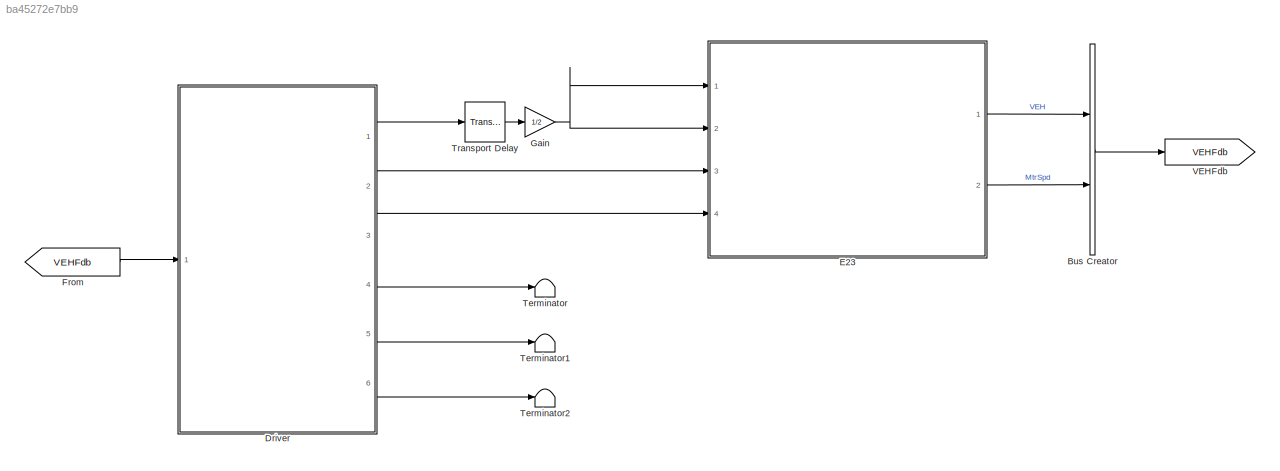
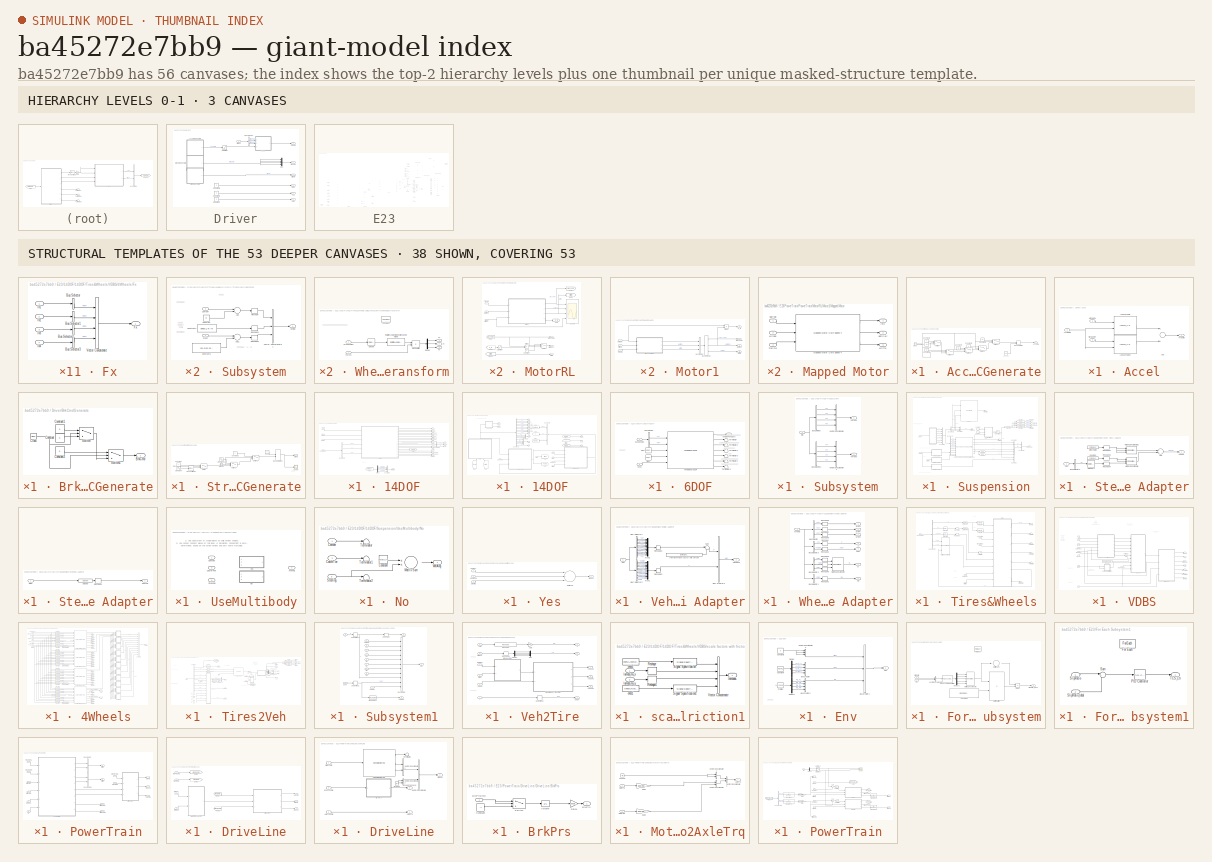
[diagram: thumbnail index - top-2 hierarchy levels (3 canvases) + 38 structural-template representatives of the remaining 53 canvases]
MODEL slx_ba45272e7bb9
KIND model
CONFIG AbsTol = auto
CONFIG EnableMultiTasking = on
CONFIG FixedStep = 0.01
CONFIG MaxStep = auto
CONFIG MinStep = auto
CONFIG PreLoadFcn = PowerTrain_14DOF_ini\n
CONFIG RelTol = 1e-3
CONFIG SampleTimeConstraint = Unconstrained
CONFIG Solver = ode113
CONFIG SolverName = ode113
CONFIG StartTime = 0.0
CONFIG StopFcn = AfterSim
CONFIG StopTime = 10
BLOCK [BusCreator] Bus Creator
  DisplayOption = bar
  InheritFromInputs = on
  Inputs = 2
  Ports = [2, 1]
BLOCK [SubSystem] Driver
  Ports = [1, 6]
  RequestExecContextInheritance = off
BLOCK [Outport] Driver/ABS
  IconDisplay = Port number
  Port = 6
BLOCK [SubSystem] Driver/AccCmdGenerate
  Ports = [0, 1]
  RequestExecContextInheritance = off
BLOCK [Outport] Driver/AccCmdGenerate/AccCmd
  IconDisplay = Port number
BLOCK [Clock] Driver/AccCmdGenerate/Clock
BLOCK [Constant] Driver/AccCmdGenerate/Constant
  Value = 0.2
BLOCK [Constant] Driver/AccCmdGenerate/Constant1
  Value = 0
BLOCK [Constant] Driver/AccCmdGenerate/Constant2
  Value = 0.1
BLOCK [Constant] Driver/AccCmdGenerate/Constant3
  Value = 0.3
BLOCK [Constant] Driver/AccCmdGenerate/Constant4
  Value = 0
BLOCK [Constant] Driver/AccCmdGenerate/Constant5
  Value = 0.1
BLOCK [ManualSwitch] Driver/AccCmdGenerate/Manual Switch
  CurrentSetting = 0
BLOCK [Switch] Driver/AccCmdGenerate/Switch
  Criteria = u2 > Threshold
  InputSameDT = off
  SaturateOnIntegerOverflow = off
  Threshold = 4
BLOCK [Switch] Driver/AccCmdGenerate/Switch1
  Criteria = u2 > Threshold
  InputSameDT = off
  SaturateOnIntegerOverflow = off
  Threshold = 13
BLOCK [Switch] Driver/AccCmdGenerate/Switch2
  Criteria = u2 > Threshold
  InputSameDT = off
  SaturateOnIntegerOverflow = off
  Threshold = 15
BLOCK [Switch] Driver/AccCmdGenerate/Switch3
  Criteria = u2 > Threshold
  InputSameDT = off
  SaturateOnIntegerOverflow = off
  Threshold = 30
BLOCK [Switch] Driver/AccCmdGenerate/Switch4
  Criteria = u2 > Threshold
  InputSameDT = off
  SaturateOnIntegerOverflow = off
  Threshold = 58
BLOCK [Constant] Driver/AccCmdGenerate/直行工况油门
  Value = 0.3
BLOCK [SubSystem] Driver/Accel
  Ports = [3, 1]
  RequestExecContextInheritance = off
BLOCK [Inport] Driver/Accel/AccelCmd
  IconDisplay = Port number
  Port = 3
BLOCK [Sum] Driver/Accel/Add
  InputSameDT = off
  OutDataTypeStr = Inherit: Inherit via internal rule
  Ports = [2, 1]
  SaturateOnIntegerOverflow = off
BLOCK [Lookup_n-D] Driver/Accel/LookupTable
  BreakpointsForDimension1 = AccelCmd2TrqCmd.Motor_n
  BreakpointsForDimension2 = fliplr(AccelCmd2TrqCmd.AccelCmd)
  InternalRulePriority = Speed
  Ports = [2, 1]
  RndMeth = Simplest
  Table = fliplr(AccelCmd2TrqCmd.TrqCmd)
BLOCK [Lookup_n-D] Driver/Accel/LookupTable1
  BreakpointsForDimension1 = AccelCmd2TrqCmd.Motor_n
  BreakpointsForDimension2 = fliplr(AccelCmd2TrqCmd.AccelCmd)
  InternalRulePriority = Speed
  Ports = [2, 1]
  RndMeth = Simplest
  Table = fliplr(AccelCmd2TrqCmd.TrqCmd)
BLOCK [Inport] Driver/Accel/MtrSpdRL
  IconDisplay = Port number
BLOCK [Inport] Driver/Accel/MtrSpdRR
  IconDisplay = Port number
  Port = 2
BLOCK [Outport] Driver/Accel/TrqCmd
  IconDisplay = Port number
BLOCK [Outport] Driver/BrkCmd
  IconDisplay = Port number
  Port = 2
BLOCK [SubSystem] Driver/BrkCmdGenerate
  Ports = [0, 1]
  RequestExecContextInheritance = off
BLOCK [Outport] Driver/BrkCmdGenerate/BrkCmd
  IconDisplay = Port number
BLOCK [Clock] Driver/BrkCmdGenerate/Clock
BLOCK [Constant] Driver/BrkCmdGenerate/Constant
  Value = 0
BLOCK [Constant] Driver/BrkCmdGenerate/Constant1
  Value = 0
BLOCK [Constant] Driver/BrkCmdGenerate/Constant2
  Value = 0
BLOCK [Switch] Driver/BrkCmdGenerate/Switch
  Criteria = u2 > Threshold
  InputSameDT = off
  SaturateOnIntegerOverflow = off
  Threshold = 5
BLOCK [Switch] Driver/BrkCmdGenerate/Switch1
  Criteria = u2 > Threshold
  InputSameDT = off
  SaturateOnIntegerOverflow = off
  Threshold = 5.5
BLOCK [BusSelector] Driver/Bus Selector
  OutputAsBus = off
  OutputSignals = MtrSpd.MtrSpdRL,MtrSpd.MtrSpdRR
  Ports = [1, 2]
BLOCK [Constant] Driver/Constant5
  Value = 0
BLOCK [Constant] Driver/Constant6
  Value = 0
BLOCK [Constant] Driver/Constant7
  Value = 0
BLOCK [Outport] Driver/EDS
  IconDisplay = Port number
  Port = 4
BLOCK [Inport] Driver/MtrSpd
  IconDisplay = Port number
BLOCK [Mux] Driver/Mux
  DisplayOption = bar
  Ports = [4, 1]
BLOCK [Saturate] Driver/Saturation
  InputPortMap = u0
  LowerLimit = 0
  Ports = [1, 1]
  UpperLimit = 1
BLOCK [Outport] Driver/StrCmd
  IconDisplay = Port number
  Port = 3
BLOCK [SubSystem] Driver/StrCmdGenerate
  Ports = [0, 1]
  RequestExecContextInheritance = off
BLOCK [Clock] Driver/StrCmdGenerate/Clock
BLOCK [Clock] Driver/StrCmdGenerate/Clock1
BLOCK [Constant] Driver/StrCmdGenerate/Constant
  Value = 0
BLOCK [Constant] Driver/StrCmdGenerate/Constant1
  Value = 0
BLOCK [ManualSwitch] Driver/StrCmdGenerate/Manual Switch1
BLOCK [Scope] Driver/StrCmdGenerate/Scope
  Floating = off
  NumInputPorts = 1
  Ports = [1]
  ScopeSpecificationString = Simulink.scopes.TimeScopeBlockCfg('CurrentConfiguration', extmgr.ConfigurationSet(extmgr.Configuration('Core','General UI',true),extmgr.Configuration('Core','Source UI',true),extmgr.Configuration('Sources','WiredSimulink',true,'DataLoggingVariableName','ScopeData1'),extmgr.Configuration('Visuals','Time Domain',true,'SerializedDisplays',{struct('MinYLimReal','-0.71014','MaxYLimReal','0.41222','YLab...<+1391ch>
BLOCK [Sin] Driver/StrCmdGenerate/Sine Wave
  Amplitude = -0.6
  Frequency = 3.1415926/6
  Ports = [0, 1]
  SampleTime = 0
BLOCK [Sin] Driver/StrCmdGenerate/Sine Wave1
  Amplitude = 0.3
  Frequency = pi/10
  Ports = [0, 1]
  SampleTime = 0
BLOCK [Outport] Driver/StrCmdGenerate/StrCmd
  IconDisplay = Port number
BLOCK [Switch] Driver/StrCmdGenerate/Switch
  Criteria = u2 > Threshold
  InputSameDT = off
  SaturateOnIntegerOverflow = off
  Threshold = 12
BLOCK [Switch] Driver/StrCmdGenerate/Switch1
  Criteria = u2 > Threshold
  InputSameDT = off
  SaturateOnIntegerOverflow = off
  Threshold = 30
BLOCK [Switch] Driver/StrCmdGenerate/Switch2
  Criteria = u2 > Threshold
  InputSameDT = off
  SaturateOnIntegerOverflow = off
  Threshold = 50
BLOCK [TransportDelay] Driver/StrCmdGenerate/Transport Delay
  DelayTime = 6
  Ports = [1, 1]
BLOCK [Constant] Driver/StrCmdGenerate/直行工况
  Value = 0
BLOCK [Outport] Driver/TCS
  IconDisplay = Port number
  Port = 5
BLOCK [Outport] Driver/TrqCmd
  IconDisplay = Port number
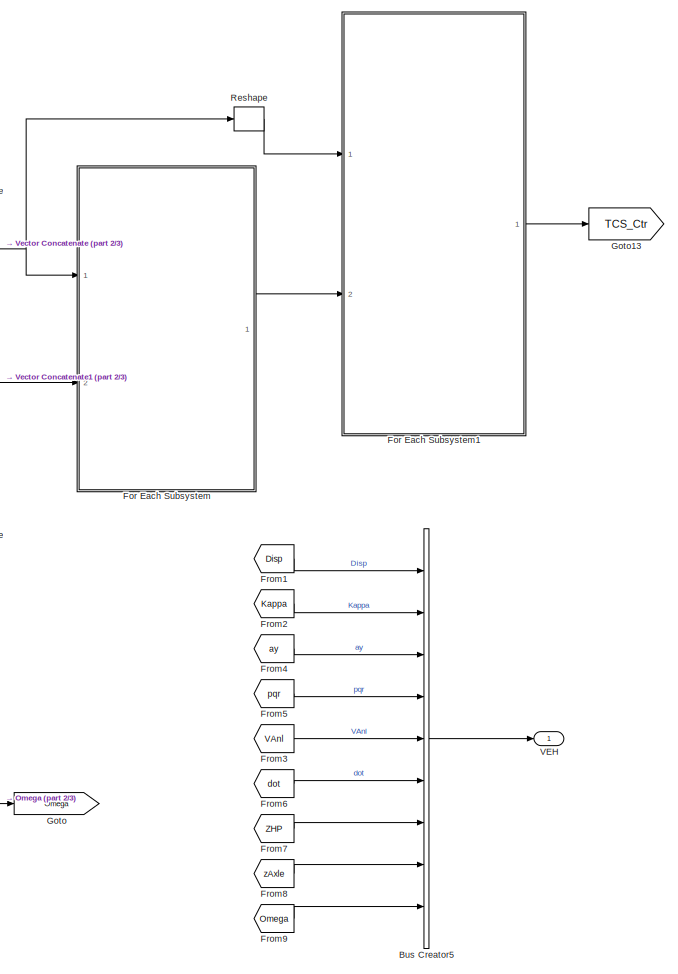
[diagram: E23 - part 1/3, right side, full height]
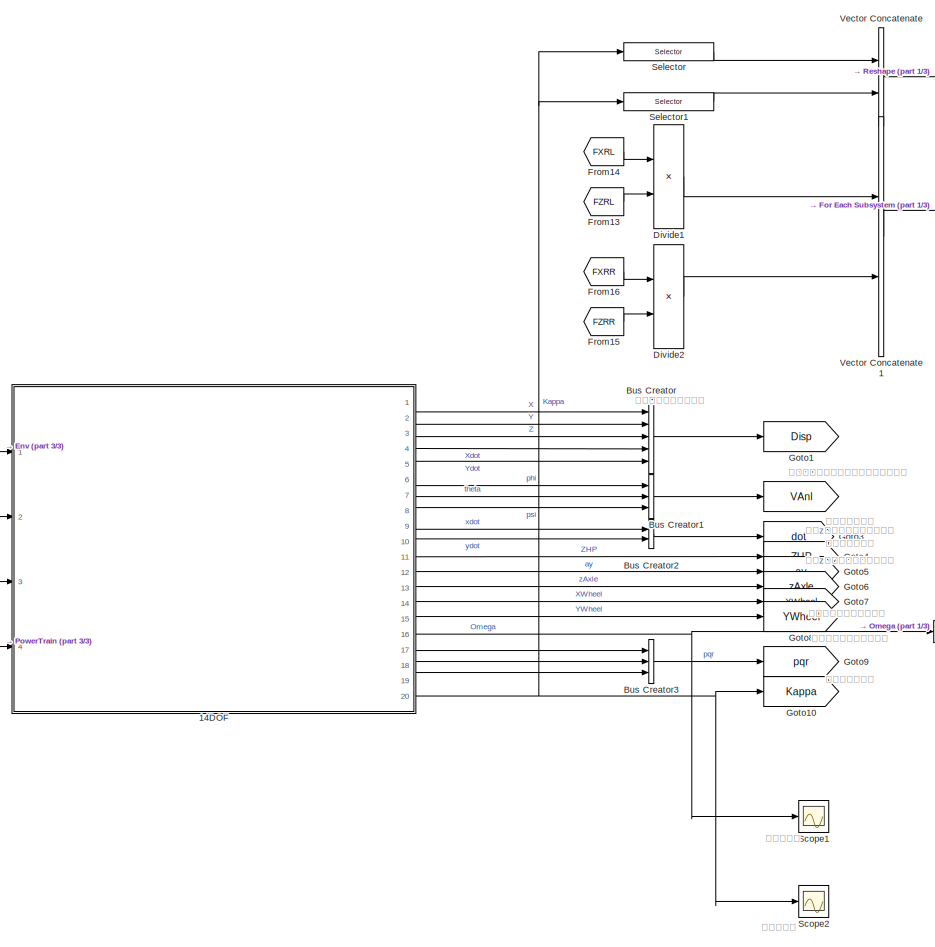
[diagram: E23 - part 2/3, center side, full height]
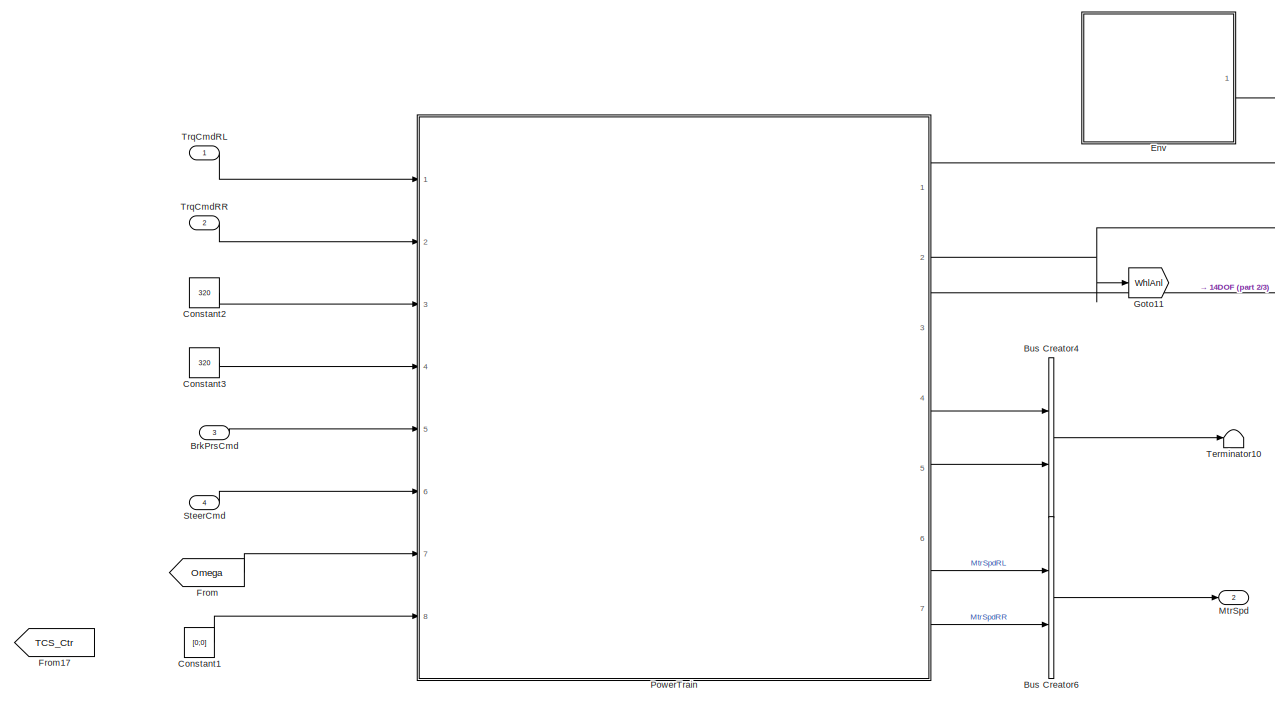
[diagram: E23 - part 3/3, bottom left region]
BLOCK [SubSystem] E23
  Ports = [4, 2]
  RequestExecContextInheritance = off
BLOCK [SubSystem] E23/14DOF
  Ports = [4, 20]
  RequestExecContextInheritance = off
BLOCK [SubSystem] E23/14DOF/14DOF
  Ports = [6, 18]
  RequestExecContextInheritance = off
BLOCK [SubSystem] E23/14DOF/14DOF/6DOF
  Ports = [2, 1]
  RequestExecContextInheritance = off
BLOCK [BusSelector] E23/14DOF/14DOF/6DOF/Bus Selector
  OutputAsBus = off
  OutputSignals = Veh.F,Veh.M
  Ports = [1, 2]
BLOCK [Constant] E23/14DOF/14DOF/6DOF/FExt
  Value = [0;0;0]
BLOCK [Constant] E23/14DOF/14DOF/6DOF/MExt
  Value = [0;0;0]
BLOCK [Inport] E23/14DOF/14DOF/6DOF/Suspension
  IconDisplay = Port number
BLOCK [Terminator] E23/14DOF/14DOF/6DOF/Terminator
BLOCK [Terminator] E23/14DOF/14DOF/6DOF/Terminator1
BLOCK [Terminator] E23/14DOF/14DOF/6DOF/Terminator2
BLOCK [Terminator] E23/14DOF/14DOF/6DOF/Terminator3
BLOCK [Terminator] E23/14DOF/14DOF/6DOF/Terminator4
BLOCK [Terminator] E23/14DOF/14DOF/6DOF/Terminator5
BLOCK [Reference] E23/14DOF/14DOF/6DOF/Vehicle Body 6DOF  REF=vehdynlibeom/Vehicle Body 6DOF
  Ports = [5, 7]
  SourceBlock = vehdynlibeom/Vehicle Body 6DOF
  SourceProductBaseCode = VE
  SourceProductName = Vehicle Dynamics Blockset
  SourceType = Vehicle Body 6DOF 2 Axle
BLOCK [Outport] E23/14DOF/14DOF/6DOF/VehicleFeedBack
  IconDisplay = Port number
BLOCK [Inport] E23/14DOF/14DOF/6DOF/Wind
  IconDisplay = Port number
  Port = 2
BLOCK [Inport] E23/14DOF/14DOF/AxleTrq
  IconDisplay = Port number
BLOCK [Inport] E23/14DOF/14DOF/BrkPrs
  IconDisplay = Port number
  Port = 2
BLOCK [BusCreator] E23/14DOF/14DOF/Bus Creator
  DisplayOption = bar
  InheritFromInputs = on
  Inputs = 4
  Ports = [4, 1]
BLOCK [BusCreator] E23/14DOF/14DOF/Bus Creator1
  DisplayOption = bar
  InheritFromInputs = on
  Inputs = 3
  Ports = [3, 1]
BLOCK [BusSelector] E23/14DOF/14DOF/Bus Selector
  OutputAsBus = off
  OutputSignals = InertFrm.Cg.Disp.X,InertFrm.Cg.Disp.Y,InertFrm.Cg.Disp.Z,InertFrm.Cg.Vel.Xdot,InertFrm.Cg.Vel.Ydot,InertFrm.Cg.Ang.phi,InertFrm.Cg.Ang.theta,InertFrm.Cg.Ang.psi,BdyFrm.Cg.Vel.xdot,BdyFrm.Cg.Vel.ydot,BdyFrm.Cg.AngVel.p,BdyFrm.Cg.AngVel.q,BdyFrm.Cg.AngVel.r,InertFrm.FrntAxl.Lft.Disp.Z,InertFrm.FrntAxl.Rght.Disp.Z,InertFrm.RearAxl.Lft.Disp.Z,InertFrm.RearAxl.Rght.Disp.Z,BdyFrm.Cg.Acc.ay
  Ports = [1, 18]
BLOCK [BusSelector] E23/14DOF/14DOF/Bus Selector1
  OutputAsBus = off
  OutputSignals = TireFrame.omega,TireFrame.z,TireFrame.Kappa
  Ports = [1, 3]
BLOCK [Inport] E23/14DOF/14DOF/Friction
  IconDisplay = Port number
  Port = 6
BLOCK [From] E23/14DOF/14DOF/From
  GotoTag = Wind
BLOCK [From] E23/14DOF/14DOF/From1
  GotoTag = omega
BLOCK [From] E23/14DOF/14DOF/From2
  GotoTag = z
BLOCK [From] E23/14DOF/14DOF/From3
  GotoTag = Kappa
BLOCK [From] E23/14DOF/14DOF/From4
  GotoTag = ToVeh
BLOCK [Goto] E23/14DOF/14DOF/Goto
  GotoTag = Wind
BLOCK [Goto] E23/14DOF/14DOF/Goto1
  GotoTag = omega
BLOCK [Goto] E23/14DOF/14DOF/Goto2
  GotoTag = z
BLOCK [Goto] E23/14DOF/14DOF/Goto3
  GotoTag = Kappa
BLOCK [Goto] E23/14DOF/14DOF/Goto4
  GotoTag = ToVeh
BLOCK [Inport] E23/14DOF/14DOF/GroundXYZ
  IconDisplay = Port number
  Port = 5
BLOCK [SubSystem] E23/14DOF/14DOF/Subsystem
  Ports = [1, 2]
  RequestExecContextInheritance = off
BLOCK [BusSelector] E23/14DOF/14DOF/Subsystem/Bus Selector
  OutputAsBus = off
  OutputSignals = InertFrm.FrntAxl.Lft.Disp.X,InertFrm.FrntAxl.Rght.Disp.X,InertFrm.RearAxl.Lft.Disp.X,InertFrm.RearAxl.Rght.Disp.X
  Ports = [1, 4]
BLOCK [BusSelector] E23/14DOF/14DOF/Subsystem/Bus Selector1
  OutputAsBus = off
  OutputSignals = InertFrm.FrntAxl.Lft.Disp.Y,InertFrm.FrntAxl.Rght.Disp.Y,InertFrm.RearAxl.Lft.Disp.Y,InertFrm.RearAxl.Rght.Disp.Y
  Ports = [1, 4]
BLOCK [Inport] E23/14DOF/14DOF/Subsystem/Info
  IconDisplay = Port number
BLOCK [Concatenate] E23/14DOF/14DOF/Subsystem/Vector Concatenate
  NumInputs = 4
  Ports = [4, 1]
BLOCK [Concatenate] E23/14DOF/14DOF/Subsystem/Vector Concatenate1
  NumInputs = 4
  Ports = [4, 1]
BLOCK [Outport] E23/14DOF/14DOF/Subsystem/XWheel
  IconDisplay = Port number
BLOCK [Outport] E23/14DOF/14DOF/Subsystem/YWheel
  IconDisplay = Port number
  Port = 2
BLOCK [SubSystem] E23/14DOF/14DOF/Suspension
  Ports = [3, 1]
  RequestExecContextInheritance = off
BLOCK [BusCreator] E23/14DOF/14DOF/Suspension/Bus Creator
  DisplayOption = bar
  InheritFromInputs = on
  Inputs = 3
  Ports = [3, 1]
BLOCK [BusCreator] E23/14DOF/14DOF/Suspension/Bus Creator1
  DisplayOption = bar
  InheritFromInputs = on
  Inputs = 5
  Ports = [5, 1]
BLOCK [BusCreator] E23/14DOF/14DOF/Suspension/Bus Creator2
  DisplayOption = bar
  InheritFromInputs = on
  Inputs = 2
  Ports = [2, 1]
BLOCK [BusCreator] E23/14DOF/14DOF/Suspension/Bus Creator3
  DisplayOption = bar
  InheritFromInputs = on
  Inputs = 2
  Ports = [2, 1]
BLOCK [BusCreator] E23/14DOF/14DOF/Suspension/Bus Creator4
  DisplayOption = bar
  InheritFromInputs = on
  Inputs = 7
  Ports = [7, 1]
BLOCK [BusSelector] E23/14DOF/14DOF/Suspension/Bus Selector
  OutputAsBus = off
  OutputSignals = z,Re,zdot,Fx,Fy,M
  Ports = [1, 6]
BLOCK [BusSelector] E23/14DOF/14DOF/Suspension/Bus Selector1
  OutputAsBus = off
  OutputSignals = P,V
  Ports = [1, 2]
BLOCK [BusSelector] E23/14DOF/14DOF/Suspension/Bus Selector2
  OutputAsBus = off
  OutputSignals = Fx,Fy,Fz
  Ports = [1, 3]
BLOCK [Constant] E23/14DOF/14DOF/Suspension/Constant
  Value = [0 0 0 0;0.0349 3.1415926+0.0349 0 0;0 0 0 0]
BLOCK [Constant] E23/14DOF/14DOF/Suspension/Constant1
  Value = [0 0 0 0;0.0349 3.1415926+0.0349 0 0;0 0 0 0]
BLOCK [Concatenate] E23/14DOF/14DOF/Suspension/Forces
  Mode = Multidimensional array
  NumInputs = 3
  Ports = [3, 1]
BLOCK [Reference] E23/14DOF/14DOF/Suspension/IndependentSuspensionDoubleWishbone  REF=vehdynlibsuspension/Independent Suspension - Double Wishbone
  Ports = [9, 6]
  SourceBlock = vehdynlibsuspension/Independent Suspension - Double Wishbone
  SourceProductBaseCode = VE
  SourceProductName = Vehicle Dynamics Blockset
  SourceType = Vehicle suspension
BLOCK [Selector] E23/14DOF/14DOF/Suspension/Selector1
  IndexOptions = Index vector (dialog),Select all
  Indices = 1,1
  NumberOfDimensions = 2
  OutputSizes = 1,1
  Ports = [1, 1]
BLOCK [Selector] E23/14DOF/14DOF/Suspension/Selector2
  IndexOptions = Index vector (dialog),Select all
  Indices = 2,1
  NumberOfDimensions = 2
  OutputSizes = 1,1
  Ports = [1, 1]
BLOCK [Selector] E23/14DOF/14DOF/Suspension/Selector47
  IndexOptions = Index vector (dialog),Select all
  Indices = 1,1
  InputPortWidth = 3
  NumberOfDimensions = 2
  OutputSizes = 1,1
  Ports = [1, 1]
BLOCK [Selector] E23/14DOF/14DOF/Suspension/Selector57
  IndexOptions = Index vector (dialog)
  Indices = 1
  InputPortWidth = 4
  OutputSizes = 1
  Ports = [1, 1]
BLOCK [Selector] E23/14DOF/14DOF/Suspension/Selector58
  IndexOptions = Index vector (dialog)
  Indices = 2
  InputPortWidth = 4
  OutputSizes = 1
  Ports = [1, 1]
BLOCK [Selector] E23/14DOF/14DOF/Suspension/Selector59
  IndexOptions = Index vector (dialog)
  Indices = 3
  InputPortWidth = 4
  OutputSizes = 1
  Ports = [1, 1]
BLOCK [Selector] E23/14DOF/14DOF/Suspension/Selector60
  IndexOptions = Index vector (dialog)
  Indices = 4
  InputPortWidth = 4
  OutputSizes = 1
  Ports = [1, 1]
BLOCK [SubSystem] E23/14DOF/14DOF/Suspension/Steer Rate Adapter
  Ports = [1, 1]
  RequestExecContextInheritance = off
BLOCK [Sum] E23/14DOF/14DOF/Suspension/Steer Rate Adapter/Add
  InputSameDT = off
  OutDataTypeStr = Inherit: Inherit via internal rule
  Ports = [2, 1]
  SaturateOnIntegerOverflow = off
BLOCK [Outport] E23/14DOF/14DOF/Suspension/Steer Rate Adapter/AngVel
  IconDisplay = Port number
BLOCK [BusSelector] E23/14DOF/14DOF/Suspension/Steer Rate Adapter/Bus Selector3
  OutputAsBus = off
  OutputSignals = BdyFrm.Cg.AngVel.r
  Ports = [1, 1]
BLOCK [Constant] E23/14DOF/14DOF/Suspension/Steer Rate Adapter/Constant
  Value = zeros(1,4)
BLOCK [Concatenate] E23/14DOF/14DOF/Suspension/Steer Rate Adapter/Matrix Concatenate
  Mode = Multidimensional array
  NumInputs = 3
  Ports = [3, 1]
BLOCK [Concatenate] E23/14DOF/14DOF/Suspension/Steer Rate Adapter/Matrix Concatenate1
  Mode = Multidimensional array
  NumInputs = 3
  Ports = [3, 1]
BLOCK [Reshape] E23/14DOF/14DOF/Suspension/Steer Rate Adapter/Reshape2
  OutputDimensionality = Row vector (2-D)
  Ports = [1, 1]
BLOCK [Reshape] E23/14DOF/14DOF/Suspension/Steer Rate Adapter/Reshape3
  OutputDimensionality = Row vector (2-D)
  Ports = [1, 1]
BLOCK [Reshape] E23/14DOF/14DOF/Suspension/Steer Rate Adapter/Reshape4
  OutputDimensionality = Row vector (2-D)
  Ports = [1, 1]
BLOCK [Selector] E23/14DOF/14DOF/Suspension/Steer Rate Adapter/Selector3
  IndexOptions = Index vector (dialog)
  Indices = [1 1 1 1]
  InputPortWidth = 1
  OutputSizes = 1
  Ports = [1, 1]
BLOCK [Constant] E23/14DOF/14DOF/Suspension/Steer Rate Adapter/SteerRates
  Value = zeros(1,4)
BLOCK [Inport] E23/14DOF/14DOF/Suspension/Steer Rate Adapter/Veh
  IconDisplay = Port number
BLOCK [Inport] E23/14DOF/14DOF/Suspension/Steering
  IconDisplay = Port number
  Port = 2
BLOCK [SubSystem] E23/14DOF/14DOF/Suspension/Steering Adapter
  Ports = [1, 1]
  RequestExecContextInheritance = off
BLOCK [Reshape] E23/14DOF/14DOF/Suspension/Steering Adapter/Reshape1
  OutputDimensionality = Row vector (2-D)
  Ports = [1, 1]
BLOCK [Selector] E23/14DOF/14DOF/Suspension/Steering Adapter/Selector
  IndexOptions = Index vector (dialog)
  Indices = [1 2]
  OutputSizes = 1
  Ports = [1, 1]
BLOCK [Inport] E23/14DOF/14DOF/Suspension/Steering Adapter/Steer
  IconDisplay = Port number
BLOCK [Outport] E23/14DOF/14DOF/Suspension/Steering Adapter/StrgAng
  IconDisplay = Port number
BLOCK [Outport] E23/14DOF/14DOF/Suspension/Suspension
  IconDisplay = Port number
BLOCK [Terminator] E23/14DOF/14DOF/Suspension/Terminator
BLOCK [Terminator] E23/14DOF/14DOF/Suspension/Terminator1
BLOCK [Terminator] E23/14DOF/14DOF/Suspension/Terminator2
BLOCK [Terminator] E23/14DOF/14DOF/Suspension/Terminator3
BLOCK [Terminator] E23/14DOF/14DOF/Suspension/Terminator4
BLOCK [Terminator] E23/14DOF/14DOF/Suspension/Terminator5
BLOCK [Terminator] E23/14DOF/14DOF/Suspension/Terminator6
BLOCK [TransportDelay] E23/14DOF/14DOF/Suspension/Transport Delay
  DelayTime = 0.1
  Ports = [1, 1]
BLOCK [SubSystem] E23/14DOF/14DOF/Suspension/UseMultibody
  LabelModeActiveChoice = Variant1
  Ports = [3, 1]
  RequestExecContextInheritance = off
  Variant = on
  VariantControlMode = Label
BLOCK [Inport] E23/14DOF/14DOF/Suspension/UseMultibody/Camber
  IconDisplay = Port number
BLOCK [Inport] E23/14DOF/14DOF/Suspension/UseMultibody/CasterToe
  IconDisplay = Port number
  Port = 2
BLOCK [SubSystem] E23/14DOF/14DOF/Suspension/UseMultibody/No
  Ports = [3, 1]
  RequestExecContextInheritance = off
  VariantControl = Variant1
BLOCK [Inport] E23/14DOF/14DOF/Suspension/UseMultibody/No/Camber
  IconDisplay = Port number
BLOCK [Inport] E23/14DOF/14DOF/Suspension/UseMultibody/No/CasterToe
  IconDisplay = Port number
  Port = 2
BLOCK [Constant] E23/14DOF/14DOF/Suspension/UseMultibody/No/Constant
  Value = zeros(3,4)
BLOCK [Sum] E23/14DOF/14DOF/Suspension/UseMultibody/No/Matrix Sum
  InputSameDT = off
  OutDataTypeStr = Inherit: Inherit via internal rule
  Ports = [2, 1]
  SaturateOnIntegerOverflow = off
BLOCK [Inport] E23/14DOF/14DOF/Suspension/UseMultibody/No/Steering
  IconDisplay = Port number
  Port = 3
BLOCK [Terminator] E23/14DOF/14DOF/Suspension/UseMultibody/No/Terminator
BLOCK [Terminator] E23/14DOF/14DOF/Suspension/UseMultibody/No/Terminator1
BLOCK [Terminator] E23/14DOF/14DOF/Suspension/UseMultibody/No/Terminator2
BLOCK [Outport] E23/14DOF/14DOF/Suspension/UseMultibody/No/WhlAng
  IconDisplay = Port number
BLOCK [Inport] E23/14DOF/14DOF/Suspension/UseMultibody/Steering
  IconDisplay = Port number
  Port = 3
BLOCK [Outport] E23/14DOF/14DOF/Suspension/UseMultibody/WhlAng
  IconDisplay = Port number
BLOCK [SubSystem] E23/14DOF/14DOF/Suspension/UseMultibody/Yes
  Ports = [3, 1]
  RequestExecContextInheritance = off
  VariantControl = Variant
BLOCK [Inport] E23/14DOF/14DOF/Suspension/UseMultibody/Yes/Camber
  IconDisplay = Port number
BLOCK [Inport] E23/14DOF/14DOF/Suspension/UseMultibody/Yes/CasterToe
  IconDisplay = Port number
  Port = 2
BLOCK [Sum] E23/14DOF/14DOF/Suspension/UseMultibody/Yes/Matrix Sum
  InputSameDT = off
  Inputs = +++
  OutDataTypeStr = Inherit: Inherit via internal rule
  Ports = [3, 1]
  SaturateOnIntegerOverflow = off
BLOCK [Inport] E23/14DOF/14DOF/Suspension/UseMultibody/Yes/Steering
  IconDisplay = Port number
  Port = 3
BLOCK [Outport] E23/14DOF/14DOF/Suspension/UseMultibody/Yes/WhlAng
  IconDisplay = Port number
BLOCK [Inport] E23/14DOF/14DOF/Suspension/Vehicle
  IconDisplay = Port number
BLOCK [SubSystem] E23/14DOF/14DOF/Suspension/Vehicle Adapter
  Ports = [1, 1]
  RequestExecContextInheritance = off
BLOCK [BusCreator] E23/14DOF/14DOF/Suspension/Vehicle Adapter/Bus Creator3
  DisplayOption = bar
  InheritFromInputs = on
  Inputs = 2
  Ports = [2, 1]
BLOCK [BusSelector] E23/14DOF/14DOF/Suspension/Vehicle Adapter/Bus Selector1
  OutputAsBus = off
  OutputSignals = InertFrm.FrntAxl.Lft.Disp.X,InertFrm.FrntAxl.Lft.Disp.Y,InertFrm.FrntAxl.Lft.Disp.Z,InertFrm.FrntAxl.Rght.Disp.X,InertFrm.FrntAxl.Rght.Disp.Y,InertFrm.FrntAxl.Rght.Disp.Z,InertFrm.RearAxl.Lft.Disp.X,InertFrm.RearAxl.Lft.Disp.Y,InertFrm.RearAxl.Lft.Disp.Z,InertFrm.RearAxl.Rght.Disp.X,InertFrm.RearAxl.Rght.Disp.Y,InertFrm.RearAxl.Rght.Disp.Z
  Ports = [1, 12]
BLOCK [BusSelector] E23/14DOF/14DOF/Suspension/Vehicle Adapter/Bus Selector2
  OutputAsBus = off
  OutputSignals = BdyFrm.FrntAxl.Lft.Vel.xdot,BdyFrm.FrntAxl.Lft.Vel.ydot,BdyFrm.FrntAxl.Lft.Vel.zdot,BdyFrm.FrntAxl.Rght.Vel.xdot,BdyFrm.FrntAxl.Rght.Vel.ydot,BdyFrm.FrntAxl.Rght.Vel.zdot,BdyFrm.RearAxl.Lft.Vel.xdot,BdyFrm.RearAxl.Lft.Vel.ydot,BdyFrm.RearAxl.Lft.Vel.zdot,BdyFrm.RearAxl.Rght.Vel.xdot,BdyFrm.RearAxl.Rght.Vel.ydot,BdyFrm.RearAxl.Rght.Vel.zdot
  Ports = [1, 12]
BLOCK [Constant] E23/14DOF/14DOF/Suspension/Vehicle Adapter/Inertial Frame CG to Axle Offset
  Value = [zeros(2,4);VEH.HeightCG*ones(1,4)]
BLOCK [Mux] E23/14DOF/14DOF/Suspension/Vehicle Adapter/Mux1
  DisplayOption = bar
  Inputs = 12
  Ports = [12, 1]
BLOCK [Mux] E23/14DOF/14DOF/Suspension/Vehicle Adapter/Mux2
  DisplayOption = bar
  Inputs = 12
  Ports = [12, 1]
BLOCK [Reshape] E23/14DOF/14DOF/Suspension/Vehicle Adapter/Reshape1
  OutputDimensionality = Customize
  OutputDimensions = [3,4]
  Ports = [1, 1]
BLOCK [Reshape] E23/14DOF/14DOF/Suspension/Vehicle Adapter/Reshape2
  OutputDimensionality = Customize
  OutputDimensions = [3,4]
  Ports = [1, 1]
BLOCK [Sum] E23/14DOF/14DOF/Suspension/Vehicle Adapter/Sum
  IconShape = round
  InputSameDT = off
  Inputs = |+-
  OutDataTypeStr = Inherit: Inherit via internal rule
  Ports = [2, 1]
  SaturateOnIntegerOverflow = off
BLOCK [Inport] E23/14DOF/14DOF/Suspension/Vehicle Adapter/Veh
  IconDisplay = Port number
BLOCK [Outport] E23/14DOF/14DOF/Suspension/Vehicle Adapter/VehSusp
  IconDisplay = Port number
BLOCK [Inport] E23/14DOF/14DOF/Suspension/Wheel
  IconDisplay = Port number
  Port = 3
BLOCK [SubSystem] E23/14DOF/14DOF/Suspension/Wheel  Adapter
  Ports = [1, 7]
  RequestExecContextInheritance = off
BLOCK [BusSelector] E23/14DOF/14DOF/Suspension/Wheel  Adapter/Bus Selector
  OutputAsBus = off
  OutputSignals = TireFrame.Fx,TireFrame.Fy,TireFrame.Fz
  Ports = [1, 3]
BLOCK [BusSelector] E23/14DOF/14DOF/Suspension/Wheel  Adapter/Bus Selector1
  OutputAsBus = off
  OutputSignals = TireFrame.Re
  Ports = [1, 1]
BLOCK [BusSelector] E23/14DOF/14DOF/Suspension/Wheel  Adapter/Bus Selector2
  OutputAsBus = off
  OutputSignals = TireFrame.Mx,TireFrame.My,TireFrame.Mz
  Ports = [1, 3]
BLOCK [BusSelector] E23/14DOF/14DOF/Suspension/Wheel  Adapter/Bus Selector3
  OutputAsBus = off
  OutputSignals = TireFrame.z,TireFrame.zdot
  Ports = [1, 2]
BLOCK [Outport] E23/14DOF/14DOF/Suspension/Wheel  Adapter/M
  IconDisplay = Port number
  Port = 5
BLOCK [Concatenate] E23/14DOF/14DOF/Suspension/Wheel  Adapter/Matrix Concatenate
  Mode = Multidimensional array
  NumInputs = 3
  Ports = [3, 1]
BLOCK [Outport] E23/14DOF/14DOF/Suspension/Wheel  Adapter/Re
  IconDisplay = Port number
  Port = 6
BLOCK [Reshape] E23/14DOF/14DOF/Suspension/Wheel  Adapter/Reshape
  OutputDimensionality = Row vector (2-D)
  Ports = [1, 1]
BLOCK [Reshape] E23/14DOF/14DOF/Suspension/Wheel  Adapter/Reshape1
  OutputDimensionality = Row vector (2-D)
  Ports = [1, 1]
BLOCK [Reshape] E23/14DOF/14DOF/Suspension/Wheel  Adapter/Reshape2
  OutputDimensionality = Row vector (2-D)
  Ports = [1, 1]
BLOCK [Reshape] E23/14DOF/14DOF/Suspension/Wheel  Adapter/Reshape3
  OutputDimensionality = Row vector (2-D)
  Ports = [1, 1]
BLOCK [Reshape] E23/14DOF/14DOF/Suspension/Wheel  Adapter/Reshape4
  OutputDimensionality = Row vector (2-D)
  Ports = [1, 1]
BLOCK [Reshape] E23/14DOF/14DOF/Suspension/Wheel  Adapter/Reshape5
  OutputDimensionality = Row vector (2-D)
  Ports = [1, 1]
BLOCK [Reshape] E23/14DOF/14DOF/Suspension/Wheel  Adapter/Reshape6
  OutputDimensionality = Row vector (2-D)
  Ports = [1, 1]
BLOCK [Reshape] E23/14DOF/14DOF/Suspension/Wheel  Adapter/Reshape7
  OutputDimensionality = Row vector (2-D)
  Ports = [1, 1]
BLOCK [Reshape] E23/14DOF/14DOF/Suspension/Wheel  Adapter/Reshape8
  OutputDimensionality = Row vector (2-D)
  Ports = [1, 1]
BLOCK [Inport] E23/14DOF/14DOF/Suspension/Wheel  Adapter/Wheels
  IconDisplay = Port number
BLOCK [Outport] E23/14DOF/14DOF/Suspension/Wheel  Adapter/WhlFx
  IconDisplay = Port number
BLOCK [Outport] E23/14DOF/14DOF/Suspension/Wheel  Adapter/WhlFy
  IconDisplay = Port number
  Port = 2
BLOCK [Outport] E23/14DOF/14DOF/Suspension/Wheel  Adapter/WhlFz
  IconDisplay = Port number
  Port = 7
BLOCK [Outport] E23/14DOF/14DOF/Suspension/Wheel  Adapter/z
  IconDisplay = Port number
  Port = 3
BLOCK [Outport] E23/14DOF/14DOF/Suspension/Wheel  Adapter/zdot
  IconDisplay = Port number
  Port = 4
BLOCK [SubSystem] E23/14DOF/14DOF/Tires&Wheels
  Ports = [5, 1]
  RequestExecContextInheritance = off
BLOCK [Inport] E23/14DOF/14DOF/Tires&Wheels/AxleTorque
  IconDisplay = Port number
  Port = 2
BLOCK [Inport] E23/14DOF/14DOF/Tires&Wheels/BrakerPress
  IconDisplay = Port number
  Port = 3
BLOCK [BusSelector] E23/14DOF/14DOF/Tires&Wheels/Bus Selector
  OutputAsBus = off
  OutputSignals = Whl.Ang,Whl.F,Whl.AngVel,Whl.xdot,Whl.ydot
  Ports = [1, 5]
BLOCK [Reference] E23/14DOF/14DOF/Tires&Wheels/Cont LPF1  REF=autolibutils/Cont LPF
  Ports = [1, 1]
  SourceBlock = autolibutils/Cont LPF
  SourceProductBaseCode = PW
  SourceProductName = Powertrain Blockset
BLOCK [Reference] E23/14DOF/14DOF/Tires&Wheels/Cont LPF2  REF=autolibutils/Cont LPF
  Ports = [1, 1]
  SourceBlock = autolibutils/Cont LPF
  SourceProductBaseCode = PW
  SourceProductName = Powertrain Blockset
BLOCK [Inport] E23/14DOF/14DOF/Tires&Wheels/Friction
  IconDisplay = Port number
  Port = 5
BLOCK [Inport] E23/14DOF/14DOF/Tires&Wheels/GndInput
  IconDisplay = Port number
  Port = 4
BLOCK [Concatenate] E23/14DOF/14DOF/Tires&Wheels/Matrix Concatenate
  Mode = Multidimensional array
  NumInputs = 3
  Ports = [3, 1]
BLOCK [Reshape] E23/14DOF/14DOF/Tires&Wheels/Reshape
  Ports = [1, 1]
BLOCK [Reshape] E23/14DOF/14DOF/Tires&Wheels/Reshape1
  Ports = [1, 1]
BLOCK [Saturate] E23/14DOF/14DOF/Tires&Wheels/Saturation
  InputPortMap = u0
  LowerLimit = -10*9.81*2000
  Ports = [1, 1]
  UpperLimit = Inf
BLOCK [Selector] E23/14DOF/14DOF/Tires&Wheels/Selector
  IndexOptions = Index vector (dialog),Select all
  Indices = 3,1
  InputPortWidth = 3
  NumberOfDimensions = 2
  OutputSizes = 1,1
  Ports = [1, 1]
BLOCK [Selector] E23/14DOF/14DOF/Tires&Wheels/Selector1
  IndexOptions = Index vector (dialog),Select all
  Indices = 1,1
  InputPortWidth = 3
  NumberOfDimensions = 2
  OutputSizes = 1,1
  Ports = [1, 1]
BLOCK [Selector] E23/14DOF/14DOF/Tires&Wheels/Selector2
  IndexOptions = Index vector (dialog),Select all
  Indices = [3],1
  InputPortWidth = 3
  NumberOfDimensions = 2
  OutputSizes = 1,1
  Ports = [1, 1]
BLOCK [Selector] E23/14DOF/14DOF/Tires&Wheels/Selector3
  IndexOptions = Index vector (dialog),Select all
  Indices = [3],1
  InputPortWidth = 3
  NumberOfDimensions = 2
  OutputSizes = 1,1
  Ports = [1, 1]
BLOCK [Inport] E23/14DOF/14DOF/Tires&Wheels/Suspension
  IconDisplay = Port number
BLOCK [Terminator] E23/14DOF/14DOF/Tires&Wheels/Terminator
BLOCK [Terminator] E23/14DOF/14DOF/Tires&Wheels/Terminator1
BLOCK [Terminator] E23/14DOF/14DOF/Tires&Wheels/Terminator2
BLOCK [Terminator] E23/14DOF/14DOF/Tires&Wheels/Terminator3
BLOCK [Terminator] E23/14DOF/14DOF/Tires&Wheels/Terminator4
BLOCK [SubSystem] E23/14DOF/14DOF/Tires&Wheels/VDBS
  Ports = [9, 7]
  RequestExecContextInheritance = off
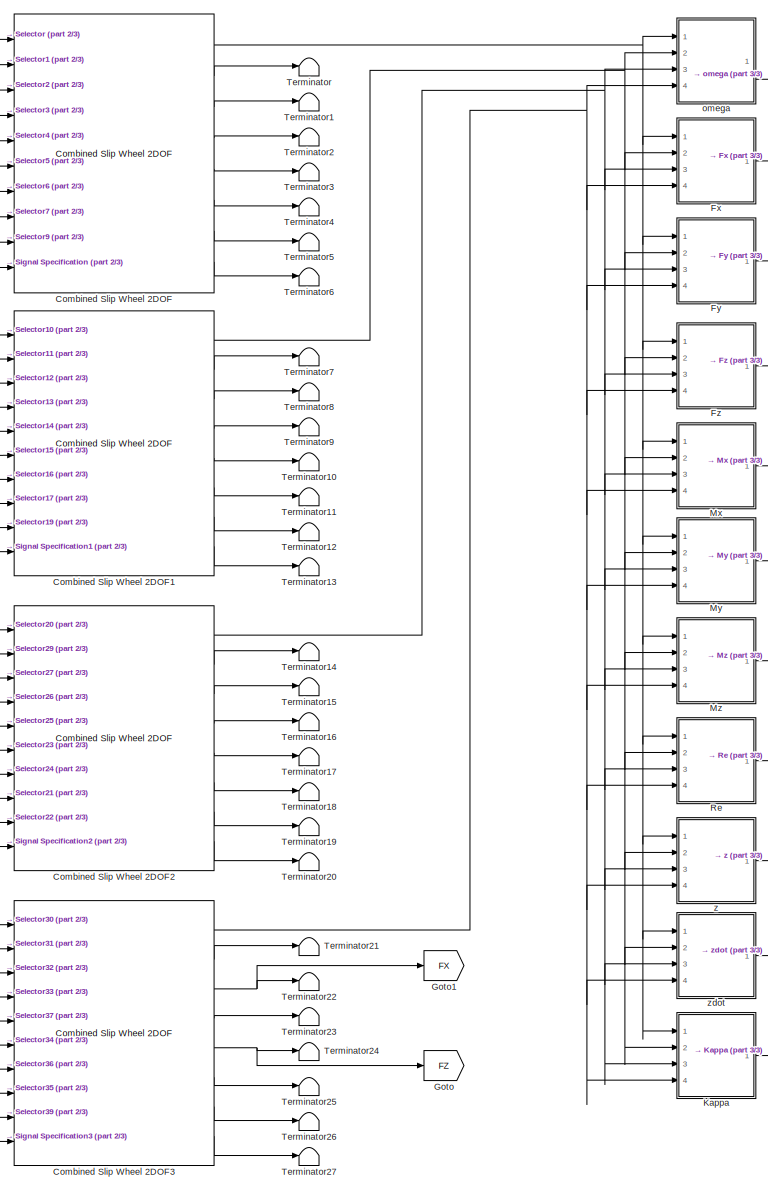
[diagram: E23/14DOF/14DOF/Tires&Wheels/VDBS/4Wheels - part 1/3, center side, full height]
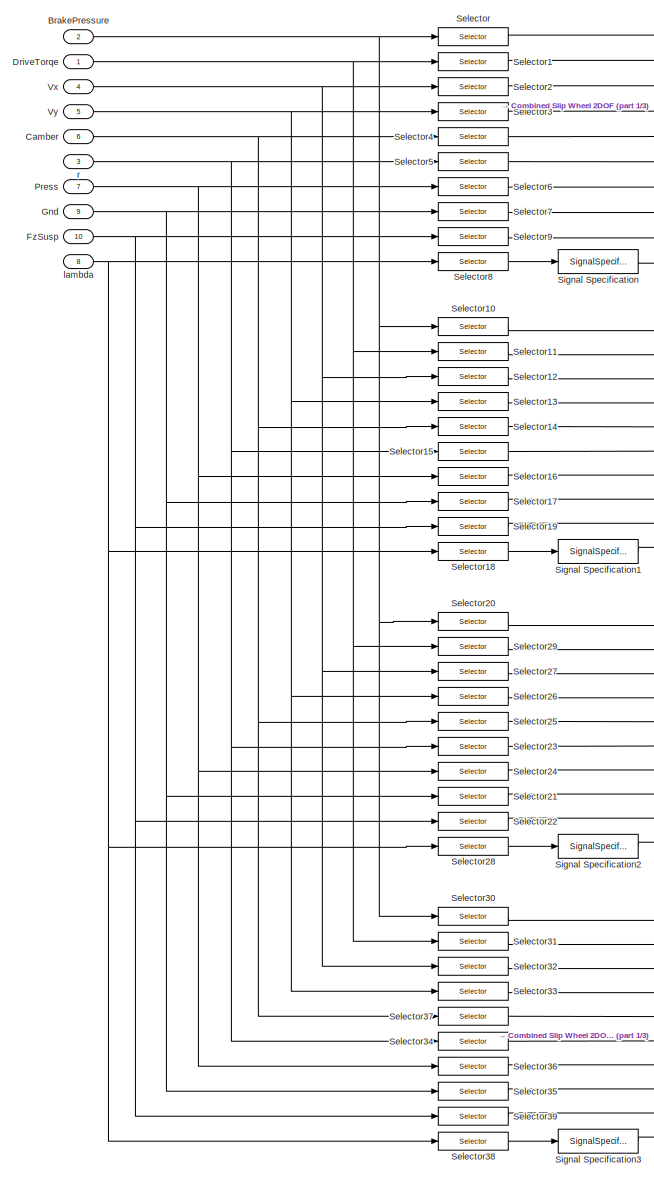
[diagram: E23/14DOF/14DOF/Tires&Wheels/VDBS/4Wheels - part 2/3, left side, full height]
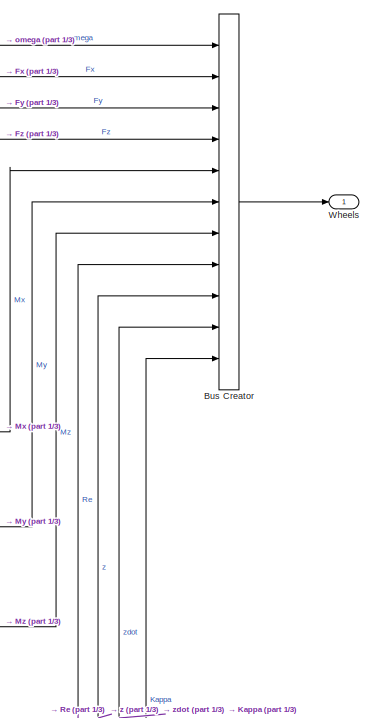
[diagram: E23/14DOF/14DOF/Tires&Wheels/VDBS/4Wheels - part 3/3, middle right region]
BLOCK [SubSystem] E23/14DOF/14DOF/Tires&Wheels/VDBS/4Wheels
  Ports = [10, 1]
  RequestExecContextInheritance = off
BLOCK [Inport] E23/14DOF/14DOF/Tires&Wheels/VDBS/4Wheels/BrakePressure
  IconDisplay = Port number
  Port = 2
BLOCK [BusCreator] E23/14DOF/14DOF/Tires&Wheels/VDBS/4Wheels/Bus Creator
  DisplayOption = bar
  InheritFromInputs = on
  Inputs = 11
  Ports = [11, 1]
BLOCK [Inport] E23/14DOF/14DOF/Tires&Wheels/VDBS/4Wheels/Camber
  IconDisplay = Port number
  Port = 6
BLOCK [Reference] E23/14DOF/14DOF/Tires&Wheels/VDBS/4Wheels/Combined Slip Wheel 2DOF  REF=vehdynlibtire/Combined Slip Wheel 2DOF
  Ports = [10, 8]
  SourceBlock = vehdynlibtire/Combined Slip Wheel 2DOF
  SourceProductBaseCode = VE
  SourceProductName = Vehicle Dynamics Blockset
  SourceType = Combined Slip Wheel 2DOF
BLOCK [Reference] E23/14DOF/14DOF/Tires&Wheels/VDBS/4Wheels/Combined Slip Wheel 2DOF1  REF=vehdynlibtire/Combined Slip Wheel 2DOF
  Ports = [10, 8]
  SourceBlock = vehdynlibtire/Combined Slip Wheel 2DOF
  SourceProductBaseCode = VE
  SourceProductName = Vehicle Dynamics Blockset
  SourceType = Combined Slip Wheel 2DOF
BLOCK [Reference] E23/14DOF/14DOF/Tires&Wheels/VDBS/4Wheels/Combined Slip Wheel 2DOF2  REF=vehdynlibtire/Combined Slip Wheel 2DOF
  Ports = [10, 8]
  SourceBlock = vehdynlibtire/Combined Slip Wheel 2DOF
  SourceProductBaseCode = VE
  SourceProductName = Vehicle Dynamics Blockset
  SourceType = Combined Slip Wheel 2DOF
BLOCK [Reference] E23/14DOF/14DOF/Tires&Wheels/VDBS/4Wheels/Combined Slip Wheel 2DOF3  REF=vehdynlibtire/Combined Slip Wheel 2DOF
  Ports = [10, 8]
  SourceBlock = vehdynlibtire/Combined Slip Wheel 2DOF
  SourceProductBaseCode = VE
  SourceProductName = Vehicle Dynamics Blockset
  SourceType = Combined Slip Wheel 2DOF
BLOCK [Inport] E23/14DOF/14DOF/Tires&Wheels/VDBS/4Wheels/DriveTorqe
  IconDisplay = Port number
BLOCK [SubSystem] E23/14DOF/14DOF/Tires&Wheels/VDBS/4Wheels/Fx
  Ports = [4, 1]
  RequestExecContextInheritance = off
BLOCK [BusSelector] E23/14DOF/14DOF/Tires&Wheels/VDBS/4Wheels/Fx/Bus Selector
  OutputAsBus = off
  OutputSignals = Fx
  Ports = [1, 1]
BLOCK [BusSelector] E23/14DOF/14DOF/Tires&Wheels/VDBS/4Wheels/Fx/Bus Selector1
  OutputAsBus = off
  OutputSignals = Fx
  Ports = [1, 1]
BLOCK [BusSelector] E23/14DOF/14DOF/Tires&Wheels/VDBS/4Wheels/Fx/Bus Selector2
  OutputAsBus = off
  OutputSignals = Fx
  Ports = [1, 1]
BLOCK [BusSelector] E23/14DOF/14DOF/Tires&Wheels/VDBS/4Wheels/Fx/Bus Selector3
  OutputAsBus = off
  OutputSignals = Fx
  Ports = [1, 1]
BLOCK [Outport] E23/14DOF/14DOF/Tires&Wheels/VDBS/4Wheels/Fx/Fx
  IconDisplay = Port number
BLOCK [Inport] E23/14DOF/14DOF/Tires&Wheels/VDBS/4Wheels/Fx/In1
  IconDisplay = Port number
BLOCK [Inport] E23/14DOF/14DOF/Tires&Wheels/VDBS/4Wheels/Fx/In2
  IconDisplay = Port number
  Port = 2
BLOCK [Inport] E23/14DOF/14DOF/Tires&Wheels/VDBS/4Wheels/Fx/In3
  IconDisplay = Port number
  Port = 3
BLOCK [Inport] E23/14DOF/14DOF/Tires&Wheels/VDBS/4Wheels/Fx/In4
  IconDisplay = Port number
  Port = 4
BLOCK [Concatenate] E23/14DOF/14DOF/Tires&Wheels/VDBS/4Wheels/Fx/Vector Concatenate
  NumInputs = 4
  Ports = [4, 1]
BLOCK [SubSystem] E23/14DOF/14DOF/Tires&Wheels/VDBS/4Wheels/Fy
  Ports = [4, 1]
  RequestExecContextInheritance = off
BLOCK [BusSelector] E23/14DOF/14DOF/Tires&Wheels/VDBS/4Wheels/Fy/Bus Selector
  OutputAsBus = off
  OutputSignals = Fy
  Ports = [1, 1]
BLOCK [BusSelector] E23/14DOF/14DOF/Tires&Wheels/VDBS/4Wheels/Fy/Bus Selector1
  OutputAsBus = off
  OutputSignals = Fy
  Ports = [1, 1]
BLOCK [BusSelector] E23/14DOF/14DOF/Tires&Wheels/VDBS/4Wheels/Fy/Bus Selector2
  OutputAsBus = off
  OutputSignals = Fy
  Ports = [1, 1]
BLOCK [BusSelector] E23/14DOF/14DOF/Tires&Wheels/VDBS/4Wheels/Fy/Bus Selector3
  OutputAsBus = off
  OutputSignals = Fy
  Ports = [1, 1]
BLOCK [Outport] E23/14DOF/14DOF/Tires&Wheels/VDBS/4Wheels/Fy/Fy
  IconDisplay = Port number
BLOCK [Inport] E23/14DOF/14DOF/Tires&Wheels/VDBS/4Wheels/Fy/In1
  IconDisplay = Port number
BLOCK [Inport] E23/14DOF/14DOF/Tires&Wheels/VDBS/4Wheels/Fy/In2
  IconDisplay = Port number
  Port = 2
BLOCK [Inport] E23/14DOF/14DOF/Tires&Wheels/VDBS/4Wheels/Fy/In3
  IconDisplay = Port number
  Port = 3
BLOCK [Inport] E23/14DOF/14DOF/Tires&Wheels/VDBS/4Wheels/Fy/In4
  IconDisplay = Port number
  Port = 4
BLOCK [Concatenate] E23/14DOF/14DOF/Tires&Wheels/VDBS/4Wheels/Fy/Vector Concatenate
  NumInputs = 4
  Ports = [4, 1]
BLOCK [SubSystem] E23/14DOF/14DOF/Tires&Wheels/VDBS/4Wheels/Fz
  Ports = [4, 1]
  RequestExecContextInheritance = off
BLOCK [BusSelector] E23/14DOF/14DOF/Tires&Wheels/VDBS/4Wheels/Fz/Bus Selector
  OutputAsBus = off
  OutputSignals = Fz
  Ports = [1, 1]
BLOCK [BusSelector] E23/14DOF/14DOF/Tires&Wheels/VDBS/4Wheels/Fz/Bus Selector1
  OutputAsBus = off
  OutputSignals = Fz
  Ports = [1, 1]
BLOCK [BusSelector] E23/14DOF/14DOF/Tires&Wheels/VDBS/4Wheels/Fz/Bus Selector2
  OutputAsBus = off
  OutputSignals = Fz
  Ports = [1, 1]
BLOCK [BusSelector] E23/14DOF/14DOF/Tires&Wheels/VDBS/4Wheels/Fz/Bus Selector3
  OutputAsBus = off
  OutputSignals = Fz
  Ports = [1, 1]
BLOCK [Outport] E23/14DOF/14DOF/Tires&Wheels/VDBS/4Wheels/Fz/Fz
  IconDisplay = Port number
BLOCK [Inport] E23/14DOF/14DOF/Tires&Wheels/VDBS/4Wheels/Fz/In1
  IconDisplay = Port number
BLOCK [Inport] E23/14DOF/14DOF/Tires&Wheels/VDBS/4Wheels/Fz/In2
  IconDisplay = Port number
  Port = 2
BLOCK [Inport] E23/14DOF/14DOF/Tires&Wheels/VDBS/4Wheels/Fz/In3
  IconDisplay = Port number
  Port = 3
BLOCK [Inport] E23/14DOF/14DOF/Tires&Wheels/VDBS/4Wheels/Fz/In4
  IconDisplay = Port number
  Port = 4
BLOCK [Concatenate] E23/14DOF/14DOF/Tires&Wheels/VDBS/4Wheels/Fz/Vector Concatenate
  NumInputs = 4
  Ports = [4, 1]
BLOCK [Inport] E23/14DOF/14DOF/Tires&Wheels/VDBS/4Wheels/FzSusp
  IconDisplay = Port number
  Port = 10
BLOCK [Inport] E23/14DOF/14DOF/Tires&Wheels/VDBS/4Wheels/Gnd
  IconDisplay = Port number
  Port = 9
BLOCK [Goto] E23/14DOF/14DOF/Tires&Wheels/VDBS/4Wheels/Goto
  GotoTag = FZ
  TagVisibility = global
BLOCK [Goto] E23/14DOF/14DOF/Tires&Wheels/VDBS/4Wheels/Goto1
  GotoTag = FX
  TagVisibility = global
BLOCK [SubSystem] E23/14DOF/14DOF/Tires&Wheels/VDBS/4Wheels/Kappa
  Ports = [4, 1]
  RequestExecContextInheritance = off
BLOCK [BusSelector] E23/14DOF/14DOF/Tires&Wheels/VDBS/4Wheels/Kappa/Bus Selector
  OutputAsBus = off
  OutputSignals = Kappa
  Ports = [1, 1]
BLOCK [BusSelector] E23/14DOF/14DOF/Tires&Wheels/VDBS/4Wheels/Kappa/Bus Selector1
  OutputAsBus = off
  OutputSignals = Kappa
  Ports = [1, 1]
BLOCK [BusSelector] E23/14DOF/14DOF/Tires&Wheels/VDBS/4Wheels/Kappa/Bus Selector2
  OutputAsBus = off
  OutputSignals = Kappa
  Ports = [1, 1]
BLOCK [BusSelector] E23/14DOF/14DOF/Tires&Wheels/VDBS/4Wheels/Kappa/Bus Selector3
  OutputAsBus = off
  OutputSignals = Kappa
  Ports = [1, 1]
BLOCK [Inport] E23/14DOF/14DOF/Tires&Wheels/VDBS/4Wheels/Kappa/In1
  IconDisplay = Port number
BLOCK [Inport] E23/14DOF/14DOF/Tires&Wheels/VDBS/4Wheels/Kappa/In2
  IconDisplay = Port number
  Port = 2
BLOCK [Inport] E23/14DOF/14DOF/Tires&Wheels/VDBS/4Wheels/Kappa/In3
  IconDisplay = Port number
  Port = 3
BLOCK [Inport] E23/14DOF/14DOF/Tires&Wheels/VDBS/4Wheels/Kappa/In4
  IconDisplay = Port number
  Port = 4
BLOCK [Outport] E23/14DOF/14DOF/Tires&Wheels/VDBS/4Wheels/Kappa/Kappa
  IconDisplay = Port number
BLOCK [Concatenate] E23/14DOF/14DOF/Tires&Wheels/VDBS/4Wheels/Kappa/Vector Concatenate
  NumInputs = 4
  Ports = [4, 1]
BLOCK [SubSystem] E23/14DOF/14DOF/Tires&Wheels/VDBS/4Wheels/Mx
  Ports = [4, 1]
  RequestExecContextInheritance = off
BLOCK [BusSelector] E23/14DOF/14DOF/Tires&Wheels/VDBS/4Wheels/Mx/Bus Selector
  OutputAsBus = off
  OutputSignals = Mx
  Ports = [1, 1]
BLOCK [BusSelector] E23/14DOF/14DOF/Tires&Wheels/VDBS/4Wheels/Mx/Bus Selector1
  OutputAsBus = off
  OutputSignals = Mx
  Ports = [1, 1]
BLOCK [BusSelector] E23/14DOF/14DOF/Tires&Wheels/VDBS/4Wheels/Mx/Bus Selector2
  OutputAsBus = off
  OutputSignals = Mx
  Ports = [1, 1]
BLOCK [BusSelector] E23/14DOF/14DOF/Tires&Wheels/VDBS/4Wheels/Mx/Bus Selector3
  OutputAsBus = off
  OutputSignals = Mx
  Ports = [1, 1]
BLOCK [Inport] E23/14DOF/14DOF/Tires&Wheels/VDBS/4Wheels/Mx/In1
  IconDisplay = Port number
BLOCK [Inport] E23/14DOF/14DOF/Tires&Wheels/VDBS/4Wheels/Mx/In2
  IconDisplay = Port number
  Port = 2
BLOCK [Inport] E23/14DOF/14DOF/Tires&Wheels/VDBS/4Wheels/Mx/In3
  IconDisplay = Port number
  Port = 3
BLOCK [Inport] E23/14DOF/14DOF/Tires&Wheels/VDBS/4Wheels/Mx/In4
  IconDisplay = Port number
  Port = 4
BLOCK [Outport] E23/14DOF/14DOF/Tires&Wheels/VDBS/4Wheels/Mx/Mx
  IconDisplay = Port number
BLOCK [Concatenate] E23/14DOF/14DOF/Tires&Wheels/VDBS/4Wheels/Mx/Vector Concatenate
  NumInputs = 4
  Ports = [4, 1]
BLOCK [SubSystem] E23/14DOF/14DOF/Tires&Wheels/VDBS/4Wheels/My
  Ports = [4, 1]
  RequestExecContextInheritance = off
BLOCK [BusSelector] E23/14DOF/14DOF/Tires&Wheels/VDBS/4Wheels/My/Bus Selector
  OutputAsBus = off
  OutputSignals = My
  Ports = [1, 1]
BLOCK [BusSelector] E23/14DOF/14DOF/Tires&Wheels/VDBS/4Wheels/My/Bus Selector1
  OutputAsBus = off
  OutputSignals = My
  Ports = [1, 1]
BLOCK [BusSelector] E23/14DOF/14DOF/Tires&Wheels/VDBS/4Wheels/My/Bus Selector2
  OutputAsBus = off
  OutputSignals = My
  Ports = [1, 1]
BLOCK [BusSelector] E23/14DOF/14DOF/Tires&Wheels/VDBS/4Wheels/My/Bus Selector3
  OutputAsBus = off
  OutputSignals = My
  Ports = [1, 1]
BLOCK [Inport] E23/14DOF/14DOF/Tires&Wheels/VDBS/4Wheels/My/In1
  IconDisplay = Port number
BLOCK [Inport] E23/14DOF/14DOF/Tires&Wheels/VDBS/4Wheels/My/In2
  IconDisplay = Port number
  Port = 2
BLOCK [Inport] E23/14DOF/14DOF/Tires&Wheels/VDBS/4Wheels/My/In3
  IconDisplay = Port number
  Port = 3
BLOCK [Inport] E23/14DOF/14DOF/Tires&Wheels/VDBS/4Wheels/My/In4
  IconDisplay = Port number
  Port = 4
BLOCK [Outport] E23/14DOF/14DOF/Tires&Wheels/VDBS/4Wheels/My/My
  IconDisplay = Port number
BLOCK [Concatenate] E23/14DOF/14DOF/Tires&Wheels/VDBS/4Wheels/My/Vector Concatenate
  NumInputs = 4
  Ports = [4, 1]
BLOCK [SubSystem] E23/14DOF/14DOF/Tires&Wheels/VDBS/4Wheels/Mz
  Ports = [4, 1]
  RequestExecContextInheritance = off
BLOCK [BusSelector] E23/14DOF/14DOF/Tires&Wheels/VDBS/4Wheels/Mz/Bus Selector
  OutputAsBus = off
  OutputSignals = Mz
  Ports = [1, 1]
BLOCK [BusSelector] E23/14DOF/14DOF/Tires&Wheels/VDBS/4Wheels/Mz/Bus Selector1
  OutputAsBus = off
  OutputSignals = Mz
  Ports = [1, 1]
BLOCK [BusSelector] E23/14DOF/14DOF/Tires&Wheels/VDBS/4Wheels/Mz/Bus Selector2
  OutputAsBus = off
  OutputSignals = Mz
  Ports = [1, 1]
BLOCK [BusSelector] E23/14DOF/14DOF/Tires&Wheels/VDBS/4Wheels/Mz/Bus Selector3
  OutputAsBus = off
  OutputSignals = Mz
  Ports = [1, 1]
BLOCK [Inport] E23/14DOF/14DOF/Tires&Wheels/VDBS/4Wheels/Mz/In1
  IconDisplay = Port number
BLOCK [Inport] E23/14DOF/14DOF/Tires&Wheels/VDBS/4Wheels/Mz/In2
  IconDisplay = Port number
  Port = 2
BLOCK [Inport] E23/14DOF/14DOF/Tires&Wheels/VDBS/4Wheels/Mz/In3
  IconDisplay = Port number
  Port = 3
BLOCK [Inport] E23/14DOF/14DOF/Tires&Wheels/VDBS/4Wheels/Mz/In4
  IconDisplay = Port number
  Port = 4
BLOCK [Outport] E23/14DOF/14DOF/Tires&Wheels/VDBS/4Wheels/Mz/Mz
  IconDisplay = Port number
BLOCK [Concatenate] E23/14DOF/14DOF/Tires&Wheels/VDBS/4Wheels/Mz/Vector Concatenate
  NumInputs = 4
  Ports = [4, 1]
BLOCK [Inport] E23/14DOF/14DOF/Tires&Wheels/VDBS/4Wheels/Press
  IconDisplay = Port number
  Port = 7
BLOCK [SubSystem] E23/14DOF/14DOF/Tires&Wheels/VDBS/4Wheels/Re
  Ports = [4, 1]
  RequestExecContextInheritance = off
BLOCK [BusSelector] E23/14DOF/14DOF/Tires&Wheels/VDBS/4Wheels/Re/Bus Selector
  OutputAsBus = off
  OutputSignals = Re
  Ports = [1, 1]
BLOCK [BusSelector] E23/14DOF/14DOF/Tires&Wheels/VDBS/4Wheels/Re/Bus Selector1
  OutputAsBus = off
  OutputSignals = Re
  Ports = [1, 1]
BLOCK [BusSelector] E23/14DOF/14DOF/Tires&Wheels/VDBS/4Wheels/Re/Bus Selector2
  OutputAsBus = off
  OutputSignals = Re
  Ports = [1, 1]
BLOCK [BusSelector] E23/14DOF/14DOF/Tires&Wheels/VDBS/4Wheels/Re/Bus Selector3
  OutputAsBus = off
  OutputSignals = Re
  Ports = [1, 1]
BLOCK [Inport] E23/14DOF/14DOF/Tires&Wheels/VDBS/4Wheels/Re/In1
  IconDisplay = Port number
BLOCK [Inport] E23/14DOF/14DOF/Tires&Wheels/VDBS/4Wheels/Re/In2
  IconDisplay = Port number
  Port = 2
BLOCK [Inport] E23/14DOF/14DOF/Tires&Wheels/VDBS/4Wheels/Re/In3
  IconDisplay = Port number
  Port = 3
BLOCK [Inport] E23/14DOF/14DOF/Tires&Wheels/VDBS/4Wheels/Re/In4
  IconDisplay = Port number
  Port = 4
BLOCK [Outport] E23/14DOF/14DOF/Tires&Wheels/VDBS/4Wheels/Re/Re
  IconDisplay = Port number
BLOCK [Concatenate] E23/14DOF/14DOF/Tires&Wheels/VDBS/4Wheels/Re/Vector Concatenate
  NumInputs = 4
  Ports = [4, 1]
BLOCK [Selector] E23/14DOF/14DOF/Tires&Wheels/VDBS/4Wheels/Selector
  IndexOptions = Index vector (dialog)
  Indices = 1
  InputPortWidth = 4
  OutputSizes = 1
  Ports = [1, 1]
BLOCK [Selector] E23/14DOF/14DOF/Tires&Wheels/VDBS/4Wheels/Selector1
  IndexOptions = Index vector (dialog)
  Indices = 1
  InputPortWidth = 4
  OutputSizes = 1
  Ports = [1, 1]
BLOCK [Selector] E23/14DOF/14DOF/Tires&Wheels/VDBS/4Wheels/Selector10
  IndexOptions = Index vector (dialog)
  Indices = 2
  InputPortWidth = 4
  OutputSizes = 1
  Ports = [1, 1]
BLOCK [Selector] E23/14DOF/14DOF/Tires&Wheels/VDBS/4Wheels/Selector11
  IndexOptions = Index vector (dialog)
  Indices = 2
  InputPortWidth = 4
  OutputSizes = 1
  Ports = [1, 1]
BLOCK [Selector] E23/14DOF/14DOF/Tires&Wheels/VDBS/4Wheels/Selector12
  IndexOptions = Index vector (dialog)
  Indices = 2
  InputPortWidth = 4
  OutputSizes = 1
  Ports = [1, 1]
BLOCK [Selector] E23/14DOF/14DOF/Tires&Wheels/VDBS/4Wheels/Selector13
  IndexOptions = Index vector (dialog)
  Indices = 2
  InputPortWidth = 4
  OutputSizes = 1
  Ports = [1, 1]
BLOCK [Selector] E23/14DOF/14DOF/Tires&Wheels/VDBS/4Wheels/Selector14
  IndexOptions = Index vector (dialog)
  Indices = 2
  InputPortWidth = 4
  OutputSizes = 1
  Ports = [1, 1]
BLOCK [Selector] E23/14DOF/14DOF/Tires&Wheels/VDBS/4Wheels/Selector15
  IndexOptions = Index vector (dialog)
  Indices = 2
  InputPortWidth = 4
  OutputSizes = 1
  Ports = [1, 1]
BLOCK [Selector] E23/14DOF/14DOF/Tires&Wheels/VDBS/4Wheels/Selector16
  IndexOptions = Index vector (dialog)
  Indices = 2
  InputPortWidth = 4
  OutputSizes = 1
  Ports = [1, 1]
BLOCK [Selector] E23/14DOF/14DOF/Tires&Wheels/VDBS/4Wheels/Selector17
  IndexOptions = Index vector (dialog)
  Indices = 2
  InputPortWidth = 4
  OutputSizes = 1
  Ports = [1, 1]
BLOCK [Selector] E23/14DOF/14DOF/Tires&Wheels/VDBS/4Wheels/Selector18
  IndexOptions = Select all,Index vector (dialog)
  Indices = 1,2
  InputPortWidth = 3
  NumberOfDimensions = 2
  OutputSizes = 1,1
  Ports = [1, 1]
BLOCK [Selector] E23/14DOF/14DOF/Tires&Wheels/VDBS/4Wheels/Selector19
  IndexOptions = Index vector (dialog)
  Indices = 2
  InputPortWidth = 4
  OutputSizes = 1
  Ports = [1, 1]
BLOCK [Selector] E23/14DOF/14DOF/Tires&Wheels/VDBS/4Wheels/Selector2
  IndexOptions = Index vector (dialog)
  Indices = 1
  InputPortWidth = 4
  OutputSizes = 1
  Ports = [1, 1]
BLOCK [Selector] E23/14DOF/14DOF/Tires&Wheels/VDBS/4Wheels/Selector20
  IndexOptions = Index vector (dialog)
  Indices = 3
  InputPortWidth = 4
  OutputSizes = 1
  Ports = [1, 1]
BLOCK [Selector] E23/14DOF/14DOF/Tires&Wheels/VDBS/4Wheels/Selector21
  IndexOptions = Index vector (dialog)
  Indices = 3
  InputPortWidth = 4
  OutputSizes = 1
  Ports = [1, 1]
BLOCK [Selector] E23/14DOF/14DOF/Tires&Wheels/VDBS/4Wheels/Selector22
  IndexOptions = Index vector (dialog)
  Indices = 3
  InputPortWidth = 4
  OutputSizes = 1
  Ports = [1, 1]
BLOCK [Selector] E23/14DOF/14DOF/Tires&Wheels/VDBS/4Wheels/Selector23
  IndexOptions = Index vector (dialog)
  Indices = 3
  InputPortWidth = 4
  OutputSizes = 1
  Ports = [1, 1]
BLOCK [Selector] E23/14DOF/14DOF/Tires&Wheels/VDBS/4Wheels/Selector24
  IndexOptions = Index vector (dialog)
  Indices = 3
  InputPortWidth = 4
  OutputSizes = 1
  Ports = [1, 1]
BLOCK [Selector] E23/14DOF/14DOF/Tires&Wheels/VDBS/4Wheels/Selector25
  IndexOptions = Index vector (dialog)
  Indices = 3
  InputPortWidth = 4
  OutputSizes = 1
  Ports = [1, 1]
BLOCK [Selector] E23/14DOF/14DOF/Tires&Wheels/VDBS/4Wheels/Selector26
  IndexOptions = Index vector (dialog)
  Indices = 3
  InputPortWidth = 4
  OutputSizes = 1
  Ports = [1, 1]
BLOCK [Selector] E23/14DOF/14DOF/Tires&Wheels/VDBS/4Wheels/Selector27
  IndexOptions = Index vector (dialog)
  Indices = 3
  InputPortWidth = 4
  OutputSizes = 1
  Ports = [1, 1]
BLOCK [Selector] E23/14DOF/14DOF/Tires&Wheels/VDBS/4Wheels/Selector28
  IndexOptions = Select all,Index vector (dialog)
  Indices = 1,3
  InputPortWidth = 3
  NumberOfDimensions = 2
  OutputSizes = 1,1
  Ports = [1, 1]
BLOCK [Selector] E23/14DOF/14DOF/Tires&Wheels/VDBS/4Wheels/Selector29
  IndexOptions = Index vector (dialog)
  Indices = 3
  InputPortWidth = 4
  OutputSizes = 1
  Ports = [1, 1]
BLOCK [Selector] E23/14DOF/14DOF/Tires&Wheels/VDBS/4Wheels/Selector3
  IndexOptions = Index vector (dialog)
  Indices = 1
  InputPortWidth = 4
  OutputSizes = 1
  Ports = [1, 1]
BLOCK [Selector] E23/14DOF/14DOF/Tires&Wheels/VDBS/4Wheels/Selector30
  IndexOptions = Index vector (dialog)
  Indices = 4
  InputPortWidth = 4
  OutputSizes = 1
  Ports = [1, 1]
BLOCK [Selector] E23/14DOF/14DOF/Tires&Wheels/VDBS/4Wheels/Selector31
  IndexOptions = Index vector (dialog)
  Indices = 4
  InputPortWidth = 4
  OutputSizes = 1
  Ports = [1, 1]
BLOCK [Selector] E23/14DOF/14DOF/Tires&Wheels/VDBS/4Wheels/Selector32
  IndexOptions = Index vector (dialog)
  Indices = 4
  InputPortWidth = 4
  OutputSizes = 1
  Ports = [1, 1]
BLOCK [Selector] E23/14DOF/14DOF/Tires&Wheels/VDBS/4Wheels/Selector33
  IndexOptions = Index vector (dialog)
  Indices = 4
  InputPortWidth = 4
  OutputSizes = 1
  Ports = [1, 1]
BLOCK [Selector] E23/14DOF/14DOF/Tires&Wheels/VDBS/4Wheels/Selector34
  IndexOptions = Index vector (dialog)
  Indices = 4
  InputPortWidth = 4
  OutputSizes = 1
  Ports = [1, 1]
BLOCK [Selector] E23/14DOF/14DOF/Tires&Wheels/VDBS/4Wheels/Selector35
  IndexOptions = Index vector (dialog)
  Indices = 4
  InputPortWidth = 4
  OutputSizes = 1
  Ports = [1, 1]
BLOCK [Selector] E23/14DOF/14DOF/Tires&Wheels/VDBS/4Wheels/Selector36
  IndexOptions = Index vector (dialog)
  Indices = 4
  InputPortWidth = 4
  OutputSizes = 1
  Ports = [1, 1]
BLOCK [Selector] E23/14DOF/14DOF/Tires&Wheels/VDBS/4Wheels/Selector37
  IndexOptions = Index vector (dialog)
  Indices = 4
  InputPortWidth = 4
  OutputSizes = 1
  Ports = [1, 1]
BLOCK [Selector] E23/14DOF/14DOF/Tires&Wheels/VDBS/4Wheels/Selector38
  IndexOptions = Select all,Index vector (dialog)
  Indices = 1,4
  InputPortWidth = 3
  NumberOfDimensions = 2
  OutputSizes = 1,1
  Ports = [1, 1]
BLOCK [Selector] E23/14DOF/14DOF/Tires&Wheels/VDBS/4Wheels/Selector39
  IndexOptions = Index vector (dialog)
  Indices = 4
  InputPortWidth = 4
  OutputSizes = 1
  Ports = [1, 1]
BLOCK [Selector] E23/14DOF/14DOF/Tires&Wheels/VDBS/4Wheels/Selector4
  IndexOptions = Index vector (dialog)
  Indices = 1
  InputPortWidth = 4
  OutputSizes = 1
  Ports = [1, 1]
BLOCK [Selector] E23/14DOF/14DOF/Tires&Wheels/VDBS/4Wheels/Selector5
  IndexOptions = Index vector (dialog)
  Indices = 1
  InputPortWidth = 4
  OutputSizes = 1
  Ports = [1, 1]
BLOCK [Selector] E23/14DOF/14DOF/Tires&Wheels/VDBS/4Wheels/Selector6
  IndexOptions = Index vector (dialog)
  Indices = 1
  InputPortWidth = 4
  OutputSizes = 1
  Ports = [1, 1]
BLOCK [Selector] E23/14DOF/14DOF/Tires&Wheels/VDBS/4Wheels/Selector7
  IndexOptions = Index vector (dialog)
  Indices = 1
  InputPortWidth = 4
  OutputSizes = 1
  Ports = [1, 1]
BLOCK [Selector] E23/14DOF/14DOF/Tires&Wheels/VDBS/4Wheels/Selector8
  IndexOptions = Select all,Index vector (dialog)
  Indices = 1,1
  InputPortWidth = 3
  NumberOfDimensions = 2
  OutputSizes = 1,1
  Ports = [1, 1]
BLOCK [Selector] E23/14DOF/14DOF/Tires&Wheels/VDBS/4Wheels/Selector9
  IndexOptions = Index vector (dialog)
  Indices = 1
  InputPortWidth = 4
  OutputSizes = 1
  Ports = [1, 1]
BLOCK [SignalSpecification] E23/14DOF/14DOF/Tires&Wheels/VDBS/4Wheels/Signal Specification
  Unit = 1
BLOCK [SignalSpecification] E23/14DOF/14DOF/Tires&Wheels/VDBS/4Wheels/Signal Specification1
  Unit = 1
BLOCK [SignalSpecification] E23/14DOF/14DOF/Tires&Wheels/VDBS/4Wheels/Signal Specification2
  Unit = 1
BLOCK [SignalSpecification] E23/14DOF/14DOF/Tires&Wheels/VDBS/4Wheels/Signal Specification3
  Unit = 1
BLOCK [Terminator] E23/14DOF/14DOF/Tires&Wheels/VDBS/4Wheels/Terminator
BLOCK [Terminator] E23/14DOF/14DOF/Tires&Wheels/VDBS/4Wheels/Terminator1
BLOCK [Terminator] E23/14DOF/14DOF/Tires&Wheels/VDBS/4Wheels/Terminator10
BLOCK [Terminator] E23/14DOF/14DOF/Tires&Wheels/VDBS/4Wheels/Terminator11
BLOCK [Terminator] E23/14DOF/14DOF/Tires&Wheels/VDBS/4Wheels/Terminator12
BLOCK [Terminator] E23/14DOF/14DOF/Tires&Wheels/VDBS/4Wheels/Terminator13
BLOCK [Terminator] E23/14DOF/14DOF/Tires&Wheels/VDBS/4Wheels/Terminator14
BLOCK [Terminator] E23/14DOF/14DOF/Tires&Wheels/VDBS/4Wheels/Terminator15
BLOCK [Terminator] E23/14DOF/14DOF/Tires&Wheels/VDBS/4Wheels/Terminator16
BLOCK [Terminator] E23/14DOF/14DOF/Tires&Wheels/VDBS/4Wheels/Terminator17
BLOCK [Terminator] E23/14DOF/14DOF/Tires&Wheels/VDBS/4Wheels/Terminator18
BLOCK [Terminator] E23/14DOF/14DOF/Tires&Wheels/VDBS/4Wheels/Terminator19
BLOCK [Terminator] E23/14DOF/14DOF/Tires&Wheels/VDBS/4Wheels/Terminator2
BLOCK [Terminator] E23/14DOF/14DOF/Tires&Wheels/VDBS/4Wheels/Terminator20
BLOCK [Terminator] E23/14DOF/14DOF/Tires&Wheels/VDBS/4Wheels/Terminator21
BLOCK [Terminator] E23/14DOF/14DOF/Tires&Wheels/VDBS/4Wheels/Terminator22
BLOCK [Terminator] E23/14DOF/14DOF/Tires&Wheels/VDBS/4Wheels/Terminator23
BLOCK [Terminator] E23/14DOF/14DOF/Tires&Wheels/VDBS/4Wheels/Terminator24
BLOCK [Terminator] E23/14DOF/14DOF/Tires&Wheels/VDBS/4Wheels/Terminator25
BLOCK [Terminator] E23/14DOF/14DOF/Tires&Wheels/VDBS/4Wheels/Terminator26
BLOCK [Terminator] E23/14DOF/14DOF/Tires&Wheels/VDBS/4Wheels/Terminator27
BLOCK [Terminator] E23/14DOF/14DOF/Tires&Wheels/VDBS/4Wheels/Terminator3
BLOCK [Terminator] E23/14DOF/14DOF/Tires&Wheels/VDBS/4Wheels/Terminator4
BLOCK [Terminator] E23/14DOF/14DOF/Tires&Wheels/VDBS/4Wheels/Terminator5
BLOCK [Terminator] E23/14DOF/14DOF/Tires&Wheels/VDBS/4Wheels/Terminator6
BLOCK [Terminator] E23/14DOF/14DOF/Tires&Wheels/VDBS/4Wheels/Terminator7
BLOCK [Terminator] E23/14DOF/14DOF/Tires&Wheels/VDBS/4Wheels/Terminator8
BLOCK [Terminator] E23/14DOF/14DOF/Tires&Wheels/VDBS/4Wheels/Terminator9
BLOCK [Inport] E23/14DOF/14DOF/Tires&Wheels/VDBS/4Wheels/Vx
  IconDisplay = Port number
  Port = 4
BLOCK [Inport] E23/14DOF/14DOF/Tires&Wheels/VDBS/4Wheels/Vy
  IconDisplay = Port number
  Port = 5
BLOCK [Outport] E23/14DOF/14DOF/Tires&Wheels/VDBS/4Wheels/Wheels
  IconDisplay = Port number
BLOCK [Inport] E23/14DOF/14DOF/Tires&Wheels/VDBS/4Wheels/lambda
  IconDisplay = Port number
  Port = 8
BLOCK [SubSystem] E23/14DOF/14DOF/Tires&Wheels/VDBS/4Wheels/omega
  Ports = [4, 1]
  RequestExecContextInheritance = off
BLOCK [BusSelector] E23/14DOF/14DOF/Tires&Wheels/VDBS/4Wheels/omega/Bus Selector
  OutputAsBus = off
  OutputSignals = Omega
  Ports = [1, 1]
BLOCK [BusSelector] E23/14DOF/14DOF/Tires&Wheels/VDBS/4Wheels/omega/Bus Selector1
  OutputAsBus = off
  OutputSignals = Omega
  Ports = [1, 1]
BLOCK [BusSelector] E23/14DOF/14DOF/Tires&Wheels/VDBS/4Wheels/omega/Bus Selector2
  OutputAsBus = off
  OutputSignals = Omega
  Ports = [1, 1]
BLOCK [BusSelector] E23/14DOF/14DOF/Tires&Wheels/VDBS/4Wheels/omega/Bus Selector3
  OutputAsBus = off
  OutputSignals = Omega
  Ports = [1, 1]
BLOCK [Inport] E23/14DOF/14DOF/Tires&Wheels/VDBS/4Wheels/omega/In1
  IconDisplay = Port number
BLOCK [Inport] E23/14DOF/14DOF/Tires&Wheels/VDBS/4Wheels/omega/In2
  IconDisplay = Port number
  Port = 2
BLOCK [Inport] E23/14DOF/14DOF/Tires&Wheels/VDBS/4Wheels/omega/In3
  IconDisplay = Port number
  Port = 3
BLOCK [Inport] E23/14DOF/14DOF/Tires&Wheels/VDBS/4Wheels/omega/In4
  IconDisplay = Port number
  Port = 4
BLOCK [Concatenate] E23/14DOF/14DOF/Tires&Wheels/VDBS/4Wheels/omega/Vector Concatenate
  NumInputs = 4
  Ports = [4, 1]
BLOCK [Outport] E23/14DOF/14DOF/Tires&Wheels/VDBS/4Wheels/omega/omege
  IconDisplay = Port number
BLOCK [Inport] E23/14DOF/14DOF/Tires&Wheels/VDBS/4Wheels/r
  IconDisplay = Port number
  Port = 3
BLOCK [SubSystem] E23/14DOF/14DOF/Tires&Wheels/VDBS/4Wheels/z
  Ports = [4, 1]
  RequestExecContextInheritance = off
BLOCK [BusSelector] E23/14DOF/14DOF/Tires&Wheels/VDBS/4Wheels/z/Bus Selector
  OutputAsBus = off
  OutputSignals = z
  Ports = [1, 1]
BLOCK [BusSelector] E23/14DOF/14DOF/Tires&Wheels/VDBS/4Wheels/z/Bus Selector1
  OutputAsBus = off
  OutputSignals = z
  Ports = [1, 1]
BLOCK [BusSelector] E23/14DOF/14DOF/Tires&Wheels/VDBS/4Wheels/z/Bus Selector2
  OutputAsBus = off
  OutputSignals = z
  Ports = [1, 1]
BLOCK [BusSelector] E23/14DOF/14DOF/Tires&Wheels/VDBS/4Wheels/z/Bus Selector3
  OutputAsBus = off
  OutputSignals = z
  Ports = [1, 1]
BLOCK [Inport] E23/14DOF/14DOF/Tires&Wheels/VDBS/4Wheels/z/In1
  IconDisplay = Port number
BLOCK [Inport] E23/14DOF/14DOF/Tires&Wheels/VDBS/4Wheels/z/In2
  IconDisplay = Port number
  Port = 2
BLOCK [Inport] E23/14DOF/14DOF/Tires&Wheels/VDBS/4Wheels/z/In3
  IconDisplay = Port number
  Port = 3
BLOCK [Inport] E23/14DOF/14DOF/Tires&Wheels/VDBS/4Wheels/z/In4
  IconDisplay = Port number
  Port = 4
BLOCK [Concatenate] E23/14DOF/14DOF/Tires&Wheels/VDBS/4Wheels/z/Vector Concatenate
  NumInputs = 4
  Ports = [4, 1]
BLOCK [Outport] E23/14DOF/14DOF/Tires&Wheels/VDBS/4Wheels/z/Z
  IconDisplay = Port number
BLOCK [SubSystem] E23/14DOF/14DOF/Tires&Wheels/VDBS/4Wheels/zdot
  Ports = [4, 1]
  RequestExecContextInheritance = off
BLOCK [BusSelector] E23/14DOF/14DOF/Tires&Wheels/VDBS/4Wheels/zdot/Bus Selector
  OutputAsBus = off
  OutputSignals = zdot
  Ports = [1, 1]
BLOCK [BusSelector] E23/14DOF/14DOF/Tires&Wheels/VDBS/4Wheels/zdot/Bus Selector1
  OutputAsBus = off
  OutputSignals = zdot
  Ports = [1, 1]
BLOCK [BusSelector] E23/14DOF/14DOF/Tires&Wheels/VDBS/4Wheels/zdot/Bus Selector2
  OutputAsBus = off
  OutputSignals = zdot
  Ports = [1, 1]
BLOCK [BusSelector] E23/14DOF/14DOF/Tires&Wheels/VDBS/4Wheels/zdot/Bus Selector3
  OutputAsBus = off
  OutputSignals = zdot
  Ports = [1, 1]
BLOCK [Inport] E23/14DOF/14DOF/Tires&Wheels/VDBS/4Wheels/zdot/In1
  IconDisplay = Port number
BLOCK [Inport] E23/14DOF/14DOF/Tires&Wheels/VDBS/4Wheels/zdot/In2
  IconDisplay = Port number
  Port = 2
BLOCK [Inport] E23/14DOF/14DOF/Tires&Wheels/VDBS/4Wheels/zdot/In3
  IconDisplay = Port number
  Port = 3
BLOCK [Inport] E23/14DOF/14DOF/Tires&Wheels/VDBS/4Wheels/zdot/In4
  IconDisplay = Port number
  Port = 4
BLOCK [Concatenate] E23/14DOF/14DOF/Tires&Wheels/VDBS/4Wheels/zdot/Vector Concatenate
  NumInputs = 4
  Ports = [4, 1]
BLOCK [Outport] E23/14DOF/14DOF/Tires&Wheels/VDBS/4Wheels/zdot/zdot
  IconDisplay = Port number
BLOCK [Inport] E23/14DOF/14DOF/Tires&Wheels/VDBS/AxleTrq
  IconDisplay = Port number
  Port = 3
BLOCK [Inport] E23/14DOF/14DOF/Tires&Wheels/VDBS/BrkPrs
  IconDisplay = Port number
  Port = 4
BLOCK [Inport] E23/14DOF/14DOF/Tires&Wheels/VDBS/CamberAng
  IconDisplay = Port number
  Port = 2
BLOCK [Outport] E23/14DOF/14DOF/Tires&Wheels/VDBS/FL
  IconDisplay = Port number
  Port = 2
BLOCK [Outport] E23/14DOF/14DOF/Tires&Wheels/VDBS/FR
  IconDisplay = Port number
  Port = 4
BLOCK [Inport] E23/14DOF/14DOF/Tires&Wheels/VDBS/Friction
  IconDisplay = Port number
  Port = 9
BLOCK [Inport] E23/14DOF/14DOF/Tires&Wheels/VDBS/Fz
  IconDisplay = Port number
  Port = 5
BLOCK [Inport] E23/14DOF/14DOF/Tires&Wheels/VDBS/GroundLevel
  IconDisplay = Port number
  Port = 8
BLOCK [Constant] E23/14DOF/14DOF/Tires&Wheels/VDBS/Pressure
  Value = 224006.174898101*ones(4,1)
BLOCK [Outport] E23/14DOF/14DOF/Tires&Wheels/VDBS/SteerTrq
  IconDisplay = Port number
  Port = 7
BLOCK [Outport] E23/14DOF/14DOF/Tires&Wheels/VDBS/SuspWhlPz
  IconDisplay = Port number
  Port = 5
BLOCK [Outport] E23/14DOF/14DOF/Tires&Wheels/VDBS/SuspWhlVz
  IconDisplay = Port number
  Port = 6
BLOCK [Terminator] E23/14DOF/14DOF/Tires&Wheels/VDBS/Terminator
BLOCK [SubSystem] E23/14DOF/14DOF/Tires&Wheels/VDBS/Tires2Veh
  Ports = [4, 7]
  RequestExecContextInheritance = off
BLOCK [BusCreator] E23/14DOF/14DOF/Tires&Wheels/VDBS/Tires2Veh/Bus Creator
  DisplayOption = bar
  InheritFromInputs = on
  Inputs = 2
  Ports = [2, 1]
BLOCK [BusCreator] E23/14DOF/14DOF/Tires&Wheels/VDBS/Tires2Veh/Bus Creator1
  DisplayOption = bar
  InheritFromInputs = on
  Inputs = 2
  Ports = [2, 1]
BLOCK [BusSelector] E23/14DOF/14DOF/Tires&Wheels/VDBS/Tires2Veh/Bus Selector
  OutputAsBus = off
  OutputSignals = omega,Fx,Fy,Mx,My,Mz,Re,z,zdot,Kappa
  Ports = [1, 10]
BLOCK [DeadZone] E23/14DOF/14DOF/Tires&Wheels/VDBS/Tires2Veh/Dead Zone
  LowerValue = -10
  UpperValue = 10
BLOCK [DeadZone] E23/14DOF/14DOF/Tires&Wheels/VDBS/Tires2Veh/Dead Zone1
  LowerValue = -5
  UpperValue = 5
BLOCK [Demux] E23/14DOF/14DOF/Tires&Wheels/VDBS/Tires2Veh/Demux
  DisplayOption = bar
  Outputs = 2
  Ports = [1, 2]
BLOCK [Demux] E23/14DOF/14DOF/Tires&Wheels/VDBS/Tires2Veh/Demux1
  DisplayOption = bar
  Outputs = 2
  Ports = [1, 2]
BLOCK [Outport] E23/14DOF/14DOF/Tires&Wheels/VDBS/Tires2Veh/FL
  IconDisplay = Port number
  Port = 2
BLOCK [Outport] E23/14DOF/14DOF/Tires&Wheels/VDBS/Tires2Veh/FR
  IconDisplay = Port number
  Port = 4
BLOCK [From] E23/14DOF/14DOF/Tires&Wheels/VDBS/Tires2Veh/From
  GotoTag = Fx
BLOCK [From] E23/14DOF/14DOF/Tires&Wheels/VDBS/Tires2Veh/From1
  GotoTag = omega
BLOCK [From] E23/14DOF/14DOF/Tires&Wheels/VDBS/Tires2Veh/From2
  GotoTag = Fy
BLOCK [From] E23/14DOF/14DOF/Tires&Wheels/VDBS/Tires2Veh/From3
  GotoTag = Fz
BLOCK [From] E23/14DOF/14DOF/Tires&Wheels/VDBS/Tires2Veh/From4
  GotoTag = CamberAngles
BLOCK [From] E23/14DOF/14DOF/Tires&Wheels/VDBS/Tires2Veh/From5
  GotoTag = WheelAngles
BLOCK [Inport] E23/14DOF/14DOF/Tires&Wheels/VDBS/Tires2Veh/Fz
  IconDisplay = Port number
  Port = 4
BLOCK [Goto] E23/14DOF/14DOF/Tires&Wheels/VDBS/Tires2Veh/Goto
  GotoTag = omega
BLOCK [Goto] E23/14DOF/14DOF/Tires&Wheels/VDBS/Tires2Veh/Goto1
  GotoTag = WheelAngles
BLOCK [Goto] E23/14DOF/14DOF/Tires&Wheels/VDBS/Tires2Veh/Goto2
  GotoTag = Fz
BLOCK [Goto] E23/14DOF/14DOF/Tires&Wheels/VDBS/Tires2Veh/Goto3
  GotoTag = Fy
BLOCK [Goto] E23/14DOF/14DOF/Tires&Wheels/VDBS/Tires2Veh/Goto4
  GotoTag = Fx
BLOCK [Goto] E23/14DOF/14DOF/Tires&Wheels/VDBS/Tires2Veh/Goto5
  GotoTag = CamberAngles
BLOCK [Math] E23/14DOF/14DOF/Tires&Wheels/VDBS/Tires2Veh/Math Function
  Operator = transpose
  Ports = [1, 1]
BLOCK [Outport] E23/14DOF/14DOF/Tires&Wheels/VDBS/Tires2Veh/Mz
  IconDisplay = Port number
  Port = 7
BLOCK [Reshape] E23/14DOF/14DOF/Tires&Wheels/VDBS/Tires2Veh/Reshape
  OutputDimensionality = Customize
  OutputDimensions = [2,2]
  Ports = [1, 1]
BLOCK [Selector] E23/14DOF/14DOF/Tires&Wheels/VDBS/Tires2Veh/Selector57
  IndexOptions = Index vector (dialog)
  Indices = 1
  InputPortWidth = 4
  OutputSizes = 1
  Ports = [1, 1]
BLOCK [Selector] E23/14DOF/14DOF/Tires&Wheels/VDBS/Tires2Veh/Selector58
  IndexOptions = Index vector (dialog)
  Indices = 2
  InputPortWidth = 4
  OutputSizes = 1
  Ports = [1, 1]
BLOCK [Selector] E23/14DOF/14DOF/Tires&Wheels/VDBS/Tires2Veh/Selector59
  IndexOptions = Index vector (dialog)
  Indices = 3
  InputPortWidth = 4
  OutputSizes = 1
  Ports = [1, 1]
BLOCK [Selector] E23/14DOF/14DOF/Tires&Wheels/VDBS/Tires2Veh/Selector60
  IndexOptions = Index vector (dialog)
  Indices = 4
  InputPortWidth = 4
  OutputSizes = 1
  Ports = [1, 1]
BLOCK [SubSystem] E23/14DOF/14DOF/Tires&Wheels/VDBS/Tires2Veh/Subsystem
  Ports = [2, 1]
  RequestExecContextInheritance = off
BLOCK [Sum] E23/14DOF/14DOF/Tires&Wheels/VDBS/Tires2Veh/Subsystem/Add
  InputSameDT = off
  OutDataTypeStr = Inherit: Inherit via internal rule
  Ports = [2, 1]
  SaturateOnIntegerOverflow = off
BLOCK [Sum] E23/14DOF/14DOF/Tires&Wheels/VDBS/Tires2Veh/Subsystem/Add1
  InputSameDT = off
  OutDataTypeStr = Inherit: Inherit via internal rule
  Ports = [2, 1]
  SaturateOnIntegerOverflow = off
BLOCK [Inport] E23/14DOF/14DOF/Tires&Wheels/VDBS/Tires2Veh/Subsystem/Camber
  IconDisplay = Port number
  Port = 2
BLOCK [Constant] E23/14DOF/14DOF/Tires&Wheels/VDBS/Tires2Veh/Subsystem/Constant
  Value = pi
BLOCK [Constant] E23/14DOF/14DOF/Tires&Wheels/VDBS/Tires2Veh/Subsystem/Constant1
  Value = [pi;0;pi;0].*0+[0;pi;0;pi].*.0
BLOCK [Constant] E23/14DOF/14DOF/Tires&Wheels/VDBS/Tires2Veh/Subsystem/Constant2
  Value = ones(1,4).*0
BLOCK [Inport] E23/14DOF/14DOF/Tires&Wheels/VDBS/Tires2Veh/Subsystem/Front
  IconDisplay = Port number
BLOCK [Reshape] E23/14DOF/14DOF/Tires&Wheels/VDBS/Tires2Veh/Subsystem/Reshape
  OutputDimensionality = Row vector (2-D)
  Ports = [1, 1]
BLOCK [Reshape] E23/14DOF/14DOF/Tires&Wheels/VDBS/Tires2Veh/Subsystem/Reshape1
  OutputDimensionality = Row vector (2-D)
  Ports = [1, 1]
BLOCK [Reshape] E23/14DOF/14DOF/Tires&Wheels/VDBS/Tires2Veh/Subsystem/Reshape2
  OutputDimensionality = Row vector (2-D)
  Ports = [1, 1]
BLOCK [Concatenate] E23/14DOF/14DOF/Tires&Wheels/VDBS/Tires2Veh/Subsystem/Vector Concatenate1
  Mode = Multidimensional array
  NumInputs = 3
  Ports = [3, 1]
BLOCK [Outport] E23/14DOF/14DOF/Tires&Wheels/VDBS/Tires2Veh/Subsystem/Vehicle
  IconDisplay = Port number
BLOCK [SubSystem] E23/14DOF/14DOF/Tires&Wheels/VDBS/Tires2Veh/Subsystem1
  Ports = [11, 3]
  RequestExecContextInheritance = off
BLOCK [BusCreator] E23/14DOF/14DOF/Tires&Wheels/VDBS/Tires2Veh/Subsystem1/Bus Creator
  DisplayOption = bar
  InheritFromInputs = on
  Inputs = 11
  Ports = [11, 1]
BLOCK [Inport] E23/14DOF/14DOF/Tires&Wheels/VDBS/Tires2Veh/Subsystem1/Fx
  IconDisplay = Port number
  Port = 8
BLOCK [Inport] E23/14DOF/14DOF/Tires&Wheels/VDBS/Tires2Veh/Subsystem1/Fy
  IconDisplay = Port number
  Port = 10
BLOCK [Inport] E23/14DOF/14DOF/Tires&Wheels/VDBS/Tires2Veh/Subsystem1/Fz
  IconDisplay = Port number
  Port = 11
BLOCK [Inport] E23/14DOF/14DOF/Tires&Wheels/VDBS/Tires2Veh/Subsystem1/Kappa
  IconDisplay = Port number
  Port = 7
BLOCK [Inport] E23/14DOF/14DOF/Tires&Wheels/VDBS/Tires2Veh/Subsystem1/Mx
  IconDisplay = Port number
BLOCK [Inport] E23/14DOF/14DOF/Tires&Wheels/VDBS/Tires2Veh/Subsystem1/My
  IconDisplay = Port number
  Port = 2
BLOCK [Inport] E23/14DOF/14DOF/Tires&Wheels/VDBS/Tires2Veh/Subsystem1/Mz
  IconDisplay = Port number
  Port = 3
BLOCK [Inport] E23/14DOF/14DOF/Tires&Wheels/VDBS/Tires2Veh/Subsystem1/Re
  IconDisplay = Port number
  Port = 4
BLOCK [Reshape] E23/14DOF/14DOF/Tires&Wheels/VDBS/Tires2Veh/Subsystem1/Reshape
  OutputDimensionality = Row vector (2-D)
  Ports = [1, 1]
BLOCK [Reshape] E23/14DOF/14DOF/Tires&Wheels/VDBS/Tires2Veh/Subsystem1/Reshape1
  OutputDimensionality = Row vector (2-D)
  Ports = [1, 1]
BLOCK [UnaryMinus] E23/14DOF/14DOF/Tires&Wheels/VDBS/Tires2Veh/Subsystem1/Unary Minus
BLOCK [UnaryMinus] E23/14DOF/14DOF/Tires&Wheels/VDBS/Tires2Veh/Subsystem1/Unary Minus2
BLOCK [Outport] E23/14DOF/14DOF/Tires&Wheels/VDBS/Tires2Veh/Subsystem1/Whl
  IconDisplay = Port number
BLOCK [Inport] E23/14DOF/14DOF/Tires&Wheels/VDBS/Tires2Veh/Subsystem1/omega
  IconDisplay = Port number
  Port = 9
BLOCK [Inport] E23/14DOF/14DOF/Tires&Wheels/VDBS/Tires2Veh/Subsystem1/z
  IconDisplay = Port number
  Port = 5
BLOCK [Inport] E23/14DOF/14DOF/Tires&Wheels/VDBS/Tires2Veh/Subsystem1/zdot
  IconDisplay = Port number
  Port = 6
BLOCK [Outport] E23/14DOF/14DOF/Tires&Wheels/VDBS/Tires2Veh/Subsystem1/zdotout
  IconDisplay = Port number
  Port = 3
BLOCK [Outport] E23/14DOF/14DOF/Tires&Wheels/VDBS/Tires2Veh/Subsystem1/zout
  IconDisplay = Port number
  Port = 2
BLOCK [Outport] E23/14DOF/14DOF/Tires&Wheels/VDBS/Tires2Veh/SuspWhlPz
  IconDisplay = Port number
  Port = 5
BLOCK [Outport] E23/14DOF/14DOF/Tires&Wheels/VDBS/Tires2Veh/SuspWhlVz
  IconDisplay = Port number
  Port = 6
BLOCK [Terminator] E23/14DOF/14DOF/Tires&Wheels/VDBS/Tires2Veh/Terminator
BLOCK [Terminator] E23/14DOF/14DOF/Tires&Wheels/VDBS/Tires2Veh/Terminator1
BLOCK [Terminator] E23/14DOF/14DOF/Tires&Wheels/VDBS/Tires2Veh/Terminator2
BLOCK [Terminator] E23/14DOF/14DOF/Tires&Wheels/VDBS/Tires2Veh/Terminator3
BLOCK [Terminator] E23/14DOF/14DOF/Tires&Wheels/VDBS/Tires2Veh/Terminator4
BLOCK [Concatenate] E23/14DOF/14DOF/Tires&Wheels/VDBS/Tires2Veh/Vector Concatenate
  ConcatenateDimension = 2
  Mode = Multidimensional array
  NumInputs = 3
  Ports = [3, 1]
BLOCK [Concatenate] E23/14DOF/14DOF/Tires&Wheels/VDBS/Tires2Veh/Vector Concatenate1
  Mode = Multidimensional array
  Ports = [2, 1]
BLOCK [Concatenate] E23/14DOF/14DOF/Tires&Wheels/VDBS/Tires2Veh/Vector Concatenate2
  Mode = Multidimensional array
  Ports = [2, 1]
BLOCK [Inport] E23/14DOF/14DOF/Tires&Wheels/VDBS/Tires2Veh/Wheel
  IconDisplay = Port number
BLOCK [Inport] E23/14DOF/14DOF/Tires&Wheels/VDBS/Tires2Veh/WheelCamber
  IconDisplay = Port number
  Port = 3
BLOCK [Inport] E23/14DOF/14DOF/Tires&Wheels/VDBS/Tires2Veh/WheelSteer
  IconDisplay = Port number
  Port = 2
BLOCK [Outport] E23/14DOF/14DOF/Tires&Wheels/VDBS/Tires2Veh/Wheels
  IconDisplay = Port number
BLOCK [SubSystem] E23/14DOF/14DOF/Tires&Wheels/VDBS/Tires2Veh/WheeltoBodyTransform
  Ports = [2, 3]
  RequestExecContextInheritance = off
  TreatAsAtomicUnit = on
BLOCK [Demux] E23/14DOF/14DOF/Tires&Wheels/VDBS/Tires2Veh/WheeltoBodyTransform/Demux
  DisplayOption = bar
  Outputs = 3
  Ports = [1, 3]
BLOCK [ForEach] E23/14DOF/14DOF/Tires&Wheels/VDBS/Tires2Veh/WheeltoBodyTransform/For Each
  DisableCoverage = on
  IndexMode = One-based
  Ports = []
BLOCK [Inport] E23/14DOF/14DOF/Tires&Wheels/VDBS/Tires2Veh/WheeltoBodyTransform/Forces
  IconDisplay = Port number
  Partition = on
  PartitionDimension = 2
  PartitionOffset = 0
  PartitionWidth = 1
BLOCK [Outport] E23/14DOF/14DOF/Tires&Wheels/VDBS/Tires2Veh/WheeltoBodyTransform/Fx
  ConcatenationDimension = 1
  IconDisplay = Port number
BLOCK [Outport] E23/14DOF/14DOF/Tires&Wheels/VDBS/Tires2Veh/WheeltoBodyTransform/Fy
  ConcatenationDimension = 1
  IconDisplay = Port number
  Port = 2
BLOCK [Outport] E23/14DOF/14DOF/Tires&Wheels/VDBS/Tires2Veh/WheeltoBodyTransform/Fz
  ConcatenationDimension = 1
  IconDisplay = Port number
  Port = 3
BLOCK [Product] E23/14DOF/14DOF/Tires&Wheels/VDBS/Tires2Veh/WheeltoBodyTransform/Matrix Multiply
  InputSameDT = off
  Multiplication = Matrix(*)
  OutDataTypeStr = Inherit: Inherit via internal rule
  Ports = [2, 1]
  RndMeth = Floor
  SaturateOnIntegerOverflow = off
BLOCK [Reference] E23/14DOF/14DOF/Tires&Wheels/VDBS/Tires2Veh/WheeltoBodyTransform/Rotation Angles to Direction Cosine Matrix  REF=sharedtransform/Rotation Angles to
Direction Cosine Matrix
  AttributesFormatString = Rotation Order: %<rotationOrder>
  Ports = [1, 1]
  SourceBlock = sharedtransform/Rotation Angles to\nDirection Cosine Matrix
  SourceProductBaseCode = AE
  SourceProductName = Aerospace Blockset
  SourceType = Ang2DCM
BLOCK [Selector] E23/14DOF/14DOF/Tires&Wheels/VDBS/Tires2Veh/WheeltoBodyTransform/Selector
  IndexOptions = Index vector (dialog)
  Indices = [3 2 1]
  InputPortWidth = 3
  OutputSizes = 1
  Ports = [1, 1]
BLOCK [Inport] E23/14DOF/14DOF/Tires&Wheels/VDBS/Tires2Veh/WheeltoBodyTransform/WheelAngles
  IconDisplay = Port number
  Partition = on
  PartitionDimension = 2
  PartitionOffset = 0
  PartitionWidth = 1
  Port = 2
BLOCK [Outport] E23/14DOF/14DOF/Tires&Wheels/VDBS/Tires2Veh/WhlOmega 
  IconDisplay = Port number
  Port = 3
BLOCK [SubSystem] E23/14DOF/14DOF/Tires&Wheels/VDBS/Veh2Tire
  Ports = [6, 6]
  RequestExecContextInheritance = off
BLOCK [Inport] E23/14DOF/14DOF/Tires&Wheels/VDBS/Veh2Tire/Axle
  IconDisplay = Port number
  Port = 2
BLOCK [Inport] E23/14DOF/14DOF/Tires&Wheels/VDBS/Veh2Tire/Braker
  IconDisplay = Port number
  Port = 3
BLOCK [Inport] E23/14DOF/14DOF/Tires&Wheels/VDBS/Veh2Tire/Camber
  IconDisplay = Port number
  Port = 4
BLOCK [Demux] E23/14DOF/14DOF/Tires&Wheels/VDBS/Veh2Tire/Demux
  DisplayOption = bar
  Ports = [1, 4]
BLOCK [Gain] E23/14DOF/14DOF/Tires&Wheels/VDBS/Veh2Tire/Gain
  Gain = [1;-1;1;-1]*0+1
  OutDataTypeStr = Inherit: Inherit via internal rule
  ParamDataTypeStr = Inherit: Inherit via internal rule
  SaturateOnIntegerOverflow = off
BLOCK [Mux] E23/14DOF/14DOF/Tires&Wheels/VDBS/Veh2Tire/Mux
  DisplayOption = bar
  Ports = [4, 1]
BLOCK [Outport] E23/14DOF/14DOF/Tires&Wheels/VDBS/Veh2Tire/P
  IconDisplay = Port number
  Port = 2
BLOCK [Reshape] E23/14DOF/14DOF/Tires&Wheels/VDBS/Veh2Tire/Reshape
  Ports = [1, 1]
BLOCK [Reshape] E23/14DOF/14DOF/Tires&Wheels/VDBS/Veh2Tire/Reshape1
  Ports = [1, 1]
BLOCK [Inport] E23/14DOF/14DOF/Tires&Wheels/VDBS/Veh2Tire/Steer
  IconDisplay = Port number
  Port = 5
BLOCK [Outport] E23/14DOF/14DOF/Tires&Wheels/VDBS/Veh2Tire/T
  IconDisplay = Port number
BLOCK [UnaryMinus] E23/14DOF/14DOF/Tires&Wheels/VDBS/Veh2Tire/Unary Minus
BLOCK [Inport] E23/14DOF/14DOF/Tires&Wheels/VDBS/Veh2Tire/VelVeh
  IconDisplay = Port number
  Port = 6
BLOCK [SubSystem] E23/14DOF/14DOF/Tires&Wheels/VDBS/Veh2Tire/WheelAngles
  Ports = [2, 1]
  RequestExecContextInheritance = off
BLOCK [Inport] E23/14DOF/14DOF/Tires&Wheels/VDBS/Veh2Tire/WheelAngles/Camber
  IconDisplay = Port number
BLOCK [Constant] E23/14DOF/14DOF/Tires&Wheels/VDBS/Veh2Tire/WheelAngles/Constant
  Value = pi
BLOCK [Constant] E23/14DOF/14DOF/Tires&Wheels/VDBS/Veh2Tire/WheelAngles/Constant2
  Value = [pi;0;pi;0].*0+[0;pi;0;pi].*0
BLOCK [Reshape] E23/14DOF/14DOF/Tires&Wheels/VDBS/Veh2Tire/WheelAngles/Reshape
  OutputDimensionality = Row vector (2-D)
  Ports = [1, 1]
BLOCK [Reshape] E23/14DOF/14DOF/Tires&Wheels/VDBS/Veh2Tire/WheelAngles/Reshape1
  OutputDimensionality = Row vector (2-D)
  Ports = [1, 1]
BLOCK [Reshape] E23/14DOF/14DOF/Tires&Wheels/VDBS/Veh2Tire/WheelAngles/Reshape2
  OutputDimensionality = Row vector (2-D)
  Ports = [1, 1]
BLOCK [Inport] E23/14DOF/14DOF/Tires&Wheels/VDBS/Veh2Tire/WheelAngles/Steer
  IconDisplay = Port number
  Port = 2
BLOCK [Concatenate] E23/14DOF/14DOF/Tires&Wheels/VDBS/Veh2Tire/WheelAngles/Vector Concatenate
  Mode = Multidimensional array
  NumInputs = 3
  Ports = [3, 1]
BLOCK [Outport] E23/14DOF/14DOF/Tires&Wheels/VDBS/Veh2Tire/WheelAngles/Vehicle
  IconDisplay = Port number
BLOCK [Sum] E23/14DOF/14DOF/Tires&Wheels/VDBS/Veh2Tire/WheelAngles/X
  InputSameDT = off
  OutDataTypeStr = Inherit: Inherit via internal rule
  Ports = [2, 1]
  SaturateOnIntegerOverflow = off
BLOCK [Constant] E23/14DOF/14DOF/Tires&Wheels/VDBS/Veh2Tire/WheelAngles/Y
  Value = ones(1,4).*0
BLOCK [Sum] E23/14DOF/14DOF/Tires&Wheels/VDBS/Veh2Tire/WheelAngles/Z
  InputSameDT = off
  OutDataTypeStr = Inherit: Inherit via internal rule
  Ports = [2, 1]
  SaturateOnIntegerOverflow = off
BLOCK [SubSystem] E23/14DOF/14DOF/Tires&Wheels/VDBS/Veh2Tire/WheeltoBodyTransform
  Ports = [2, 3]
  RequestExecContextInheritance = off
  TreatAsAtomicUnit = on
BLOCK [Demux] E23/14DOF/14DOF/Tires&Wheels/VDBS/Veh2Tire/WheeltoBodyTransform/Demux
  DisplayOption = bar
  Outputs = 3
  Ports = [1, 3]
BLOCK [ForEach] E23/14DOF/14DOF/Tires&Wheels/VDBS/Veh2Tire/WheeltoBodyTransform/For Each
  DisableCoverage = on
  IndexMode = One-based
  Ports = []
BLOCK [Product] E23/14DOF/14DOF/Tires&Wheels/VDBS/Veh2Tire/WheeltoBodyTransform/Matrix Multiply
  InputSameDT = off
  Multiplication = Matrix(*)
  OutDataTypeStr = Inherit: Inherit via internal rule
  Ports = [2, 1]
  RndMeth = Floor
  SaturateOnIntegerOverflow = off
BLOCK [Reference] E23/14DOF/14DOF/Tires&Wheels/VDBS/Veh2Tire/WheeltoBodyTransform/Rotation Angles to Direction Cosine Matrix  REF=sharedtransform/Rotation Angles to
Direction Cosine Matrix
  AttributesFormatString = Rotation Order: %<rotationOrder>
  Ports = [1, 1]
  SourceBlock = sharedtransform/Rotation Angles to\nDirection Cosine Matrix
  SourceProductBaseCode = AE
  SourceProductName = Aerospace Blockset
  SourceType = Ang2DCM
BLOCK [Selector] E23/14DOF/14DOF/Tires&Wheels/VDBS/Veh2Tire/WheeltoBodyTransform/Selector
  IndexOptions = Index vector (dialog)
  Indices = [3 2 1]
  InputPortWidth = 3
  OutputSizes = 1
  Ports = [1, 1]
BLOCK [Inport] E23/14DOF/14DOF/Tires&Wheels/VDBS/Veh2Tire/WheeltoBodyTransform/VelVeh
  IconDisplay = Port number
  Partition = on
  PartitionDimension = 2
  PartitionOffset = 0
  PartitionWidth = 1
  Port = 2
BLOCK [Inport] E23/14DOF/14DOF/Tires&Wheels/VDBS/Veh2Tire/WheeltoBodyTransform/WheelAngles
  IconDisplay = Port number
  Partition = on
  PartitionDimension = 2
  PartitionOffset = 0
  PartitionWidth = 1
BLOCK [Outport] E23/14DOF/14DOF/Tires&Wheels/VDBS/Veh2Tire/WheeltoBodyTransform/xdotWheel
  ConcatenationDimension = 1
  IconDisplay = Port number
BLOCK [Outport] E23/14DOF/14DOF/Tires&Wheels/VDBS/Veh2Tire/WheeltoBodyTransform/ydotWheel
  ConcatenationDimension = 1
  IconDisplay = Port number
  Port = 2
BLOCK [Outport] E23/14DOF/14DOF/Tires&Wheels/VDBS/Veh2Tire/WheeltoBodyTransform/zdotWheel
  ConcatenationDimension = 1
  IconDisplay = Port number
  Port = 3
BLOCK [Outport] E23/14DOF/14DOF/Tires&Wheels/VDBS/Veh2Tire/psidot
  IconDisplay = Port number
  Port = 3
BLOCK [Inport] E23/14DOF/14DOF/Tires&Wheels/VDBS/Veh2Tire/r
  IconDisplay = Port number
BLOCK [Outport] E23/14DOF/14DOF/Tires&Wheels/VDBS/Veh2Tire/xdotAxle
  IconDisplay = Port number
  Port = 4
BLOCK [Outport] E23/14DOF/14DOF/Tires&Wheels/VDBS/Veh2Tire/ydotAxle
  IconDisplay = Port number
  Port = 5
BLOCK [Outport] E23/14DOF/14DOF/Tires&Wheels/VDBS/Veh2Tire/zdotAxle
  IconDisplay = Port number
  Port = 6
BLOCK [Inport] E23/14DOF/14DOF/Tires&Wheels/VDBS/VehVel
  IconDisplay = Port number
  Port = 7
BLOCK [Inport] E23/14DOF/14DOF/Tires&Wheels/VDBS/WheelAng
  IconDisplay = Port number
BLOCK [Outport] E23/14DOF/14DOF/Tires&Wheels/VDBS/Wheels
  IconDisplay = Port number
BLOCK [Outport] E23/14DOF/14DOF/Tires&Wheels/VDBS/WhlOmega
  IconDisplay = Port number
  Port = 3
BLOCK [Inport] E23/14DOF/14DOF/Tires&Wheels/VDBS/r
  IconDisplay = Port number
  Port = 6
BLOCK [SubSystem] E23/14DOF/14DOF/Tires&Wheels/VDBS/scale factors with friction1
  Ports = [2, 1]
  RequestExecContextInheritance = off
BLOCK [Reshape] E23/14DOF/14DOF/Tires&Wheels/VDBS/scale factors with friction1/Reshape
  OutputDimensionality = Row vector (2-D)
  OutputDimensions = [1,numWheels]
  Ports = [1, 1]
BLOCK [Reshape] E23/14DOF/14DOF/Tires&Wheels/VDBS/scale factors with friction1/Reshape1
  OutputDimensionality = Row vector (2-D)
  OutputDimensions = [1,numWheels]
  Ports = [1, 1]
BLOCK [SignalSpecification] E23/14DOF/14DOF/Tires&Wheels/VDBS/scale factors with friction1/Signal Specification
  Unit = 1
BLOCK [SignalSpecification] E23/14DOF/14DOF/Tires&Wheels/VDBS/scale factors with friction1/Signal Specification1
  Unit = 1
BLOCK [Concatenate] E23/14DOF/14DOF/Tires&Wheels/VDBS/scale factors with friction1/Vector Concatenate
  Mode = Multidimensional array
  NumInputs = 4
  Ports = [4, 1]
BLOCK [Outport] E23/14DOF/14DOF/Tires&Wheels/VDBS/scale factors with friction1/lambdas
  IconDisplay = Port number
  Unit = 1
BLOCK [Inport] E23/14DOF/14DOF/Tires&Wheels/VDBS/scale factors with friction1/lamda_mu_x
  IconDisplay = Port number
BLOCK [Inport] E23/14DOF/14DOF/Tires&Wheels/VDBS/scale factors with friction1/lamda_mu_y
  IconDisplay = Port number
  Port = 2
BLOCK [Constant] E23/14DOF/14DOF/Tires&Wheels/VDBS/scale factors with friction1/ones1
  Value = [ones(24,numWheels)]
  VectorParams1D = off
BLOCK [Constant] E23/14DOF/14DOF/Tires&Wheels/VDBS/scale factors with friction1/ones2
  Value = ones(1,numWheels)
  VectorParams1D = off
BLOCK [Outport] E23/14DOF/14DOF/Tires&Wheels/Wheels
  IconDisplay = Port number
BLOCK [Inport] E23/14DOF/14DOF/WheelAngle
  IconDisplay = Port number
  Port = 3
BLOCK [Inport] E23/14DOF/14DOF/Wind
  IconDisplay = Port number
  Port = 4
BLOCK [Outport] E23/14DOF/14DOF/X
  IconDisplay = Port number
BLOCK [Outport] E23/14DOF/14DOF/XWheel
  IconDisplay = Port number
  Port = 17
BLOCK [Outport] E23/14DOF/14DOF/Xdot
  IconDisplay = Port number
  Port = 4
BLOCK [Outport] E23/14DOF/14DOF/Y
  IconDisplay = Port number
  Port = 2
BLOCK [Outport] E23/14DOF/14DOF/YWheel
  IconDisplay = Port number
  Port = 18
BLOCK [Outport] E23/14DOF/14DOF/Ydot
  IconDisplay = Port number
  Port = 5
BLOCK [Outport] E23/14DOF/14DOF/Z
  IconDisplay = Port number
  Port = 3
BLOCK [Outport] E23/14DOF/14DOF/ZHP
  IconDisplay = Port number
  Port = 12
BLOCK [Outport] E23/14DOF/14DOF/ay
  IconDisplay = Port number
  Port = 13
BLOCK [Outport] E23/14DOF/14DOF/kappa
  IconDisplay = Port number
  Port = 16
BLOCK [Outport] E23/14DOF/14DOF/omega
  IconDisplay = Port number
  Port = 14
BLOCK [Outport] E23/14DOF/14DOF/phi
  IconDisplay = Port number
  Port = 6
BLOCK [Outport] E23/14DOF/14DOF/pqr
  IconDisplay = Port number
  Port = 11
BLOCK [Outport] E23/14DOF/14DOF/psi
  IconDisplay = Port number
  Port = 8
BLOCK [Outport] E23/14DOF/14DOF/theta
  IconDisplay = Port number
  Port = 7
BLOCK [Outport] E23/14DOF/14DOF/xdot
  IconDisplay = Port number
  Port = 9
BLOCK [Outport] E23/14DOF/14DOF/ydot
  IconDisplay = Port number
  Port = 10
BLOCK [Outport] E23/14DOF/14DOF/zAxle
  IconDisplay = Port number
  Port = 15
BLOCK [Inport] E23/14DOF/AxleTrq
  IconDisplay = Port number
  Port = 4
BLOCK [Inport] E23/14DOF/BrkPrs
  IconDisplay = Port number
  Port = 2
BLOCK [BusCreator] E23/14DOF/Bus Creator
  DisplayOption = bar
  InheritFromInputs = on
  Inputs = 4
  Ports = [4, 1]
BLOCK [BusSelector] E23/14DOF/Bus Selector
  OutputAsBus = off
  OutputSignals = Wind,Gnd,mu
  Ports = [1, 3]
BLOCK [BusSelector] E23/14DOF/Bus Selector2
  OutputAsBus = off
  OutputSignals = p,q,r
  Ports = [1, 3]
BLOCK [Demux] E23/14DOF/Demux
  DisplayOption = bar
  Ports = [1, 4]
BLOCK [Inport] E23/14DOF/Environment
  IconDisplay = Port number
BLOCK [From] E23/14DOF/From
  GotoTag = Omega
BLOCK [Goto] E23/14DOF/Goto
  GotoTag = Omega
BLOCK [Outport] E23/14DOF/Kappa
  IconDisplay = Port number
  Port = 20
BLOCK [Outport] E23/14DOF/Omega
  IconDisplay = Port number
  Port = 16
BLOCK [Inport] E23/14DOF/WhlAng
  IconDisplay = Port number
  Port = 3
BLOCK [Outport] E23/14DOF/X
  IconDisplay = Port number
BLOCK [Outport] E23/14DOF/XWheel
  IconDisplay = Port number
  Port = 14
BLOCK [Outport] E23/14DOF/Xdot
  IconDisplay = Port number
  Port = 4
BLOCK [Outport] E23/14DOF/Y
  IconDisplay = Port number
  Port = 2
BLOCK [Outport] E23/14DOF/YWheel
  IconDisplay = Port number
  Port = 15
BLOCK [Outport] E23/14DOF/Ydot
  IconDisplay = Port number
  Port = 5
BLOCK [Outport] E23/14DOF/Z
  IconDisplay = Port number
  Port = 3
BLOCK [Outport] E23/14DOF/ZHP
  IconDisplay = Port number
  Port = 11
BLOCK [Outport] E23/14DOF/ay
  IconDisplay = Port number
  Port = 12
BLOCK [Outport] E23/14DOF/p
  IconDisplay = Port number
  Port = 17
BLOCK [Outport] E23/14DOF/phi
  IconDisplay = Port number
  Port = 6
BLOCK [Outport] E23/14DOF/psi
  IconDisplay = Port number
  Port = 8
BLOCK [Outport] E23/14DOF/q
  IconDisplay = Port number
  Port = 18
BLOCK [Outport] E23/14DOF/r
  IconDisplay = Port number
  Port = 19
BLOCK [Outport] E23/14DOF/theta
  IconDisplay = Port number
  Port = 7
BLOCK [Outport] E23/14DOF/xdot
  IconDisplay = Port number
  Port = 9
BLOCK [Outport] E23/14DOF/ydot
  IconDisplay = Port number
  Port = 10
BLOCK [Outport] E23/14DOF/zAxle
  IconDisplay = Port number
  Port = 13
BLOCK [Inport] E23/BrkPrsCmd
  IconDisplay = Port number
  Port = 3
BLOCK [BusCreator] E23/Bus Creator
  DisplayOption = bar
  InheritFromInputs = on
  Inputs = 5
  Ports = [5, 1]
BLOCK [BusCreator] E23/Bus Creator1
  DisplayOption = bar
  InheritFromInputs = on
  Inputs = 3
  Ports = [3, 1]
BLOCK [BusCreator] E23/Bus Creator2
  DisplayOption = bar
  InheritFromInputs = on
  Inputs = 2
  Ports = [2, 1]
BLOCK [BusCreator] E23/Bus Creator3
  DisplayOption = bar
  InheritFromInputs = on
  Inputs = 3
  Ports = [3, 1]
BLOCK [BusCreator] E23/Bus Creator4
  DisplayOption = bar
  InheritFromInputs = on
  Inputs = 2
  Ports = [2, 1]
BLOCK [BusCreator] E23/Bus Creator5
  DisplayOption = bar
  InheritFromInputs = on
  Inputs = 9
  Ports = [9, 1]
BLOCK [BusCreator] E23/Bus Creator6
  DisplayOption = bar
  InheritFromInputs = on
  Inputs = 2
  Ports = [2, 1]
BLOCK [Constant] E23/Constant1
  Value = [0;0]
BLOCK [Constant] E23/Constant2
  Value = 320
BLOCK [Constant] E23/Constant3
  Value = 320
BLOCK [Product] E23/Divide1
  Commented = on
  InputSameDT = off
  Inputs = */
  OutDataTypeStr = Inherit: Inherit via internal rule
  Ports = [2, 1]
  RndMeth = Floor
  SaturateOnIntegerOverflow = off
BLOCK [Product] E23/Divide2
  Commented = on
  InputSameDT = off
  Inputs = */
  OutDataTypeStr = Inherit: Inherit via internal rule
  Ports = [2, 1]
  RndMeth = Floor
  SaturateOnIntegerOverflow = off
BLOCK [SubSystem] E23/Env
  Ports = [0, 1]
  RequestExecContextInheritance = off
BLOCK [BusCreator] E23/Env/Bus Creator
  DisplayOption = bar
  InheritFromInputs = on
  Inputs = 4
  Ports = [4, 1]
BLOCK [BusCreator] E23/Env/Bus Creator1
  DisplayOption = bar
  InheritFromInputs = on
  Inputs = 3
  Ports = [3, 1]
BLOCK [BusCreator] E23/Env/Bus Creator2
  DisplayOption = bar
  InheritFromInputs = on
  Inputs = 4
  Ports = [4, 1]
BLOCK [Constant] E23/Env/Constant3
  Value = 0
BLOCK [Constant] E23/Env/Constant7
  Value = zeros(4,1)
BLOCK [Demux] E23/Env/Demux
  DisplayOption = bar
  Ports = [1, 4]
BLOCK [Demux] E23/Env/Demux1
  DisplayOption = bar
  Ports = [1, 4]
BLOCK [Outport] E23/Env/Env
  IconDisplay = Port number
BLOCK [Constant] E23/Env/Friction
  Value = 1.4*ones(4,1)
BLOCK [Concatenate] E23/Env/Vector Concatenate3
  NumInputs = 3
  Ports = [3, 1]
BLOCK [SubSystem] E23/For Each Subsystem
  Commented = on
  Ports = [2, 1]
  RequestExecContextInheritance = off
  TreatAsAtomicUnit = on
BLOCK [Constant] E23/For Each Subsystem/Constant1
  Value = [0.025;0.053;0.071;0.093;0.121]
BLOCK [Demux] E23/For Each Subsystem/Demux1
  DisplayOption = bar
  Outputs = 5
  Ports = [1, 5]
BLOCK [Product] E23/For Each Subsystem/Divide
  InputSameDT = off
  Inputs = /*
  OutDataTypeStr = Inherit: Inherit via internal rule
  Ports = [2, 1]
  RndMeth = Floor
  SaturateOnIntegerOverflow = off
BLOCK [ForEach] E23/For Each Subsystem/For Each
  DisableCoverage = on
  IndexMode = One-based
  Ports = []
BLOCK [Reference] E23/For Each Subsystem/Fuzzy Logic Controller  REF=fuzblock/Fuzzy Logic   (lib defined in mdl_858b3b3e7478)
Controller
  Ports = [1, 1]
  SourceBlock = fuzblock/Fuzzy Logic \nController
  SourceProductBaseCode = FL
  SourceProductName = Fuzzy Logic Toolbox
  SourceType = Fuzzy Inference System
BLOCK [Concatenate] E23/For Each Subsystem/Matrix Concatenate
  ConcatenateDimension = 2
  Mode = Multidimensional array
  NumInputs = 5
  Ports = [5, 1]
BLOCK [Product] E23/For Each Subsystem/Matrix Multiply
  InputSameDT = off
  Multiplication = Matrix(*)
  OutDataTypeStr = Inherit: Inherit via internal rule
  Ports = [2, 1]
  RndMeth = Floor
  SaturateOnIntegerOverflow = off
BLOCK [Sum] E23/For Each Subsystem/Matrix Sum
  InputSameDT = off
  Inputs = +
  OutDataTypeStr = Inherit: Inherit via internal rule
  Ports = [1, 1]
  SaturateOnIntegerOverflow = off
BLOCK [Inport] E23/For Each Subsystem/SlipRatio
  IconDisplay = Port number
  Partition = on
  PartitionDimension = 2
  PartitionOffset = 0
  PartitionWidth = 1
BLOCK [Outport] E23/For Each Subsystem/SlipRatio_Ideal
  ConcatenationDimension = 1
  IconDisplay = Port number
BLOCK [Concatenate] E23/For Each Subsystem/Vector Concatenate
  Ports = [2, 1]
BLOCK [Inport] E23/For Each Subsystem/mu
  IconDisplay = Port number
  Partition = on
  PartitionDimension = 2
  PartitionOffset = 0
  PartitionWidth = 1
  Port = 2
BLOCK [SubSystem] E23/For Each Subsystem1
  Commented = on
  Ports = [2, 1]
  RequestExecContextInheritance = off
  TreatAsAtomicUnit = on
BLOCK [ForEach] E23/For Each Subsystem1/For Each
  DisableCoverage = on
  IndexMode = One-based
  Ports = []
BLOCK [Reference] E23/For Each Subsystem1/PID Controller  REF=simulink/Continuous/PID Controller
  Ports = [1, 1]
  SourceBlock = simulink/Continuous/PID Controller
  SourceProductBaseCode = SL
  SourceProductName = Simulink
  SourceType = PID 1dof
BLOCK [Inport] E23/For Each Subsystem1/SlipRatio
  IconDisplay = Port number
  Partition = on
  PartitionDimension = 2
  PartitionOffset = 0
  PartitionWidth = 1
BLOCK [Inport] E23/For Each Subsystem1/SlipRatio_Ideal
  IconDisplay = Port number
  Partition = on
  PartitionDimension = 2
  PartitionOffset = 0
  PartitionWidth = 1
  Port = 2
BLOCK [Sum] E23/For Each Subsystem1/Sum
  IconShape = round
  InputSameDT = off
  Inputs = |+-
  OutDataTypeStr = Inherit: Inherit via internal rule
  Ports = [2, 1]
  SaturateOnIntegerOverflow = off
BLOCK [Outport] E23/For Each Subsystem1/TCS_Ctr
  ConcatenationDimension = 1
  IconDisplay = Port number
BLOCK [From] E23/From
  GotoTag = Omega
BLOCK [From] E23/From1
  GotoTag = Disp
BLOCK [From] E23/From13
  Commented = on
  GotoTag = FZRL
BLOCK [From] E23/From14
  Commented = on
  GotoTag = FXRL
BLOCK [From] E23/From15
  Commented = on
  GotoTag = FZRR
BLOCK [From] E23/From16
  Commented = on
  GotoTag = FXRR
BLOCK [From] E23/From17
  Commented = on
  GotoTag = TCS_Ctr
BLOCK [From] E23/From2
  GotoTag = Kappa
BLOCK [From] E23/From3
  GotoTag = VAnl
BLOCK [From] E23/From4
  GotoTag = ay
BLOCK [From] E23/From5
  GotoTag = pqr
BLOCK [From] E23/From6
  GotoTag = dot
BLOCK [From] E23/From7
  GotoTag = ZHP
BLOCK [From] E23/From8
  GotoTag = zAxle
BLOCK [From] E23/From9
  GotoTag = Omega
BLOCK [Goto] E23/Goto
  GotoTag = Omega
BLOCK [Goto] E23/Goto1
  GotoTag = Disp
BLOCK [Goto] E23/Goto10
  GotoTag = Kappa
BLOCK [Goto] E23/Goto11
  GotoTag = WhlAnl
BLOCK [Goto] E23/Goto13
  Commented = on
  GotoTag = TCS_Ctr
BLOCK [Goto] E23/Goto2
  GotoTag = VAnl
BLOCK [Goto] E23/Goto3
  GotoTag = dot
BLOCK [Goto] E23/Goto4
  GotoTag = ZHP
BLOCK [Goto] E23/Goto5
  GotoTag = ay
BLOCK [Goto] E23/Goto6
  GotoTag = zAxle
BLOCK [Goto] E23/Goto7
  GotoTag = XWheel
BLOCK [Goto] E23/Goto8
  GotoTag = YWheel
BLOCK [Goto] E23/Goto9
  GotoTag = pqr
BLOCK [Outport] E23/MtrSpd
  IconDisplay = Port number
  Port = 2
BLOCK [SubSystem] E23/PowerTrain
  Ports = [8, 7]
  RequestExecContextInheritance = off
BLOCK [Outport] E23/PowerTrain/AxleTrq
  IconDisplay = Port number
  Port = 3
BLOCK [Outport] E23/PowerTrain/BrkPrs
  IconDisplay = Port number
BLOCK [Inport] E23/PowerTrain/BrkPrsCmd
  IconDisplay = Port number
  Port = 5
BLOCK [BusCreator] E23/PowerTrain/Bus Creator
  DisplayOption = bar
  InheritFromInputs = on
  Inputs = 2
  Ports = [2, 1]
BLOCK [BusCreator] E23/PowerTrain/Bus Creator1
  DisplayOption = bar
  InheritFromInputs = on
  Inputs = 2
  Ports = [2, 1]
BLOCK [Inport] E23/PowerTrain/Ctr
  IconDisplay = Port number
  Port = 8
BLOCK [SubSystem] E23/PowerTrain/DriveLine
  Ports = [4, 3]
  RequestExecContextInheritance = off
BLOCK [Outport] E23/PowerTrain/DriveLine/AxleTrq
  IconDisplay = Port number
  Port = 3
BLOCK [Outport] E23/PowerTrain/DriveLine/BrkPrs
  IconDisplay = Port number
BLOCK [Inport] E23/PowerTrain/DriveLine/BrkPrsCmd
  IconDisplay = Port number
BLOCK [SubSystem] E23/PowerTrain/DriveLine/DriveLine
  Ports = [3, 3]
  RequestExecContextInheritance = off
BLOCK [Outport] E23/PowerTrain/DriveLine/DriveLine/AxleTrq
  IconDisplay = Port number
BLOCK [Inport] E23/PowerTrain/DriveLine/DriveLine/AxleTrqCmd
  IconDisplay = Port number
  Port = 2
BLOCK [Outport] E23/PowerTrain/DriveLine/DriveLine/BrakePressure
  IconDisplay = Port number
  Port = 2
BLOCK [SubSystem] E23/PowerTrain/DriveLine/DriveLine/BrkPrs
  Ports = [1, 1]
  RequestExecContextInheritance = off
BLOCK [Outport] E23/PowerTrain/DriveLine/DriveLine/BrkPrs/BrkPrs
  IconDisplay = Port number
BLOCK [Inport] E23/PowerTrain/DriveLine/DriveLine/BrkPrs/BrkPrsCmd
  IconDisplay = Port number
BLOCK [Constant] E23/PowerTrain/DriveLine/DriveLine/BrkPrs/Constant
  Value = -1
BLOCK [Gain] E23/PowerTrain/DriveLine/DriveLine/BrkPrs/Gain1
  Gain = Chasis.MaxBrkPrs
  OutDataTypeStr = Inherit: Inherit via internal rule
  ParamDataTypeStr = Inherit: Inherit via internal rule
  SaturateOnIntegerOverflow = off
BLOCK [Switch] E23/PowerTrain/DriveLine/DriveLine/BrkPrs/Switch
  Criteria = u2 ~= 0
  InputSameDT = off
  SaturateOnIntegerOverflow = off
BLOCK [Integrator] E23/PowerTrain/DriveLine/DriveLine/BrkPrs/Volume
  LimitOutput = on
  LowerSaturationLimit = 0
  Ports = [1, 1]
  UpperSaturationLimit = 1
BLOCK [Inport] E23/PowerTrain/DriveLine/DriveLine/BrkPrsCmd
  IconDisplay = Port number
  Port = 3
BLOCK [Ground] E23/PowerTrain/DriveLine/DriveLine/Ground
BLOCK [Reference] E23/PowerTrain/DriveLine/DriveLine/Kinematic Steering  REF=vehdynlibsteering/Kinematic Steering
  Ports = [1, 3]
  SourceBlock = vehdynlibsteering/Kinematic Steering
  SourceProductBaseCode = VE
  SourceProductName = Vehicle Dynamics Blockset
  SourceType = Kinematic Steering
BLOCK [Inport] E23/PowerTrain/DriveLine/DriveLine/SteerCmd
  IconDisplay = Port number
BLOCK [Terminator] E23/PowerTrain/DriveLine/DriveLine/Terminator
BLOCK [Concatenate] E23/PowerTrain/DriveLine/DriveLine/Vector Concatenate
  Ports = [2, 1]
BLOCK [Concatenate] E23/PowerTrain/DriveLine/DriveLine/Vector Concatenate1
  Ports = [2, 1]
BLOCK [Concatenate] E23/PowerTrain/DriveLine/DriveLine/Vector Concatenate2
  Ports = [2, 1]
BLOCK [Outport] E23/PowerTrain/DriveLine/DriveLine/WhlAng
  IconDisplay = Port number
  Port = 3
BLOCK [From] E23/PowerTrain/DriveLine/From2
  GotoTag = BrkPrsCmd
BLOCK [From] E23/PowerTrain/DriveLine/From3
  GotoTag = SteerCmd
BLOCK [Goto] E23/PowerTrain/DriveLine/Goto2
  GotoTag = BrkPrsCmd
BLOCK [Goto] E23/PowerTrain/DriveLine/Goto3
  GotoTag = SteerCmd
BLOCK [SubSystem] E23/PowerTrain/DriveLine/MotorTrq2AxleTrq
  Ports = [2, 1]
  RequestExecContextInheritance = off
BLOCK [Outport] E23/PowerTrain/DriveLine/MotorTrq2AxleTrq/AxleTrq
  IconDisplay = Port number
BLOCK [Gain] E23/PowerTrain/DriveLine/MotorTrq2AxleTrq/Gain3
  Gain = GearRatio
  OutDataTypeStr = Inherit: Inherit via internal rule
  ParamDataTypeStr = Inherit: Inherit via internal rule
  SaturateOnIntegerOverflow = off
BLOCK [Gain] E23/PowerTrain/DriveLine/MotorTrq2AxleTrq/Gain4
  Gain = GearRatio
  OutDataTypeStr = Inherit: Inherit via internal rule
  ParamDataTypeStr = Inherit: Inherit via internal rule
  SaturateOnIntegerOverflow = off
BLOCK [Ground] E23/PowerTrain/DriveLine/MotorTrq2AxleTrq/Ground
BLOCK [Inport] E23/PowerTrain/DriveLine/MotorTrq2AxleTrq/MotorRL
  IconDisplay = Port number
BLOCK [Inport] E23/PowerTrain/DriveLine/MotorTrq2AxleTrq/MotorRR
  IconDisplay = Port number
  Port = 2
BLOCK [Concatenate] E23/PowerTrain/DriveLine/MotorTrq2AxleTrq/Vector Concatenate
  Ports = [2, 1]
BLOCK [Concatenate] E23/PowerTrain/DriveLine/MotorTrq2AxleTrq/Vector Concatenate1
  Ports = [2, 1]
BLOCK [Concatenate] E23/PowerTrain/DriveLine/MotorTrq2AxleTrq/Vector Concatenate2
  Ports = [2, 1]
BLOCK [Inport] E23/PowerTrain/DriveLine/MtrTrqRL
  IconDisplay = Port number
  Port = 3
BLOCK [Inport] E23/PowerTrain/DriveLine/MtrTrqRR
  IconDisplay = Port number
  Port = 4
BLOCK [Inport] E23/PowerTrain/DriveLine/SteerCmd
  IconDisplay = Port number
  Port = 2
BLOCK [Outport] E23/PowerTrain/DriveLine/WhlAng
  IconDisplay = Port number
  Port = 2
BLOCK [Outport] E23/PowerTrain/MtrRL
  IconDisplay = Port number
  Port = 4
BLOCK [Outport] E23/PowerTrain/MtrRR
  IconDisplay = Port number
  Port = 5
BLOCK [Outport] E23/PowerTrain/MtrSpdRL
  IconDisplay = Port number
  Port = 6
BLOCK [Outport] E23/PowerTrain/MtrSpdRR
  IconDisplay = Port number
  Port = 7
BLOCK [Inport] E23/PowerTrain/MtrVolRL
  IconDisplay = Port number
  Port = 3
BLOCK [Inport] E23/PowerTrain/MtrVolRR
  IconDisplay = Port number
  Port = 4
BLOCK [Inport] E23/PowerTrain/Omega
  IconDisplay = Port number
  Port = 7
BLOCK [SubSystem] E23/PowerTrain/PowerTrain
  Ports = [6, 8]
  RequestExecContextInheritance = off
BLOCK [BusSelector] E23/PowerTrain/PowerTrain/Bus Selector1
  OutputAsBus = off
  OutputSignals = OmegaRL,OmegaRR
  Ports = [1, 2]
BLOCK [Inport] E23/PowerTrain/PowerTrain/Ctr1
  IconDisplay = Port number
  Port = 6
BLOCK [Demux] E23/PowerTrain/PowerTrain/Demux
  DisplayOption = bar
  Outputs = 2
  Ports = [1, 2]
BLOCK [Outport] E23/PowerTrain/PowerTrain/EfficiencyRL
  IconDisplay = Port number
  Port = 2
BLOCK [Outport] E23/PowerTrain/PowerTrain/EfficiencyRR
  IconDisplay = Port number
  Port = 4
BLOCK [From] E23/PowerTrain/PowerTrain/From1
  GotoTag = OmegaRAxle
BLOCK [Gain] E23/PowerTrain/PowerTrain/Gain1
  Gain = GearRatio
  OutDataTypeStr = Inherit: Inherit via internal rule
  ParamDataTypeStr = Inherit: Inherit via internal rule
  SaturateOnIntegerOverflow = off
BLOCK [Gain] E23/PowerTrain/PowerTrain/Gain2
  Gain = GearRatio
  OutDataTypeStr = Inherit: Inherit via internal rule
  ParamDataTypeStr = Inherit: Inherit via internal rule
  SaturateOnIntegerOverflow = off
BLOCK [Goto] E23/PowerTrain/PowerTrain/Goto
  GotoTag = OmegaRAxle
BLOCK [Outport] E23/PowerTrain/PowerTrain/MechPwrRL
  IconDisplay = Port number
BLOCK [Outport] E23/PowerTrain/PowerTrain/MechPwrRR
  IconDisplay = Port number
  Port = 3
BLOCK [SubSystem] E23/PowerTrain/PowerTrain/MotorRL
  Ports = [3, 3]
  RequestExecContextInheritance = off
BLOCK [Inport] E23/PowerTrain/PowerTrain/MotorRL/BattVolt
  IconDisplay = Port number
  Port = 3
BLOCK [Constant] E23/PowerTrain/PowerTrain/MotorRL/Constant
  Value = 0
BLOCK [Product] E23/PowerTrain/PowerTrain/MotorRL/Divide
  InputSameDT = off
  Inputs = */
  OutDataTypeStr = Inherit: Inherit via internal rule
  Ports = [2, 1]
  RndMeth = Floor
  SaturateOnIntegerOverflow = off
BLOCK [Outport] E23/PowerTrain/PowerTrain/MotorRL/Efficiency
  IconDisplay = Port number
  Port = 2
BLOCK [From] E23/PowerTrain/PowerTrain/MotorRL/From10
  GotoTag = MtrTrq
BLOCK [From] E23/PowerTrain/PowerTrain/MotorRL/From7
  GotoTag = MechPwr
BLOCK [From] E23/PowerTrain/PowerTrain/MotorRL/From8
  GotoTag = P_in
BLOCK [Goto] E23/PowerTrain/PowerTrain/MotorRL/Goto
  GotoTag = P_in
BLOCK [Goto] E23/PowerTrain/PowerTrain/MotorRL/Goto1
  GotoTag = MechPwr
BLOCK [Goto] E23/PowerTrain/PowerTrain/MotorRL/Goto2
  GotoTag = MtrTrq
BLOCK [Outport] E23/PowerTrain/PowerTrain/MotorRL/MechPwr
  IconDisplay = Port number
BLOCK [SubSystem] E23/PowerTrain/PowerTrain/MotorRL/Motor1
  Ports = [3, 4]
  RequestExecContextInheritance = off
BLOCK [Outport] E23/PowerTrain/PowerTrain/MotorRL/Motor1/BattCurr
  IconDisplay = Port number
  Port = 2
BLOCK [Inport] E23/PowerTrain/PowerTrain/MotorRL/Motor1/BattVolt
  IconDisplay = Port number
  Port = 2
BLOCK [BusCreator] E23/PowerTrain/PowerTrain/MotorRL/Motor1/Bus Creator
  DisplayOption = bar
  InheritFromInputs = on
  Inputs = 3
  Ports = [3, 1]
BLOCK [BusSelector] E23/PowerTrain/PowerTrain/MotorRL/Motor1/Bus Selector
  OutputAsBus = off
  OutputSignals = signal1.MechPwr,BattCur,MtrTrq
  Ports = [1, 3]
BLOCK [Product] E23/PowerTrain/PowerTrain/MotorRL/Motor1/Divide
  InputSameDT = off
  Inputs = **
  OutDataTypeStr = Inherit: Inherit via internal rule
  Ports = [2, 1]
  RndMeth = Floor
  SaturateOnIntegerOverflow = off
BLOCK [SubSystem] E23/PowerTrain/PowerTrain/MotorRL/Motor1/Mapped Motor
  AncestorBlock = autolibmappedmotor/Mapped Motor
  Ports = [3, 3]
  RequestExecContextInheritance = off
BLOCK [Outport] E23/PowerTrain/PowerTrain/MotorRL/Motor1/Mapped Motor/BattCurr
  IconDisplay = Port number
  Port = 2
BLOCK [Inport] E23/PowerTrain/PowerTrain/MotorRL/Motor1/Mapped Motor/BattVolt
  IconDisplay = Port number
BLOCK [Outport] E23/PowerTrain/PowerTrain/MotorRL/Motor1/Mapped Motor/Info
  IconDisplay = Port number
BLOCK [Reference] E23/PowerTrain/PowerTrain/MotorRL/Motor1/Mapped Motor/Mapped Motor Core Speed 4  REF=autolibmappedmotorcommon/Mapped Motor Core Speed 4
  Ports = [3, 3]
  SourceBlock = autolibmappedmotorcommon/Mapped Motor Core Speed 4
  SourceProductBaseCode = PW
  SourceProductName = Powertrain Blockset
  SourceType = SubSystem
BLOCK [Inport] E23/PowerTrain/PowerTrain/MotorRL/Motor1/Mapped Motor/MtrSpd
  IconDisplay = Port number
  Port = 2
BLOCK [Outport] E23/PowerTrain/PowerTrain/MotorRL/Motor1/Mapped Motor/MtrTrq
  IconDisplay = Port number
  Port = 3
BLOCK [Inport] E23/PowerTrain/PowerTrain/MotorRL/Motor1/Mapped Motor/TrqCmd
  IconDisplay = Port number
  Port = 3
BLOCK [Outport] E23/PowerTrain/PowerTrain/MotorRL/Motor1/MechPwr
  IconDisplay = Port number
BLOCK [Inport] E23/PowerTrain/PowerTrain/MotorRL/Motor1/MtrSpd
  IconDisplay = Port number
  Port = 3
BLOCK [Outport] E23/PowerTrain/PowerTrain/MotorRL/Motor1/MtrTrq
  IconDisplay = Port number
  Port = 3
BLOCK [Outport] E23/PowerTrain/PowerTrain/MotorRL/Motor1/P_in
  IconDisplay = Port number
  Port = 4
BLOCK [Inport] E23/PowerTrain/PowerTrain/MotorRL/Motor1/TrqCmd
  IconDisplay = Port number
BLOCK [Inport] E23/PowerTrain/PowerTrain/MotorRL/MtrSpd
  IconDisplay = Port number
  Port = 2
BLOCK [Outport] E23/PowerTrain/PowerTrain/MotorRL/MtrTrq
  IconDisplay = Port number
  Port = 3
BLOCK [Saturate] E23/PowerTrain/PowerTrain/MotorRL/Saturation
  InputPortMap = u0
  LowerLimit = 1
  Ports = [1, 1]
  UpperLimit = 6e4
BLOCK [Scope] E23/PowerTrain/PowerTrain/MotorRL/Scope
  Floating = off
  NumInputPorts = 4
  Ports = [4]
  ScopeSpecificationString = Simulink.scopes.TimeScopeBlockCfg('CurrentConfiguration', extmgr.ConfigurationSet(extmgr.Configuration('Core','General UI',true),extmgr.Configuration('Core','Source UI',true),extmgr.Configuration('Sources','WiredSimulink',true,'DataLoggingVariableName','ScopeData1'),extmgr.Configuration('Visuals','Time Domain',true,'SerializedDisplays',{struct('MinYLimReal','-1914.10393','MaxYLimReal','17226.93533...<+4005ch>
BLOCK [Switch] E23/PowerTrain/PowerTrain/MotorRL/Switch
  Criteria = u2 > Threshold
  InputSameDT = off
  SaturateOnIntegerOverflow = off
BLOCK [Inport] E23/PowerTrain/PowerTrain/MotorRL/TrqCmd
  IconDisplay = Port number
BLOCK [SubSystem] E23/PowerTrain/PowerTrain/MotorRR
  Ports = [3, 3]
  RequestExecContextInheritance = off
BLOCK [Inport] E23/PowerTrain/PowerTrain/MotorRR/BattVolt
  IconDisplay = Port number
  Port = 3
BLOCK [Constant] E23/PowerTrain/PowerTrain/MotorRR/Constant
  Value = 0
BLOCK [Product] E23/PowerTrain/PowerTrain/MotorRR/Divide
  InputSameDT = off
  Inputs = */
  OutDataTypeStr = Inherit: Inherit via internal rule
  Ports = [2, 1]
  RndMeth = Floor
  SaturateOnIntegerOverflow = off
BLOCK [Outport] E23/PowerTrain/PowerTrain/MotorRR/Efficiency
  IconDisplay = Port number
  Port = 2
BLOCK [From] E23/PowerTrain/PowerTrain/MotorRR/From10
  GotoTag = MtrTrq
BLOCK [From] E23/PowerTrain/PowerTrain/MotorRR/From7
  GotoTag = MechPwr
BLOCK [From] E23/PowerTrain/PowerTrain/MotorRR/From8
  GotoTag = P_in
BLOCK [Goto] E23/PowerTrain/PowerTrain/MotorRR/Goto
  GotoTag = P_in
BLOCK [Goto] E23/PowerTrain/PowerTrain/MotorRR/Goto1
  GotoTag = MechPwr
BLOCK [Goto] E23/PowerTrain/PowerTrain/MotorRR/Goto2
  GotoTag = MtrTrq
BLOCK [Outport] E23/PowerTrain/PowerTrain/MotorRR/MechPwr
  IconDisplay = Port number
BLOCK [SubSystem] E23/PowerTrain/PowerTrain/MotorRR/Motor1
  Ports = [3, 4]
  RequestExecContextInheritance = off
BLOCK [Outport] E23/PowerTrain/PowerTrain/MotorRR/Motor1/BattCurr
  IconDisplay = Port number
  Port = 2
BLOCK [Inport] E23/PowerTrain/PowerTrain/MotorRR/Motor1/BattVolt
  IconDisplay = Port number
  Port = 2
BLOCK [BusCreator] E23/PowerTrain/PowerTrain/MotorRR/Motor1/Bus Creator
  DisplayOption = bar
  InheritFromInputs = on
  Inputs = 3
  Ports = [3, 1]
BLOCK [BusSelector] E23/PowerTrain/PowerTrain/MotorRR/Motor1/Bus Selector
  OutputAsBus = off
  OutputSignals = signal1.MechPwr,BattCur,MtrTrq
  Ports = [1, 3]
BLOCK [Product] E23/PowerTrain/PowerTrain/MotorRR/Motor1/Divide
  InputSameDT = off
  Inputs = **
  OutDataTypeStr = Inherit: Inherit via internal rule
  Ports = [2, 1]
  RndMeth = Floor
  SaturateOnIntegerOverflow = off
BLOCK [SubSystem] E23/PowerTrain/PowerTrain/MotorRR/Motor1/Mapped Motor
  AncestorBlock = autolibmappedmotor/Mapped Motor
  Ports = [3, 3]
  RequestExecContextInheritance = off
BLOCK [Outport] E23/PowerTrain/PowerTrain/MotorRR/Motor1/Mapped Motor/BattCurr
  IconDisplay = Port number
  Port = 2
BLOCK [Inport] E23/PowerTrain/PowerTrain/MotorRR/Motor1/Mapped Motor/BattVolt
  IconDisplay = Port number
BLOCK [Outport] E23/PowerTrain/PowerTrain/MotorRR/Motor1/Mapped Motor/Info
  IconDisplay = Port number
BLOCK [Reference] E23/PowerTrain/PowerTrain/MotorRR/Motor1/Mapped Motor/Mapped Motor Core Speed 4  REF=autolibmappedmotorcommon/Mapped Motor Core Speed 4
  Ports = [3, 3]
  SourceBlock = autolibmappedmotorcommon/Mapped Motor Core Speed 4
  SourceProductBaseCode = PW
  SourceProductName = Powertrain Blockset
  SourceType = SubSystem
BLOCK [Inport] E23/PowerTrain/PowerTrain/MotorRR/Motor1/Mapped Motor/MtrSpd
  IconDisplay = Port number
  Port = 2
BLOCK [Outport] E23/PowerTrain/PowerTrain/MotorRR/Motor1/Mapped Motor/MtrTrq
  IconDisplay = Port number
  Port = 3
BLOCK [Inport] E23/PowerTrain/PowerTrain/MotorRR/Motor1/Mapped Motor/TrqCmd
  IconDisplay = Port number
  Port = 3
BLOCK [Outport] E23/PowerTrain/PowerTrain/MotorRR/Motor1/MechPwr
  IconDisplay = Port number
BLOCK [Inport] E23/PowerTrain/PowerTrain/MotorRR/Motor1/MtrSpd
  IconDisplay = Port number
  Port = 3
BLOCK [Outport] E23/PowerTrain/PowerTrain/MotorRR/Motor1/MtrTrq
  IconDisplay = Port number
  Port = 3
BLOCK [Outport] E23/PowerTrain/PowerTrain/MotorRR/Motor1/P_in
  IconDisplay = Port number
  Port = 4
BLOCK [Inport] E23/PowerTrain/PowerTrain/MotorRR/Motor1/TrqCmd
  IconDisplay = Port number
BLOCK [Inport] E23/PowerTrain/PowerTrain/MotorRR/MtrSpd
  IconDisplay = Port number
  Port = 2
BLOCK [Outport] E23/PowerTrain/PowerTrain/MotorRR/MtrTrq
  IconDisplay = Port number
  Port = 3
BLOCK [Saturate] E23/PowerTrain/PowerTrain/MotorRR/Saturation
  InputPortMap = u0
  LowerLimit = 1
  Ports = [1, 1]
  UpperLimit = 6e4
BLOCK [Scope] E23/PowerTrain/PowerTrain/MotorRR/Scope
  Floating = off
  NumInputPorts = 3
  Ports = [3]
  ScopeSpecificationString = Simulink.scopes.TimeScopeBlockCfg('CurrentConfiguration', extmgr.ConfigurationSet(extmgr.Configuration('Core','General UI',true),extmgr.Configuration('Core','Source UI',true),extmgr.Configuration('Sources','WiredSimulink',true,'DataLoggingVariableName','ScopeData2'),extmgr.Configuration('Visuals','Time Domain',true,'SerializedDisplays',{struct('MinYLimReal','-6186.61473','MaxYLimReal','55679.53256...<+3324ch>
BLOCK [Switch] E23/PowerTrain/PowerTrain/MotorRR/Switch
  Criteria = u2 > Threshold
  InputSameDT = off
  SaturateOnIntegerOverflow = off
BLOCK [Inport] E23/PowerTrain/PowerTrain/MotorRR/TrqCmd1
  IconDisplay = Port number
BLOCK [Outport] E23/PowerTrain/PowerTrain/MtrSpdRL
  IconDisplay = Port number
  Port = 7
BLOCK [Outport] E23/PowerTrain/PowerTrain/MtrSpdRR
  IconDisplay = Port number
  Port = 8
BLOCK [Outport] E23/PowerTrain/PowerTrain/MtrTrqRL
  IconDisplay = Port number
  Port = 5
BLOCK [Outport] E23/PowerTrain/PowerTrain/MtrTrqRR
  IconDisplay = Port number
  Port = 6
BLOCK [Inport] E23/PowerTrain/PowerTrain/MtrVolRL
  IconDisplay = Port number
  Port = 3
BLOCK [Inport] E23/PowerTrain/PowerTrain/MtrVolRR
  IconDisplay = Port number
  Port = 4
BLOCK [Inport] E23/PowerTrain/PowerTrain/Omega
  IconDisplay = Port number
  Port = 5
BLOCK [Saturate] E23/PowerTrain/PowerTrain/Saturation
  InputPortMap = u0
  LowerLimit = 0
  Ports = [1, 1]
  UpperLimit = 120
BLOCK [Saturate] E23/PowerTrain/PowerTrain/Saturation1
  InputPortMap = u0
  LowerLimit = 0
  Ports = [1, 1]
  UpperLimit = 120
BLOCK [Saturate] E23/PowerTrain/PowerTrain/Saturation2
  InputPortMap = u0
  LowerLimit = -120
  Ports = [1, 1]
  UpperLimit = 120
BLOCK [Saturate] E23/PowerTrain/PowerTrain/Saturation3
  InputPortMap = u0
  LowerLimit = -120
  Ports = [1, 1]
  UpperLimit = 120
BLOCK [Scope] E23/PowerTrain/PowerTrain/Scope
  Floating = off
  NumInputPorts = 2
  Ports = [2]
  ScopeSpecificationString = Simulink.scopes.TimeScopeBlockCfg('CurrentConfiguration', extmgr.ConfigurationSet(extmgr.Configuration('Core','General UI',true),extmgr.Configuration('Core','Source UI',true),extmgr.Configuration('Sources','WiredSimulink',true,'DataLoggingVariableName','ScopeData1'),extmgr.Configuration('Visuals','Time Domain',true,'SerializedDisplays',{struct('MinYLimReal','-150.00000','MaxYLimReal','150.00000','...<+2023ch>
BLOCK [Sum] E23/PowerTrain/PowerTrain/Sum
  IconShape = round
  InputSameDT = off
  Inputs = |-+
  OutDataTypeStr = Inherit: Inherit via internal rule
  Ports = [2, 1]
  SaturateOnIntegerOverflow = off
BLOCK [Sum] E23/PowerTrain/PowerTrain/Sum1
  IconShape = round
  InputSameDT = off
  Inputs = |+-
  OutDataTypeStr = Inherit: Inherit via internal rule
  Ports = [2, 1]
  SaturateOnIntegerOverflow = off
BLOCK [TransferFcn] E23/PowerTrain/PowerTrain/Transfer Fcn
  Denominator = [0.005 1]
BLOCK [TransferFcn] E23/PowerTrain/PowerTrain/Transfer Fcn1
  Denominator = [0.005 1]
BLOCK [TransferFcn] E23/PowerTrain/PowerTrain/Transfer Fcn2
  Denominator = [0.005 1]
BLOCK [TransferFcn] E23/PowerTrain/PowerTrain/Transfer Fcn3
  Denominator = [0.005 1]
BLOCK [Inport] E23/PowerTrain/PowerTrain/TrqCmdRL
  IconDisplay = Port number
BLOCK [Inport] E23/PowerTrain/PowerTrain/TrqCmdRR
  IconDisplay = Port number
  Port = 2
BLOCK [Inport] E23/PowerTrain/SteerCmd
  IconDisplay = Port number
  Port = 6
BLOCK [Inport] E23/PowerTrain/TrqCmdRL
  IconDisplay = Port number
BLOCK [Inport] E23/PowerTrain/TrqCmdRR
  IconDisplay = Port number
  Port = 2
BLOCK [Outport] E23/PowerTrain/WhlAng
  IconDisplay = Port number
  Port = 2
BLOCK [Reshape] E23/Reshape
  Commented = on
  OutputDimensionality = Column vector (2-D)
  Ports = [1, 1]
BLOCK [Scope] E23/Scope1
  Floating = off
  NumInputPorts = 1
  Ports = [1]
  ScopeSpecificationString = Simulink.scopes.TimeScopeBlockCfg('CurrentConfiguration', extmgr.ConfigurationSet(extmgr.Configuration('Core','General UI',true),extmgr.Configuration('Core','Source UI',true),extmgr.Configuration('Sources','WiredSimulink',true,'DataLoggingVariableName','ScopeData1'),extmgr.Configuration('Visuals','Time Domain',true,'SerializedDisplays',{struct('MinYLimReal','-24.31984','MaxYLimReal','218.87853','Y...<+1798ch>
BLOCK [Scope] E23/Scope2
  Floating = off
  NumInputPorts = 1
  Ports = [1]
  ScopeSpecificationString = Simulink.scopes.TimeScopeBlockCfg('CurrentConfiguration', extmgr.ConfigurationSet(extmgr.Configuration('Core','General UI',true),extmgr.Configuration('Core','Source UI',true),extmgr.Configuration('Sources','WiredSimulink',true,'DataLoggingVariableName','ScopeData1'),extmgr.Configuration('Visuals','Time Domain',true,'SerializedDisplays',{struct('MinYLimReal','-0.26477','MaxYLimReal','1.14053','YLab...<+1788ch>
BLOCK [Selector] E23/Selector
  Commented = on
  IndexOptions = Index vector (dialog)
  Indices = 3
  InputPortWidth = 4
  OutputSizes = 1
  Ports = [1, 1]
BLOCK [Selector] E23/Selector1
  Commented = on
  IndexOptions = Index vector (dialog)
  Indices = 4
  InputPortWidth = 4
  OutputSizes = 1
  Ports = [1, 1]
BLOCK [Inport] E23/SteerCmd
  IconDisplay = Port number
  Port = 4
BLOCK [Terminator] E23/Terminator10
BLOCK [Inport] E23/TrqCmdRL
  IconDisplay = Port number
BLOCK [Inport] E23/TrqCmdRR
  IconDisplay = Port number
  Port = 2
BLOCK [Outport] E23/VEH
  IconDisplay = Port number
BLOCK [Concatenate] E23/Vector Concatenate
  Commented = on
  Ports = [2, 1]
BLOCK [Concatenate] E23/Vector Concatenate1
  Commented = on
  Ports = [2, 1]
BLOCK [From] From
  GotoTag = VEHFdb
BLOCK [Gain] Gain
  Gain = 1/2
  OutDataTypeStr = Inherit: Inherit via internal rule
  ParamDataTypeStr = Inherit: Inherit via internal rule
  SaturateOnIntegerOverflow = off
BLOCK [Terminator] Terminator
BLOCK [Terminator] Terminator1
BLOCK [Terminator] Terminator2
BLOCK [TransportDelay] Transport Delay
  DelayTime = 0
  Ports = [1, 1]
BLOCK [Goto] VEHFdb
  GotoTag = VEHFdb
ANNOTATION Driver/StrCmdGenerate: 转向指令
ANNOTATION E23: 四轮角速度
ANNOTATION E23: 侧倾，俯仰，横摆角速度
ANNOTATION E23: 四轮z轴坐标（惯性坐标系）
ANNOTATION E23: 四轮z轴坐标（轮胎坐标系）
ANNOTATION E23: 四轮坐标（惯性坐标系）
ANNOTATION E23: 四轮纵向滑移率
ANNOTATION E23: 质心侧向加速度
ANNOTATION E23: 车身坐标系三轴相对地面坐标系的转角
ANNOTATION E23: 车辆坐标系速度
ANNOTATION E23: 四轮滑移率
ANNOTATION E23: 地面坐标系位置，速度
ANNOTATION E23/14DOF: 双电机后驱
ANNOTATION E23/14DOF/14DOF: 输出四轮在惯性坐标系下的位置
ANNOTATION E23/14DOF/14DOF/6DOF: x，y，z轴的方向余弦
ANNOTATION E23/14DOF/14DOF/6DOF: 外力，外力矩
ANNOTATION E23/14DOF/14DOF/6DOF: 欧拉角
ANNOTATION E23/14DOF/14DOF/6DOF: 质心在三个轴上的位置（惯性参考系）
ANNOTATION E23/14DOF/14DOF/6DOF: 质心在三个轴上的速度（惯性参考系）
ANNOTATION E23/14DOF/14DOF/6DOF: 车身绕x，y，z轴的角速度（车身坐标系）
ANNOTATION E23/14DOF/14DOF/6DOF: 车辆质心在x，y，z轴上的速度分量（车身坐标系）
ANNOTATION E23/14DOF/14DOF/Suspension: 车身
ANNOTATION E23/14DOF/14DOF/Suspension: 四个轮毂到质心的距离（惯性参考系）
ANNOTATION E23/14DOF/14DOF/Suspension: 轮胎
ANNOTATION E23/14DOF/14DOF/Suspension: 车身绕三个轴的角速度（车辆坐标系）
ANNOTATION E23/14DOF/14DOF/Suspension: 前轮转向
ANNOTATION E23/14DOF/14DOF/Suspension: 四个车轮的输入，包括静力半径 (轮胎坐标系）
ANNOTATION E23/14DOF/14DOF/Suspension/UseMultibody: 1) Add Subsystem or Model blocks as valid variant choices. 2) You cannot connect blocks at this level. At simulation, connectivity is automatically determined, based on the active variant and port name matching.
ANNOTATION E23/14DOF/14DOF/Tires&Wheels: 内倾角
ANNOTATION E23/14DOF/14DOF/Tires&Wheels: 前束角
ANNOTATION E23/14DOF/14DOF/Tires&Wheels: 路面输入
ANNOTATION E23/14DOF/14DOF/Tires&Wheels: 附着系数
ANNOTATION E23/14DOF/14DOF/Tires&Wheels/VDBS: 横摆角速度 转矩 刹车压力 内倾角 车轮转向角 质心速度(车身 坐标系）
ANNOTATION E23/14DOF/14DOF/Tires&Wheels/VDBS: 魔术公式系数 （27行4列的矩阵）
ANNOTATION E23/14DOF/14DOF/Tires&Wheels/VDBS: 转矩 内倾角 横摆角速度 转向角 速度到车轮坐标系的转化
ANNOTATION E23/14DOF/14DOF/Tires&Wheels/VDBS: 四个车轮，盘刹， 考虑侧倾，横摆
ANNOTATION E23/14DOF/14DOF/Tires&Wheels/VDBS: 悬架的作用力
ANNOTATION E23/14DOF/14DOF/Tires&Wheels/VDBS: 轮胎对车身的反作 用力
ANNOTATION E23/14DOF/14DOF/Tires&Wheels/VDBS: 魔术公式系数
ANNOTATION E23/14DOF/14DOF/Tires&Wheels/VDBS/Tires2Veh: 把轮胎受的力从轮胎 坐标系转化到车身坐 标系，即得到车身坐标 系中车身受到的来自轮 胎的反作用力
ANNOTATION E23/14DOF/14DOF/Tires&Wheels/VDBS/Tires2Veh: 前后两轴纵向，侧向受力
ANNOTATION E23/14DOF/14DOF/Tires&Wheels/VDBS/Tires2Veh: 轮胎在轮胎坐标系中的角度
ANNOTATION E23/14DOF/14DOF/Tires&Wheels/VDBS/Tires2Veh: 车轮坐标系下 z轴位移，速度
ANNOTATION E23/14DOF/14DOF/Tires&Wheels/VDBS/Tires2Veh: 水平放置，即Fx,Fy,Fz
ANNOTATION E23/14DOF/14DOF/Tires&Wheels/VDBS/Tires2Veh: 车轮反馈给车身的力和力矩
ANNOTATION E23/14DOF/14DOF/Tires&Wheels/VDBS/Tires2Veh: 车轮的静力半径，沿车轮z轴 的坐标及速度，以及纵向滑移 率
ANNOTATION E23/14DOF/14DOF/Tires&Wheels/VDBS/Tires2Veh: 车轮角速度
ANNOTATION E23/14DOF/14DOF/Tires&Wheels/VDBS/Tires2Veh/Subsystem: 按行放置，即X ; Y ; Z
ANNOTATION E23/14DOF/14DOF/Tires&Wheels/VDBS/Tires2Veh/Subsystem: 车轮坐标系
ANNOTATION E23/14DOF/14DOF/Tires&Wheels/VDBS/Tires2Veh/Subsystem: 内倾角（绕X轴）
ANNOTATION E23/14DOF/14DOF/Tires&Wheels/VDBS/Tires2Veh/Subsystem: 转向角（绕Z轴）
ANNOTATION E23/14DOF/14DOF/Tires&Wheels/VDBS/Tires2Veh/Subsystem: 轮胎与车轮 坐标系绕y轴 角度为0
ANNOTATION E23/14DOF/14DOF/Tires&Wheels/VDBS/Tires2Veh/WheeltoBodyTransform: 矩阵相乘，把车轮坐标系下的力变换为车身坐标系下的力
ANNOTATION E23/14DOF/14DOF/Tires&Wheels/VDBS/Veh2Tire: 为什么取反？
ANNOTATION E23/14DOF/14DOF/Tires&Wheels/VDBS/Veh2Tire: 车轮坐标系
ANNOTATION E23/14DOF/14DOF/Tires&Wheels/VDBS/Veh2Tire/WheeltoBodyTransform: 把车辆质心在车身坐标系下的速度转化为在车轮坐标系下的速度
ANNOTATION E23/Env: 峰值附着系数
LINE Bus Creator:1 -> VEHFdb:1
NET Driver/AccCmdGenerate/Clock:1 -> Driver/AccCmdGenerate/Switch1:2, Driver/AccCmdGenerate/Switch2:2, Driver/AccCmdGenerate/Switch3:2, Driver/AccCmdGenerate/Switch4:2, Driver/AccCmdGenerate/Switch:2
LINE Driver/AccCmdGenerate/Constant1:1 -> Driver/AccCmdGenerate/Switch:1
LINE Driver/AccCmdGenerate/Constant2:1 -> Driver/AccCmdGenerate/Switch1:1
LINE Driver/AccCmdGenerate/Constant3:1 -> Driver/AccCmdGenerate/Switch2:1
LINE Driver/AccCmdGenerate/Constant4:1 -> Driver/AccCmdGenerate/Switch3:1
LINE Driver/AccCmdGenerate/Constant5:1 -> Driver/AccCmdGenerate/Switch4:1
LINE Driver/AccCmdGenerate/Constant:1 -> Driver/AccCmdGenerate/Switch:3
LINE Driver/AccCmdGenerate/Manual Switch:1 -> Driver/AccCmdGenerate/AccCmd:1
LINE Driver/AccCmdGenerate/Switch1:1 -> Driver/AccCmdGenerate/Switch2:3
LINE Driver/AccCmdGenerate/Switch2:1 -> Driver/AccCmdGenerate/Switch3:3
LINE Driver/AccCmdGenerate/Switch3:1 -> Driver/AccCmdGenerate/Switch4:3
LINE Driver/AccCmdGenerate/Switch4:1 -> Driver/AccCmdGenerate/Manual Switch:1
LINE Driver/AccCmdGenerate/Switch:1 -> Driver/AccCmdGenerate/Switch1:3
LINE Driver/AccCmdGenerate/直行工况油门:1 -> Driver/AccCmdGenerate/Manual Switch:2
LINE Driver/AccCmdGenerate:1 -> Driver/Saturation:1
NET Driver/Accel/AccelCmd:1 -> Driver/Accel/LookupTable1:2, Driver/Accel/LookupTable:2
LINE Driver/Accel/Add:1 -> Driver/Accel/TrqCmd:1
LINE Driver/Accel/LookupTable1:1 -> Driver/Accel/Add:2
LINE Driver/Accel/LookupTable:1 -> Driver/Accel/Add:1
LINE Driver/Accel/MtrSpdRL:1 -> Driver/Accel/LookupTable:1
LINE Driver/Accel/MtrSpdRR:1 -> Driver/Accel/LookupTable1:1
LINE Driver/Accel:1 -> Driver/TrqCmd:1
NET Driver/BrkCmdGenerate/Clock:1 -> Driver/BrkCmdGenerate/Switch1:2, Driver/BrkCmdGenerate/Switch:2
LINE Driver/BrkCmdGenerate/Constant1:1 -> Driver/BrkCmdGenerate/Switch:1
LINE Driver/BrkCmdGenerate/Constant2:1 -> Driver/BrkCmdGenerate/Switch1:1
LINE Driver/BrkCmdGenerate/Constant:1 -> Driver/BrkCmdGenerate/Switch:3
LINE Driver/BrkCmdGenerate/Switch1:1 -> Driver/BrkCmdGenerate/BrkCmd:1
LINE Driver/BrkCmdGenerate/Switch:1 -> Driver/BrkCmdGenerate/Switch1:3
NET Driver/BrkCmdGenerate:1 -> Driver/Mux:1, Driver/Mux:2, Driver/Mux:3, Driver/Mux:4
LINE Driver/Bus Selector:1 -> Driver/Accel:1
LINE Driver/Bus Selector:2 -> Driver/Accel:2
LINE Driver/Constant5:1 -> Driver/EDS:1
LINE Driver/Constant6:1 -> Driver/TCS:1
LINE Driver/Constant7:1 -> Driver/ABS:1
LINE Driver/MtrSpd:1 -> Driver/Bus Selector:1
LINE Driver/Mux:1 -> Driver/BrkCmd:1
LINE Driver/Saturation:1 -> Driver/Accel:3
NET Driver/StrCmdGenerate/Clock1:1 -> Driver/StrCmdGenerate/Switch1:2, Driver/StrCmdGenerate/Switch2:2
LINE Driver/StrCmdGenerate/Clock:1 -> Driver/StrCmdGenerate/Switch:2
LINE Driver/StrCmdGenerate/Constant1:1 -> Driver/StrCmdGenerate/Switch2:1
LINE Driver/StrCmdGenerate/Constant:1 -> Driver/StrCmdGenerate/Switch:1
NET Driver/StrCmdGenerate/Manual Switch1:1 -> Driver/StrCmdGenerate/Scope:1, Driver/StrCmdGenerate/StrCmd:1
LINE Driver/StrCmdGenerate/Sine Wave1:1 -> Driver/StrCmdGenerate/Switch1:1
LINE Driver/StrCmdGenerate/Sine Wave:1 -> Driver/StrCmdGenerate/Transport Delay:1
LINE Driver/StrCmdGenerate/Switch1:1 -> Driver/StrCmdGenerate/Switch2:3
LINE Driver/StrCmdGenerate/Switch2:1 -> Driver/StrCmdGenerate/Manual Switch1:2
LINE Driver/StrCmdGenerate/Switch:1 -> Driver/StrCmdGenerate/Switch1:3
LINE Driver/StrCmdGenerate/Transport Delay:1 -> Driver/StrCmdGenerate/Switch:3
LINE Driver/StrCmdGenerate/直行工况:1 -> Driver/StrCmdGenerate/Manual Switch1:1
LINE Driver/StrCmdGenerate:1 -> Driver/StrCmd:1
LINE Driver:1 -> Transport Delay:1
LINE Driver:2 -> E23:3
LINE Driver:3 -> E23:4
LINE Driver:4 -> Terminator:1
LINE Driver:5 -> Terminator1:1
LINE Driver:6 -> Terminator2:1
LINE E23/14DOF/14DOF/6DOF/Bus Selector:1 -> E23/14DOF/14DOF/6DOF/Vehicle Body 6DOF:1
LINE E23/14DOF/14DOF/6DOF/Bus Selector:2 -> E23/14DOF/14DOF/6DOF/Vehicle Body 6DOF:2
LINE E23/14DOF/14DOF/6DOF/FExt:1 -> E23/14DOF/14DOF/6DOF/Vehicle Body 6DOF:3
LINE E23/14DOF/14DOF/6DOF/MExt:1 -> E23/14DOF/14DOF/6DOF/Vehicle Body 6DOF:4
LINE E23/14DOF/14DOF/6DOF/Suspension:1 -> E23/14DOF/14DOF/6DOF/Bus Selector:1
LINE E23/14DOF/14DOF/6DOF/Vehicle Body 6DOF:1 -> E23/14DOF/14DOF/6DOF/VehicleFeedBack:1
LINE E23/14DOF/14DOF/6DOF/Vehicle Body 6DOF:2 -> E23/14DOF/14DOF/6DOF/Terminator:1
LINE E23/14DOF/14DOF/6DOF/Vehicle Body 6DOF:3 -> E23/14DOF/14DOF/6DOF/Terminator1:1
LINE E23/14DOF/14DOF/6DOF/Vehicle Body 6DOF:4 -> E23/14DOF/14DOF/6DOF/Terminator2:1
LINE E23/14DOF/14DOF/6DOF/Vehicle Body 6DOF:5 -> E23/14DOF/14DOF/6DOF/Terminator3:1
LINE E23/14DOF/14DOF/6DOF/Vehicle Body 6DOF:6 -> E23/14DOF/14DOF/6DOF/Terminator4:1
LINE E23/14DOF/14DOF/6DOF/Vehicle Body 6DOF:7 -> E23/14DOF/14DOF/6DOF/Terminator5:1
LINE E23/14DOF/14DOF/6DOF/Wind:1 -> E23/14DOF/14DOF/6DOF/Vehicle Body 6DOF:5
NET E23/14DOF/14DOF/6DOF:1 -> E23/14DOF/14DOF/Bus Selector:1, E23/14DOF/14DOF/Subsystem:1, E23/14DOF/14DOF/Suspension:1
LINE E23/14DOF/14DOF/AxleTrq:1 -> E23/14DOF/14DOF/Tires&Wheels:2
LINE E23/14DOF/14DOF/BrkPrs:1 -> E23/14DOF/14DOF/Tires&Wheels:3
LINE E23/14DOF/14DOF/Bus Creator1:1 -> E23/14DOF/14DOF/pqr:1
LINE E23/14DOF/14DOF/Bus Creator:1 -> E23/14DOF/14DOF/ZHP:1
LINE E23/14DOF/14DOF/Bus Selector1:1 -> E23/14DOF/14DOF/Goto1:1
LINE E23/14DOF/14DOF/Bus Selector1:2 -> E23/14DOF/14DOF/Goto2:1
LINE E23/14DOF/14DOF/Bus Selector1:3 -> E23/14DOF/14DOF/Goto3:1
LINE E23/14DOF/14DOF/Bus Selector:1 -> E23/14DOF/14DOF/X:1
LINE E23/14DOF/14DOF/Bus Selector:10 -> E23/14DOF/14DOF/ydot:1
LINE E23/14DOF/14DOF/Bus Selector:11 -> E23/14DOF/14DOF/Bus Creator1:1
LINE E23/14DOF/14DOF/Bus Selector:12 -> E23/14DOF/14DOF/Bus Creator1:2
LINE E23/14DOF/14DOF/Bus Selector:13 -> E23/14DOF/14DOF/Bus Creator1:3
LINE E23/14DOF/14DOF/Bus Selector:14 -> E23/14DOF/14DOF/Bus Creator:1
LINE E23/14DOF/14DOF/Bus Selector:15 -> E23/14DOF/14DOF/Bus Creator:2
LINE E23/14DOF/14DOF/Bus Selector:16 -> E23/14DOF/14DOF/Bus Creator:3
LINE E23/14DOF/14DOF/Bus Selector:17 -> E23/14DOF/14DOF/Bus Creator:4
LINE E23/14DOF/14DOF/Bus Selector:18 -> E23/14DOF/14DOF/ay:1
LINE E23/14DOF/14DOF/Bus Selector:2 -> E23/14DOF/14DOF/Y:1
LINE E23/14DOF/14DOF/Bus Selector:3 -> E23/14DOF/14DOF/Z:1
LINE E23/14DOF/14DOF/Bus Selector:4 -> E23/14DOF/14DOF/Xdot:1
LINE E23/14DOF/14DOF/Bus Selector:5 -> E23/14DOF/14DOF/Ydot:1
LINE E23/14DOF/14DOF/Bus Selector:6 -> E23/14DOF/14DOF/phi:1
LINE E23/14DOF/14DOF/Bus Selector:7 -> E23/14DOF/14DOF/theta:1
LINE E23/14DOF/14DOF/Bus Selector:8 -> E23/14DOF/14DOF/psi:1
LINE E23/14DOF/14DOF/Bus Selector:9 -> E23/14DOF/14DOF/xdot:1
LINE E23/14DOF/14DOF/Friction:1 -> E23/14DOF/14DOF/Tires&Wheels:5
LINE E23/14DOF/14DOF/From1:1 -> E23/14DOF/14DOF/omega:1
LINE E23/14DOF/14DOF/From2:1 -> E23/14DOF/14DOF/zAxle:1
LINE E23/14DOF/14DOF/From3:1 -> E23/14DOF/14DOF/kappa:1
LINE E23/14DOF/14DOF/From4:1 -> E23/14DOF/14DOF/6DOF:1
LINE E23/14DOF/14DOF/From:1 -> E23/14DOF/14DOF/6DOF:2
LINE E23/14DOF/14DOF/GroundXYZ:1 -> E23/14DOF/14DOF/Tires&Wheels:4
LINE E23/14DOF/14DOF/Subsystem/Bus Selector1:1 -> E23/14DOF/14DOF/Subsystem/Vector Concatenate1:1
LINE E23/14DOF/14DOF/Subsystem/Bus Selector1:2 -> E23/14DOF/14DOF/Subsystem/Vector Concatenate1:2
LINE E23/14DOF/14DOF/Subsystem/Bus Selector1:3 -> E23/14DOF/14DOF/Subsystem/Vector Concatenate1:3
LINE E23/14DOF/14DOF/Subsystem/Bus Selector1:4 -> E23/14DOF/14DOF/Subsystem/Vector Concatenate1:4
LINE E23/14DOF/14DOF/Subsystem/Bus Selector:1 -> E23/14DOF/14DOF/Subsystem/Vector Concatenate:1
LINE E23/14DOF/14DOF/Subsystem/Bus Selector:2 -> E23/14DOF/14DOF/Subsystem/Vector Concatenate:2
LINE E23/14DOF/14DOF/Subsystem/Bus Selector:3 -> E23/14DOF/14DOF/Subsystem/Vector Concatenate:3
LINE E23/14DOF/14DOF/Subsystem/Bus Selector:4 -> E23/14DOF/14DOF/Subsystem/Vector Concatenate:4
NET E23/14DOF/14DOF/Subsystem/Info:1 -> E23/14DOF/14DOF/Subsystem/Bus Selector1:1, E23/14DOF/14DOF/Subsystem/Bus Selector:1
LINE E23/14DOF/14DOF/Subsystem/Vector Concatenate1:1 -> E23/14DOF/14DOF/Subsystem/YWheel:1
LINE E23/14DOF/14DOF/Subsystem/Vector Concatenate:1 -> E23/14DOF/14DOF/Subsystem/XWheel:1
LINE E23/14DOF/14DOF/Subsystem:1 -> E23/14DOF/14DOF/XWheel:1
LINE E23/14DOF/14DOF/Subsystem:2 -> E23/14DOF/14DOF/YWheel:1
LINE E23/14DOF/14DOF/Suspension/Bus Creator1:1 -> E23/14DOF/14DOF/Suspension/Bus Creator3:2
LINE E23/14DOF/14DOF/Suspension/Bus Creator2:1 -> E23/14DOF/14DOF/Suspension/Bus Creator3:1
LINE E23/14DOF/14DOF/Suspension/Bus Creator3:1 -> E23/14DOF/14DOF/Suspension/Suspension:1
NET E23/14DOF/14DOF/Suspension/Bus Creator4:1 -> E23/14DOF/14DOF/Suspension/Bus Selector2:1, E23/14DOF/14DOF/Suspension/Bus Selector:1
LINE E23/14DOF/14DOF/Suspension/Bus Creator:1 -> E23/14DOF/14DOF/Suspension/Terminator6:1
LINE E23/14DOF/14DOF/Suspension/Bus Selector1:1 -> E23/14DOF/14DOF/Suspension/IndependentSuspensionDoubleWishbone:7
LINE E23/14DOF/14DOF/Suspension/Bus Selector1:2 -> E23/14DOF/14DOF/Suspension/IndependentSuspensionDoubleWishbone:8
NET E23/14DOF/14DOF/Suspension/Bus Selector2:1 -> E23/14DOF/14DOF/Suspension/Bus Creator:1, E23/14DOF/14DOF/Suspension/Forces:1
NET E23/14DOF/14DOF/Suspension/Bus Selector2:2 -> E23/14DOF/14DOF/Suspension/Bus Creator:2, E23/14DOF/14DOF/Suspension/Forces:2
NET E23/14DOF/14DOF/Suspension/Bus Selector2:3 -> E23/14DOF/14DOF/Suspension/Bus Creator:3, E23/14DOF/14DOF/Suspension/Forces:3
LINE E23/14DOF/14DOF/Suspension/Bus Selector:1 -> E23/14DOF/14DOF/Suspension/IndependentSuspensionDoubleWishbone:1
LINE E23/14DOF/14DOF/Suspension/Bus Selector:2 -> E23/14DOF/14DOF/Suspension/IndependentSuspensionDoubleWishbone:2
LINE E23/14DOF/14DOF/Suspension/Bus Selector:3 -> E23/14DOF/14DOF/Suspension/IndependentSuspensionDoubleWishbone:3
LINE E23/14DOF/14DOF/Suspension/Bus Selector:4 -> E23/14DOF/14DOF/Suspension/IndependentSuspensionDoubleWishbone:4
LINE E23/14DOF/14DOF/Suspension/Bus Selector:5 -> E23/14DOF/14DOF/Suspension/IndependentSuspensionDoubleWishbone:5
LINE E23/14DOF/14DOF/Suspension/Bus Selector:6 -> E23/14DOF/14DOF/Suspension/IndependentSuspensionDoubleWishbone:6
LINE E23/14DOF/14DOF/Suspension/Constant1:1 -> E23/14DOF/14DOF/Suspension/UseMultibody:1
LINE E23/14DOF/14DOF/Suspension/Constant:1 -> E23/14DOF/14DOF/Suspension/UseMultibody:2
LINE E23/14DOF/14DOF/Suspension/Forces:1 -> E23/14DOF/14DOF/Suspension/Terminator1:1
LINE E23/14DOF/14DOF/Suspension/IndependentSuspensionDoubleWishbone:1 -> E23/14DOF/14DOF/Suspension/Terminator:1
LINE E23/14DOF/14DOF/Suspension/IndependentSuspensionDoubleWishbone:2 -> E23/14DOF/14DOF/Suspension/Bus Creator2:1
LINE E23/14DOF/14DOF/Suspension/IndependentSuspensionDoubleWishbone:3 -> E23/14DOF/14DOF/Suspension/Bus Creator2:2
LINE E23/14DOF/14DOF/Suspension/IndependentSuspensionDoubleWishbone:4 -> E23/14DOF/14DOF/Suspension/Bus Creator1:1
NET E23/14DOF/14DOF/Suspension/IndependentSuspensionDoubleWishbone:5 -> E23/14DOF/14DOF/Suspension/Selector1:1, E23/14DOF/14DOF/Suspension/Selector2:1
LINE E23/14DOF/14DOF/Suspension/IndependentSuspensionDoubleWishbone:6 -> E23/14DOF/14DOF/Suspension/UseMultibody:3
LINE E23/14DOF/14DOF/Suspension/Selector1:1 -> E23/14DOF/14DOF/Suspension/Bus Creator1:2
LINE E23/14DOF/14DOF/Suspension/Selector2:1 -> E23/14DOF/14DOF/Suspension/Bus Creator1:3
NET E23/14DOF/14DOF/Suspension/Selector47:1 -> E23/14DOF/14DOF/Suspension/Selector57:1, E23/14DOF/14DOF/Suspension/Selector58:1, E23/14DOF/14DOF/Suspension/Selector59:1, E23/14DOF/14DOF/Suspension/Selector60:1
LINE E23/14DOF/14DOF/Suspension/Selector57:1 -> E23/14DOF/14DOF/Suspension/Terminator2:1
LINE E23/14DOF/14DOF/Suspension/Selector58:1 -> E23/14DOF/14DOF/Suspension/Terminator3:1
LINE E23/14DOF/14DOF/Suspension/Selector59:1 -> E23/14DOF/14DOF/Suspension/Terminator4:1
LINE E23/14DOF/14DOF/Suspension/Selector60:1 -> E23/14DOF/14DOF/Suspension/Terminator5:1
LINE E23/14DOF/14DOF/Suspension/Steer Rate Adapter/Add:1 -> E23/14DOF/14DOF/Suspension/Steer Rate Adapter/AngVel:1
LINE E23/14DOF/14DOF/Suspension/Steer Rate Adapter/Bus Selector3:1 -> E23/14DOF/14DOF/Suspension/Steer Rate Adapter/Selector3:1
LINE E23/14DOF/14DOF/Suspension/Steer Rate Adapter/Constant:1 -> E23/14DOF/14DOF/Suspension/Steer Rate Adapter/Reshape3:1
LINE E23/14DOF/14DOF/Suspension/Steer Rate Adapter/Matrix Concatenate1:1 -> E23/14DOF/14DOF/Suspension/Steer Rate Adapter/Add:1
LINE E23/14DOF/14DOF/Suspension/Steer Rate Adapter/Matrix Concatenate:1 -> E23/14DOF/14DOF/Suspension/Steer Rate Adapter/Add:2
NET E23/14DOF/14DOF/Suspension/Steer Rate Adapter/Reshape2:1 -> E23/14DOF/14DOF/Suspension/Steer Rate Adapter/Matrix Concatenate1:1, E23/14DOF/14DOF/Suspension/Steer Rate Adapter/Matrix Concatenate1:2, E23/14DOF/14DOF/Suspension/Steer Rate Adapter/Matrix Concatenate1:3
NET E23/14DOF/14DOF/Suspension/Steer Rate Adapter/Reshape3:1 -> E23/14DOF/14DOF/Suspension/Steer Rate Adapter/Matrix Concatenate:1, E23/14DOF/14DOF/Suspension/Steer Rate Adapter/Matrix Concatenate:2
LINE E23/14DOF/14DOF/Suspension/Steer Rate Adapter/Reshape4:1 -> E23/14DOF/14DOF/Suspension/Steer Rate Adapter/Matrix Concatenate:3
LINE E23/14DOF/14DOF/Suspension/Steer Rate Adapter/Selector3:1 -> E23/14DOF/14DOF/Suspension/Steer Rate Adapter/Reshape4:1
LINE E23/14DOF/14DOF/Suspension/Steer Rate Adapter/SteerRates:1 -> E23/14DOF/14DOF/Suspension/Steer Rate Adapter/Reshape2:1
LINE E23/14DOF/14DOF/Suspension/Steer Rate Adapter/Veh:1 -> E23/14DOF/14DOF/Suspension/Steer Rate Adapter/Bus Selector3:1
LINE E23/14DOF/14DOF/Suspension/Steer Rate Adapter:1 -> E23/14DOF/14DOF/Suspension/Bus Creator1:5
LINE E23/14DOF/14DOF/Suspension/Steering Adapter/Reshape1:1 -> E23/14DOF/14DOF/Suspension/Steering Adapter/StrgAng:1
LINE E23/14DOF/14DOF/Suspension/Steering Adapter/Selector:1 -> E23/14DOF/14DOF/Suspension/Steering Adapter/Reshape1:1
LINE E23/14DOF/14DOF/Suspension/Steering Adapter/Steer:1 -> E23/14DOF/14DOF/Suspension/Steering Adapter/Selector:1
LINE E23/14DOF/14DOF/Suspension/Steering Adapter:1 -> E23/14DOF/14DOF/Suspension/IndependentSuspensionDoubleWishbone:9
LINE E23/14DOF/14DOF/Suspension/Steering:1 -> E23/14DOF/14DOF/Suspension/Steering Adapter:1
NET E23/14DOF/14DOF/Suspension/Transport Delay:1 -> E23/14DOF/14DOF/Suspension/Bus Creator1:4, E23/14DOF/14DOF/Suspension/Selector47:1
LINE E23/14DOF/14DOF/Suspension/UseMultibody/No/Camber:1 -> E23/14DOF/14DOF/Suspension/UseMultibody/No/Terminator:1
LINE E23/14DOF/14DOF/Suspension/UseMultibody/No/CasterToe:1 -> E23/14DOF/14DOF/Suspension/UseMultibody/No/Terminator1:1
LINE E23/14DOF/14DOF/Suspension/UseMultibody/No/Constant:1 -> E23/14DOF/14DOF/Suspension/UseMultibody/No/Matrix Sum:1
LINE E23/14DOF/14DOF/Suspension/UseMultibody/No/Matrix Sum:1 -> E23/14DOF/14DOF/Suspension/UseMultibody/No/WhlAng:1
NET E23/14DOF/14DOF/Suspension/UseMultibody/No/Steering:1 -> E23/14DOF/14DOF/Suspension/UseMultibody/No/Matrix Sum:2, E23/14DOF/14DOF/Suspension/UseMultibody/No/Terminator2:1
LINE E23/14DOF/14DOF/Suspension/UseMultibody/Yes/Camber:1 -> E23/14DOF/14DOF/Suspension/UseMultibody/Yes/Matrix Sum:1
LINE E23/14DOF/14DOF/Suspension/UseMultibody/Yes/CasterToe:1 -> E23/14DOF/14DOF/Suspension/UseMultibody/Yes/Matrix Sum:2
LINE E23/14DOF/14DOF/Suspension/UseMultibody/Yes/Matrix Sum:1 -> E23/14DOF/14DOF/Suspension/UseMultibody/Yes/WhlAng:1
LINE E23/14DOF/14DOF/Suspension/UseMultibody/Yes/Steering:1 -> E23/14DOF/14DOF/Suspension/UseMultibody/Yes/Matrix Sum:3
LINE E23/14DOF/14DOF/Suspension/UseMultibody:1 -> E23/14DOF/14DOF/Suspension/Transport Delay:1
LINE E23/14DOF/14DOF/Suspension/Vehicle Adapter/Bus Creator3:1 -> E23/14DOF/14DOF/Suspension/Vehicle Adapter/VehSusp:1
LINE E23/14DOF/14DOF/Suspension/Vehicle Adapter/Bus Selector1:1 -> E23/14DOF/14DOF/Suspension/Vehicle Adapter/Mux2:1
LINE E23/14DOF/14DOF/Suspension/Vehicle Adapter/Bus Selector1:10 -> E23/14DOF/14DOF/Suspension/Vehicle Adapter/Mux2:10
LINE E23/14DOF/14DOF/Suspension/Vehicle Adapter/Bus Selector1:11 -> E23/14DOF/14DOF/Suspension/Vehicle Adapter/Mux2:11
LINE E23/14DOF/14DOF/Suspension/Vehicle Adapter/Bus Selector1:12 -> E23/14DOF/14DOF/Suspension/Vehicle Adapter/Mux2:12
LINE E23/14DOF/14DOF/Suspension/Vehicle Adapter/Bus Selector1:2 -> E23/14DOF/14DOF/Suspension/Vehicle Adapter/Mux2:2
LINE E23/14DOF/14DOF/Suspension/Vehicle Adapter/Bus Selector1:3 -> E23/14DOF/14DOF/Suspension/Vehicle Adapter/Mux2:3
LINE E23/14DOF/14DOF/Suspension/Vehicle Adapter/Bus Selector1:4 -> E23/14DOF/14DOF/Suspension/Vehicle Adapter/Mux2:4
LINE E23/14DOF/14DOF/Suspension/Vehicle Adapter/Bus Selector1:5 -> E23/14DOF/14DOF/Suspension/Vehicle Adapter/Mux2:5
LINE E23/14DOF/14DOF/Suspension/Vehicle Adapter/Bus Selector1:6 -> E23/14DOF/14DOF/Suspension/Vehicle Adapter/Mux2:6
LINE E23/14DOF/14DOF/Suspension/Vehicle Adapter/Bus Selector1:7 -> E23/14DOF/14DOF/Suspension/Vehicle Adapter/Mux2:7
LINE E23/14DOF/14DOF/Suspension/Vehicle Adapter/Bus Selector1:8 -> E23/14DOF/14DOF/Suspension/Vehicle Adapter/Mux2:8
LINE E23/14DOF/14DOF/Suspension/Vehicle Adapter/Bus Selector1:9 -> E23/14DOF/14DOF/Suspension/Vehicle Adapter/Mux2:9
LINE E23/14DOF/14DOF/Suspension/Vehicle Adapter/Bus Selector2:1 -> E23/14DOF/14DOF/Suspension/Vehicle Adapter/Mux1:1
LINE E23/14DOF/14DOF/Suspension/Vehicle Adapter/Bus Selector2:10 -> E23/14DOF/14DOF/Suspension/Vehicle Adapter/Mux1:10
LINE E23/14DOF/14DOF/Suspension/Vehicle Adapter/Bus Selector2:11 -> E23/14DOF/14DOF/Suspension/Vehicle Adapter/Mux1:11
LINE E23/14DOF/14DOF/Suspension/Vehicle Adapter/Bus Selector2:12 -> E23/14DOF/14DOF/Suspension/Vehicle Adapter/Mux1:12
LINE E23/14DOF/14DOF/Suspension/Vehicle Adapter/Bus Selector2:2 -> E23/14DOF/14DOF/Suspension/Vehicle Adapter/Mux1:2
LINE E23/14DOF/14DOF/Suspension/Vehicle Adapter/Bus Selector2:3 -> E23/14DOF/14DOF/Suspension/Vehicle Adapter/Mux1:3
LINE E23/14DOF/14DOF/Suspension/Vehicle Adapter/Bus Selector2:4 -> E23/14DOF/14DOF/Suspension/Vehicle Adapter/Mux1:4
LINE E23/14DOF/14DOF/Suspension/Vehicle Adapter/Bus Selector2:5 -> E23/14DOF/14DOF/Suspension/Vehicle Adapter/Mux1:5
LINE E23/14DOF/14DOF/Suspension/Vehicle Adapter/Bus Selector2:6 -> E23/14DOF/14DOF/Suspension/Vehicle Adapter/Mux1:6
LINE E23/14DOF/14DOF/Suspension/Vehicle Adapter/Bus Selector2:7 -> E23/14DOF/14DOF/Suspension/Vehicle Adapter/Mux1:7
LINE E23/14DOF/14DOF/Suspension/Vehicle Adapter/Bus Selector2:8 -> E23/14DOF/14DOF/Suspension/Vehicle Adapter/Mux1:8
LINE E23/14DOF/14DOF/Suspension/Vehicle Adapter/Bus Selector2:9 -> E23/14DOF/14DOF/Suspension/Vehicle Adapter/Mux1:9
LINE E23/14DOF/14DOF/Suspension/Vehicle Adapter/Inertial Frame CG to Axle Offset:1 -> E23/14DOF/14DOF/Suspension/Vehicle Adapter/Sum:2
LINE E23/14DOF/14DOF/Suspension/Vehicle Adapter/Mux1:1 -> E23/14DOF/14DOF/Suspension/Vehicle Adapter/Reshape2:1
LINE E23/14DOF/14DOF/Suspension/Vehicle Adapter/Mux2:1 -> E23/14DOF/14DOF/Suspension/Vehicle Adapter/Reshape1:1
LINE E23/14DOF/14DOF/Suspension/Vehicle Adapter/Reshape1:1 -> E23/14DOF/14DOF/Suspension/Vehicle Adapter/Sum:1
LINE E23/14DOF/14DOF/Suspension/Vehicle Adapter/Reshape2:1 -> E23/14DOF/14DOF/Suspension/Vehicle Adapter/Bus Creator3:2
LINE E23/14DOF/14DOF/Suspension/Vehicle Adapter/Sum:1 -> E23/14DOF/14DOF/Suspension/Vehicle Adapter/Bus Creator3:1
NET E23/14DOF/14DOF/Suspension/Vehicle Adapter/Veh:1 -> E23/14DOF/14DOF/Suspension/Vehicle Adapter/Bus Selector1:1, E23/14DOF/14DOF/Suspension/Vehicle Adapter/Bus Selector2:1
LINE E23/14DOF/14DOF/Suspension/Vehicle Adapter:1 -> E23/14DOF/14DOF/Suspension/Bus Selector1:1
NET E23/14DOF/14DOF/Suspension/Vehicle:1 -> E23/14DOF/14DOF/Suspension/Steer Rate Adapter:1, E23/14DOF/14DOF/Suspension/Vehicle Adapter:1
LINE E23/14DOF/14DOF/Suspension/Wheel  Adapter/Bus Selector1:1 -> E23/14DOF/14DOF/Suspension/Wheel  Adapter/Reshape1:1
LINE E23/14DOF/14DOF/Suspension/Wheel  Adapter/Bus Selector2:1 -> E23/14DOF/14DOF/Suspension/Wheel  Adapter/Reshape3:1
LINE E23/14DOF/14DOF/Suspension/Wheel  Adapter/Bus Selector2:2 -> E23/14DOF/14DOF/Suspension/Wheel  Adapter/Reshape4:1
LINE E23/14DOF/14DOF/Suspension/Wheel  Adapter/Bus Selector2:3 -> E23/14DOF/14DOF/Suspension/Wheel  Adapter/Reshape5:1
LINE E23/14DOF/14DOF/Suspension/Wheel  Adapter/Bus Selector3:1 -> E23/14DOF/14DOF/Suspension/Wheel  Adapter/Reshape:1
LINE E23/14DOF/14DOF/Suspension/Wheel  Adapter/Bus Selector3:2 -> E23/14DOF/14DOF/Suspension/Wheel  Adapter/Reshape2:1
LINE E23/14DOF/14DOF/Suspension/Wheel  Adapter/Bus Selector:1 -> E23/14DOF/14DOF/Suspension/Wheel  Adapter/Reshape6:1
LINE E23/14DOF/14DOF/Suspension/Wheel  Adapter/Bus Selector:2 -> E23/14DOF/14DOF/Suspension/Wheel  Adapter/Reshape7:1
LINE E23/14DOF/14DOF/Suspension/Wheel  Adapter/Bus Selector:3 -> E23/14DOF/14DOF/Suspension/Wheel  Adapter/Reshape8:1
LINE E23/14DOF/14DOF/Suspension/Wheel  Adapter/Matrix Concatenate:1 -> E23/14DOF/14DOF/Suspension/Wheel  Adapter/M:1
LINE E23/14DOF/14DOF/Suspension/Wheel  Adapter/Reshape1:1 -> E23/14DOF/14DOF/Suspension/Wheel  Adapter/Re:1
LINE E23/14DOF/14DOF/Suspension/Wheel  Adapter/Reshape2:1 -> E23/14DOF/14DOF/Suspension/Wheel  Adapter/zdot:1
LINE E23/14DOF/14DOF/Suspension/Wheel  Adapter/Reshape3:1 -> E23/14DOF/14DOF/Suspension/Wheel  Adapter/Matrix Concatenate:1
LINE E23/14DOF/14DOF/Suspension/Wheel  Adapter/Reshape4:1 -> E23/14DOF/14DOF/Suspension/Wheel  Adapter/Matrix Concatenate:2
LINE E23/14DOF/14DOF/Suspension/Wheel  Adapter/Reshape5:1 -> E23/14DOF/14DOF/Suspension/Wheel  Adapter/Matrix Concatenate:3
LINE E23/14DOF/14DOF/Suspension/Wheel  Adapter/Reshape6:1 -> E23/14DOF/14DOF/Suspension/Wheel  Adapter/WhlFx:1
LINE E23/14DOF/14DOF/Suspension/Wheel  Adapter/Reshape7:1 -> E23/14DOF/14DOF/Suspension/Wheel  Adapter/WhlFy:1
LINE E23/14DOF/14DOF/Suspension/Wheel  Adapter/Reshape8:1 -> E23/14DOF/14DOF/Suspension/Wheel  Adapter/WhlFz:1
LINE E23/14DOF/14DOF/Suspension/Wheel  Adapter/Reshape:1 -> E23/14DOF/14DOF/Suspension/Wheel  Adapter/z:1
NET E23/14DOF/14DOF/Suspension/Wheel  Adapter/Wheels:1 -> E23/14DOF/14DOF/Suspension/Wheel  Adapter/Bus Selector1:1, E23/14DOF/14DOF/Suspension/Wheel  Adapter/Bus Selector2:1, E23/14DOF/14DOF/Suspension/Wheel  Adapter/Bus Selector3:1, E23/14DOF/14DOF/Suspension/Wheel  Adapter/Bus Selector:1
LINE E23/14DOF/14DOF/Suspension/Wheel  Adapter:1 -> E23/14DOF/14DOF/Suspension/Bus Creator4:1
LINE E23/14DOF/14DOF/Suspension/Wheel  Adapter:2 -> E23/14DOF/14DOF/Suspension/Bus Creator4:2
LINE E23/14DOF/14DOF/Suspension/Wheel  Adapter:3 -> E23/14DOF/14DOF/Suspension/Bus Creator4:3
LINE E23/14DOF/14DOF/Suspension/Wheel  Adapter:4 -> E23/14DOF/14DOF/Suspension/Bus Creator4:4
LINE E23/14DOF/14DOF/Suspension/Wheel  Adapter:5 -> E23/14DOF/14DOF/Suspension/Bus Creator4:5
LINE E23/14DOF/14DOF/Suspension/Wheel  Adapter:6 -> E23/14DOF/14DOF/Suspension/Bus Creator4:6
LINE E23/14DOF/14DOF/Suspension/Wheel  Adapter:7 -> E23/14DOF/14DOF/Suspension/Bus Creator4:7
LINE E23/14DOF/14DOF/Suspension/Wheel:1 -> E23/14DOF/14DOF/Suspension/Wheel  Adapter:1
NET E23/14DOF/14DOF/Suspension:1 -> E23/14DOF/14DOF/Goto4:1, E23/14DOF/14DOF/Tires&Wheels:1
LINE E23/14DOF/14DOF/Tires&Wheels/AxleTorque:1 -> E23/14DOF/14DOF/Tires&Wheels/VDBS:3
LINE E23/14DOF/14DOF/Tires&Wheels/BrakerPress:1 -> E23/14DOF/14DOF/Tires&Wheels/VDBS:4
LINE E23/14DOF/14DOF/Tires&Wheels/Bus Selector:1 -> E23/14DOF/14DOF/Tires&Wheels/Cont LPF1:1
LINE E23/14DOF/14DOF/Tires&Wheels/Bus Selector:2 -> E23/14DOF/14DOF/Tires&Wheels/Selector2:1
LINE E23/14DOF/14DOF/Tires&Wheels/Bus Selector:3 -> E23/14DOF/14DOF/Tires&Wheels/Selector3:1
LINE E23/14DOF/14DOF/Tires&Wheels/Bus Selector:4 -> E23/14DOF/14DOF/Tires&Wheels/Matrix Concatenate:1
LINE E23/14DOF/14DOF/Tires&Wheels/Bus Selector:5 -> E23/14DOF/14DOF/Tires&Wheels/Matrix Concatenate:2
NET E23/14DOF/14DOF/Tires&Wheels/Cont LPF1:1 -> E23/14DOF/14DOF/Tires&Wheels/Selector1:1, E23/14DOF/14DOF/Tires&Wheels/Selector:1
LINE E23/14DOF/14DOF/Tires&Wheels/Cont LPF2:1 -> E23/14DOF/14DOF/Tires&Wheels/Saturation:1
LINE E23/14DOF/14DOF/Tires&Wheels/Friction:1 -> E23/14DOF/14DOF/Tires&Wheels/VDBS:9
LINE E23/14DOF/14DOF/Tires&Wheels/GndInput:1 -> E23/14DOF/14DOF/Tires&Wheels/VDBS:8
LINE E23/14DOF/14DOF/Tires&Wheels/Matrix Concatenate:1 -> E23/14DOF/14DOF/Tires&Wheels/VDBS:7
LINE E23/14DOF/14DOF/Tires&Wheels/Reshape1:1 -> E23/14DOF/14DOF/Tires&Wheels/VDBS:6
LINE E23/14DOF/14DOF/Tires&Wheels/Reshape:1 -> E23/14DOF/14DOF/Tires&Wheels/Cont LPF2:1
LINE E23/14DOF/14DOF/Tires&Wheels/Saturation:1 -> E23/14DOF/14DOF/Tires&Wheels/VDBS:5
LINE E23/14DOF/14DOF/Tires&Wheels/Selector1:1 -> E23/14DOF/14DOF/Tires&Wheels/VDBS:2
LINE E23/14DOF/14DOF/Tires&Wheels/Selector2:1 -> E23/14DOF/14DOF/Tires&Wheels/Reshape:1
LINE E23/14DOF/14DOF/Tires&Wheels/Selector3:1 -> E23/14DOF/14DOF/Tires&Wheels/Reshape1:1
LINE E23/14DOF/14DOF/Tires&Wheels/Selector:1 -> E23/14DOF/14DOF/Tires&Wheels/VDBS:1
LINE E23/14DOF/14DOF/Tires&Wheels/Suspension:1 -> E23/14DOF/14DOF/Tires&Wheels/Bus Selector:1
NET E23/14DOF/14DOF/Tires&Wheels/VDBS/4Wheels/BrakePressure:1 -> E23/14DOF/14DOF/Tires&Wheels/VDBS/4Wheels/Selector10:1, E23/14DOF/14DOF/Tires&Wheels/VDBS/4Wheels/Selector20:1, E23/14DOF/14DOF/Tires&Wheels/VDBS/4Wheels/Selector30:1, E23/14DOF/14DOF/Tires&Wheels/VDBS/4Wheels/Selector:1
LINE E23/14DOF/14DOF/Tires&Wheels/VDBS/4Wheels/Bus Creator:1 -> E23/14DOF/14DOF/Tires&Wheels/VDBS/4Wheels/Wheels:1
NET E23/14DOF/14DOF/Tires&Wheels/VDBS/4Wheels/Camber:1 -> E23/14DOF/14DOF/Tires&Wheels/VDBS/4Wheels/Selector14:1, E23/14DOF/14DOF/Tires&Wheels/VDBS/4Wheels/Selector25:1, E23/14DOF/14DOF/Tires&Wheels/VDBS/4Wheels/Selector37:1, E23/14DOF/14DOF/Tires&Wheels/VDBS/4Wheels/Selector4:1
NET E23/14DOF/14DOF/Tires&Wheels/VDBS/4Wheels/Combined Slip Wheel 2DOF1:1 -> E23/14DOF/14DOF/Tires&Wheels/VDBS/4Wheels/Fx:2, E23/14DOF/14DOF/Tires&Wheels/VDBS/4Wheels/Fy:2, E23/14DOF/14DOF/Tires&Wheels/VDBS/4Wheels/Fz:2, E23/14DOF/14DOF/Tires&Wheels/VDBS/4Wheels/Kappa:2, E23/14DOF/14DOF/Tires&Wheels/VDBS/4Wheels/Mx:2, E23/14DOF/14DOF/Tires&Wheels/VDBS/4Wheels/My:2, E23/14DOF/14DOF/Tires&Wheels/VDBS/4Wheels/Mz:2, E23/14DOF/14DOF/Tires&Wheels/VDBS/4Wheels/Re:2, E23/14DOF/14DOF/Tires&Wheels/VDBS/4Wheels/omega:2, E23/14DOF/14DOF/Tires&Wheels/VDBS/4Wheels/z:2, E23/14DOF/14DOF/Tires&Wheels/VDBS/4Wheels/zdot:2
LINE E23/14DOF/14DOF/Tires&Wheels/VDBS/4Wheels/Combined Slip Wheel 2DOF1:2 -> E23/14DOF/14DOF/Tires&Wheels/VDBS/4Wheels/Terminator7:1
LINE E23/14DOF/14DOF/Tires&Wheels/VDBS/4Wheels/Combined Slip Wheel 2DOF1:3 -> E23/14DOF/14DOF/Tires&Wheels/VDBS/4Wheels/Terminator8:1
LINE E23/14DOF/14DOF/Tires&Wheels/VDBS/4Wheels/Combined Slip Wheel 2DOF1:4 -> E23/14DOF/14DOF/Tires&Wheels/VDBS/4Wheels/Terminator9:1
LINE E23/14DOF/14DOF/Tires&Wheels/VDBS/4Wheels/Combined Slip Wheel 2DOF1:5 -> E23/14DOF/14DOF/Tires&Wheels/VDBS/4Wheels/Terminator10:1
LINE E23/14DOF/14DOF/Tires&Wheels/VDBS/4Wheels/Combined Slip Wheel 2DOF1:6 -> E23/14DOF/14DOF/Tires&Wheels/VDBS/4Wheels/Terminator11:1
LINE E23/14DOF/14DOF/Tires&Wheels/VDBS/4Wheels/Combined Slip Wheel 2DOF1:7 -> E23/14DOF/14DOF/Tires&Wheels/VDBS/4Wheels/Terminator12:1
LINE E23/14DOF/14DOF/Tires&Wheels/VDBS/4Wheels/Combined Slip Wheel 2DOF1:8 -> E23/14DOF/14DOF/Tires&Wheels/VDBS/4Wheels/Terminator13:1
NET E23/14DOF/14DOF/Tires&Wheels/VDBS/4Wheels/Combined Slip Wheel 2DOF2:1 -> E23/14DOF/14DOF/Tires&Wheels/VDBS/4Wheels/Fx:3, E23/14DOF/14DOF/Tires&Wheels/VDBS/4Wheels/Fy:3, E23/14DOF/14DOF/Tires&Wheels/VDBS/4Wheels/Fz:3, E23/14DOF/14DOF/Tires&Wheels/VDBS/4Wheels/Kappa:3, E23/14DOF/14DOF/Tires&Wheels/VDBS/4Wheels/Mx:3, E23/14DOF/14DOF/Tires&Wheels/VDBS/4Wheels/My:3, E23/14DOF/14DOF/Tires&Wheels/VDBS/4Wheels/Mz:3, E23/14DOF/14DOF/Tires&Wheels/VDBS/4Wheels/Re:3, E23/14DOF/14DOF/Tires&Wheels/VDBS/4Wheels/omega:3, E23/14DOF/14DOF/Tires&Wheels/VDBS/4Wheels/z:3, E23/14DOF/14DOF/Tires&Wheels/VDBS/4Wheels/zdot:3
LINE E23/14DOF/14DOF/Tires&Wheels/VDBS/4Wheels/Combined Slip Wheel 2DOF2:2 -> E23/14DOF/14DOF/Tires&Wheels/VDBS/4Wheels/Terminator14:1
LINE E23/14DOF/14DOF/Tires&Wheels/VDBS/4Wheels/Combined Slip Wheel 2DOF2:3 -> E23/14DOF/14DOF/Tires&Wheels/VDBS/4Wheels/Terminator15:1
LINE E23/14DOF/14DOF/Tires&Wheels/VDBS/4Wheels/Combined Slip Wheel 2DOF2:4 -> E23/14DOF/14DOF/Tires&Wheels/VDBS/4Wheels/Terminator16:1
LINE E23/14DOF/14DOF/Tires&Wheels/VDBS/4Wheels/Combined Slip Wheel 2DOF2:5 -> E23/14DOF/14DOF/Tires&Wheels/VDBS/4Wheels/Terminator17:1
LINE E23/14DOF/14DOF/Tires&Wheels/VDBS/4Wheels/Combined Slip Wheel 2DOF2:6 -> E23/14DOF/14DOF/Tires&Wheels/VDBS/4Wheels/Terminator18:1
LINE E23/14DOF/14DOF/Tires&Wheels/VDBS/4Wheels/Combined Slip Wheel 2DOF2:7 -> E23/14DOF/14DOF/Tires&Wheels/VDBS/4Wheels/Terminator19:1
LINE E23/14DOF/14DOF/Tires&Wheels/VDBS/4Wheels/Combined Slip Wheel 2DOF2:8 -> E23/14DOF/14DOF/Tires&Wheels/VDBS/4Wheels/Terminator20:1
NET E23/14DOF/14DOF/Tires&Wheels/VDBS/4Wheels/Combined Slip Wheel 2DOF3:1 -> E23/14DOF/14DOF/Tires&Wheels/VDBS/4Wheels/Fx:4, E23/14DOF/14DOF/Tires&Wheels/VDBS/4Wheels/Fy:4, E23/14DOF/14DOF/Tires&Wheels/VDBS/4Wheels/Fz:4, E23/14DOF/14DOF/Tires&Wheels/VDBS/4Wheels/Kappa:4, E23/14DOF/14DOF/Tires&Wheels/VDBS/4Wheels/Mx:4, E23/14DOF/14DOF/Tires&Wheels/VDBS/4Wheels/My:4, E23/14DOF/14DOF/Tires&Wheels/VDBS/4Wheels/Mz:4, E23/14DOF/14DOF/Tires&Wheels/VDBS/4Wheels/Re:4, E23/14DOF/14DOF/Tires&Wheels/VDBS/4Wheels/omega:4, E23/14DOF/14DOF/Tires&Wheels/VDBS/4Wheels/z:4, E23/14DOF/14DOF/Tires&Wheels/VDBS/4Wheels/zdot:4
LINE E23/14DOF/14DOF/Tires&Wheels/VDBS/4Wheels/Combined Slip Wheel 2DOF3:2 -> E23/14DOF/14DOF/Tires&Wheels/VDBS/4Wheels/Terminator21:1
NET E23/14DOF/14DOF/Tires&Wheels/VDBS/4Wheels/Combined Slip Wheel 2DOF3:3 -> E23/14DOF/14DOF/Tires&Wheels/VDBS/4Wheels/Goto1:1, E23/14DOF/14DOF/Tires&Wheels/VDBS/4Wheels/Terminator22:1
LINE E23/14DOF/14DOF/Tires&Wheels/VDBS/4Wheels/Combined Slip Wheel 2DOF3:4 -> E23/14DOF/14DOF/Tires&Wheels/VDBS/4Wheels/Terminator23:1
NET E23/14DOF/14DOF/Tires&Wheels/VDBS/4Wheels/Combined Slip Wheel 2DOF3:5 -> E23/14DOF/14DOF/Tires&Wheels/VDBS/4Wheels/Goto:1, E23/14DOF/14DOF/Tires&Wheels/VDBS/4Wheels/Terminator24:1
LINE E23/14DOF/14DOF/Tires&Wheels/VDBS/4Wheels/Combined Slip Wheel 2DOF3:6 -> E23/14DOF/14DOF/Tires&Wheels/VDBS/4Wheels/Terminator25:1
LINE E23/14DOF/14DOF/Tires&Wheels/VDBS/4Wheels/Combined Slip Wheel 2DOF3:7 -> E23/14DOF/14DOF/Tires&Wheels/VDBS/4Wheels/Terminator26:1
LINE E23/14DOF/14DOF/Tires&Wheels/VDBS/4Wheels/Combined Slip Wheel 2DOF3:8 -> E23/14DOF/14DOF/Tires&Wheels/VDBS/4Wheels/Terminator27:1
NET E23/14DOF/14DOF/Tires&Wheels/VDBS/4Wheels/Combined Slip Wheel 2DOF:1 -> E23/14DOF/14DOF/Tires&Wheels/VDBS/4Wheels/Fx:1, E23/14DOF/14DOF/Tires&Wheels/VDBS/4Wheels/Fy:1, E23/14DOF/14DOF/Tires&Wheels/VDBS/4Wheels/Fz:1, E23/14DOF/14DOF/Tires&Wheels/VDBS/4Wheels/Kappa:1, E23/14DOF/14DOF/Tires&Wheels/VDBS/4Wheels/Mx:1, E23/14DOF/14DOF/Tires&Wheels/VDBS/4Wheels/My:1, E23/14DOF/14DOF/Tires&Wheels/VDBS/4Wheels/Mz:1, E23/14DOF/14DOF/Tires&Wheels/VDBS/4Wheels/Re:1, E23/14DOF/14DOF/Tires&Wheels/VDBS/4Wheels/omega:1, E23/14DOF/14DOF/Tires&Wheels/VDBS/4Wheels/z:1, E23/14DOF/14DOF/Tires&Wheels/VDBS/4Wheels/zdot:1
LINE E23/14DOF/14DOF/Tires&Wheels/VDBS/4Wheels/Combined Slip Wheel 2DOF:2 -> E23/14DOF/14DOF/Tires&Wheels/VDBS/4Wheels/Terminator:1
LINE E23/14DOF/14DOF/Tires&Wheels/VDBS/4Wheels/Combined Slip Wheel 2DOF:3 -> E23/14DOF/14DOF/Tires&Wheels/VDBS/4Wheels/Terminator1:1
LINE E23/14DOF/14DOF/Tires&Wheels/VDBS/4Wheels/Combined Slip Wheel 2DOF:4 -> E23/14DOF/14DOF/Tires&Wheels/VDBS/4Wheels/Terminator2:1
LINE E23/14DOF/14DOF/Tires&Wheels/VDBS/4Wheels/Combined Slip Wheel 2DOF:5 -> E23/14DOF/14DOF/Tires&Wheels/VDBS/4Wheels/Terminator3:1
LINE E23/14DOF/14DOF/Tires&Wheels/VDBS/4Wheels/Combined Slip Wheel 2DOF:6 -> E23/14DOF/14DOF/Tires&Wheels/VDBS/4Wheels/Terminator4:1
LINE E23/14DOF/14DOF/Tires&Wheels/VDBS/4Wheels/Combined Slip Wheel 2DOF:7 -> E23/14DOF/14DOF/Tires&Wheels/VDBS/4Wheels/Terminator5:1
LINE E23/14DOF/14DOF/Tires&Wheels/VDBS/4Wheels/Combined Slip Wheel 2DOF:8 -> E23/14DOF/14DOF/Tires&Wheels/VDBS/4Wheels/Terminator6:1
NET E23/14DOF/14DOF/Tires&Wheels/VDBS/4Wheels/DriveTorqe:1 -> E23/14DOF/14DOF/Tires&Wheels/VDBS/4Wheels/Selector11:1, E23/14DOF/14DOF/Tires&Wheels/VDBS/4Wheels/Selector1:1, E23/14DOF/14DOF/Tires&Wheels/VDBS/4Wheels/Selector29:1, E23/14DOF/14DOF/Tires&Wheels/VDBS/4Wheels/Selector31:1
LINE E23/14DOF/14DOF/Tires&Wheels/VDBS/4Wheels/Fx/Bus Selector1:1 -> E23/14DOF/14DOF/Tires&Wheels/VDBS/4Wheels/Fx/Vector Concatenate:2
LINE E23/14DOF/14DOF/Tires&Wheels/VDBS/4Wheels/Fx/Bus Selector2:1 -> E23/14DOF/14DOF/Tires&Wheels/VDBS/4Wheels/Fx/Vector Concatenate:3
LINE E23/14DOF/14DOF/Tires&Wheels/VDBS/4Wheels/Fx/Bus Selector3:1 -> E23/14DOF/14DOF/Tires&Wheels/VDBS/4Wheels/Fx/Vector Concatenate:4
LINE E23/14DOF/14DOF/Tires&Wheels/VDBS/4Wheels/Fx/Bus Selector:1 -> E23/14DOF/14DOF/Tires&Wheels/VDBS/4Wheels/Fx/Vector Concatenate:1
LINE E23/14DOF/14DOF/Tires&Wheels/VDBS/4Wheels/Fx/In1:1 -> E23/14DOF/14DOF/Tires&Wheels/VDBS/4Wheels/Fx/Bus Selector:1
LINE E23/14DOF/14DOF/Tires&Wheels/VDBS/4Wheels/Fx/In2:1 -> E23/14DOF/14DOF/Tires&Wheels/VDBS/4Wheels/Fx/Bus Selector1:1
LINE E23/14DOF/14DOF/Tires&Wheels/VDBS/4Wheels/Fx/In3:1 -> E23/14DOF/14DOF/Tires&Wheels/VDBS/4Wheels/Fx/Bus Selector2:1
LINE E23/14DOF/14DOF/Tires&Wheels/VDBS/4Wheels/Fx/In4:1 -> E23/14DOF/14DOF/Tires&Wheels/VDBS/4Wheels/Fx/Bus Selector3:1
LINE E23/14DOF/14DOF/Tires&Wheels/VDBS/4Wheels/Fx/Vector Concatenate:1 -> E23/14DOF/14DOF/Tires&Wheels/VDBS/4Wheels/Fx/Fx:1
LINE E23/14DOF/14DOF/Tires&Wheels/VDBS/4Wheels/Fx:1 -> E23/14DOF/14DOF/Tires&Wheels/VDBS/4Wheels/Bus Creator:2
LINE E23/14DOF/14DOF/Tires&Wheels/VDBS/4Wheels/Fy/Bus Selector1:1 -> E23/14DOF/14DOF/Tires&Wheels/VDBS/4Wheels/Fy/Vector Concatenate:2
LINE E23/14DOF/14DOF/Tires&Wheels/VDBS/4Wheels/Fy/Bus Selector2:1 -> E23/14DOF/14DOF/Tires&Wheels/VDBS/4Wheels/Fy/Vector Concatenate:3
LINE E23/14DOF/14DOF/Tires&Wheels/VDBS/4Wheels/Fy/Bus Selector3:1 -> E23/14DOF/14DOF/Tires&Wheels/VDBS/4Wheels/Fy/Vector Concatenate:4
LINE E23/14DOF/14DOF/Tires&Wheels/VDBS/4Wheels/Fy/Bus Selector:1 -> E23/14DOF/14DOF/Tires&Wheels/VDBS/4Wheels/Fy/Vector Concatenate:1
LINE E23/14DOF/14DOF/Tires&Wheels/VDBS/4Wheels/Fy/In1:1 -> E23/14DOF/14DOF/Tires&Wheels/VDBS/4Wheels/Fy/Bus Selector:1
LINE E23/14DOF/14DOF/Tires&Wheels/VDBS/4Wheels/Fy/In2:1 -> E23/14DOF/14DOF/Tires&Wheels/VDBS/4Wheels/Fy/Bus Selector1:1
LINE E23/14DOF/14DOF/Tires&Wheels/VDBS/4Wheels/Fy/In3:1 -> E23/14DOF/14DOF/Tires&Wheels/VDBS/4Wheels/Fy/Bus Selector2:1
LINE E23/14DOF/14DOF/Tires&Wheels/VDBS/4Wheels/Fy/In4:1 -> E23/14DOF/14DOF/Tires&Wheels/VDBS/4Wheels/Fy/Bus Selector3:1
LINE E23/14DOF/14DOF/Tires&Wheels/VDBS/4Wheels/Fy/Vector Concatenate:1 -> E23/14DOF/14DOF/Tires&Wheels/VDBS/4Wheels/Fy/Fy:1
LINE E23/14DOF/14DOF/Tires&Wheels/VDBS/4Wheels/Fy:1 -> E23/14DOF/14DOF/Tires&Wheels/VDBS/4Wheels/Bus Creator:3
LINE E23/14DOF/14DOF/Tires&Wheels/VDBS/4Wheels/Fz/Bus Selector1:1 -> E23/14DOF/14DOF/Tires&Wheels/VDBS/4Wheels/Fz/Vector Concatenate:2
LINE E23/14DOF/14DOF/Tires&Wheels/VDBS/4Wheels/Fz/Bus Selector2:1 -> E23/14DOF/14DOF/Tires&Wheels/VDBS/4Wheels/Fz/Vector Concatenate:3
LINE E23/14DOF/14DOF/Tires&Wheels/VDBS/4Wheels/Fz/Bus Selector3:1 -> E23/14DOF/14DOF/Tires&Wheels/VDBS/4Wheels/Fz/Vector Concatenate:4
LINE E23/14DOF/14DOF/Tires&Wheels/VDBS/4Wheels/Fz/Bus Selector:1 -> E23/14DOF/14DOF/Tires&Wheels/VDBS/4Wheels/Fz/Vector Concatenate:1
LINE E23/14DOF/14DOF/Tires&Wheels/VDBS/4Wheels/Fz/In1:1 -> E23/14DOF/14DOF/Tires&Wheels/VDBS/4Wheels/Fz/Bus Selector:1
LINE E23/14DOF/14DOF/Tires&Wheels/VDBS/4Wheels/Fz/In2:1 -> E23/14DOF/14DOF/Tires&Wheels/VDBS/4Wheels/Fz/Bus Selector1:1
LINE E23/14DOF/14DOF/Tires&Wheels/VDBS/4Wheels/Fz/In3:1 -> E23/14DOF/14DOF/Tires&Wheels/VDBS/4Wheels/Fz/Bus Selector2:1
LINE E23/14DOF/14DOF/Tires&Wheels/VDBS/4Wheels/Fz/In4:1 -> E23/14DOF/14DOF/Tires&Wheels/VDBS/4Wheels/Fz/Bus Selector3:1
LINE E23/14DOF/14DOF/Tires&Wheels/VDBS/4Wheels/Fz/Vector Concatenate:1 -> E23/14DOF/14DOF/Tires&Wheels/VDBS/4Wheels/Fz/Fz:1
LINE E23/14DOF/14DOF/Tires&Wheels/VDBS/4Wheels/Fz:1 -> E23/14DOF/14DOF/Tires&Wheels/VDBS/4Wheels/Bus Creator:4
NET E23/14DOF/14DOF/Tires&Wheels/VDBS/4Wheels/FzSusp:1 -> E23/14DOF/14DOF/Tires&Wheels/VDBS/4Wheels/Selector19:1, E23/14DOF/14DOF/Tires&Wheels/VDBS/4Wheels/Selector22:1, E23/14DOF/14DOF/Tires&Wheels/VDBS/4Wheels/Selector39:1, E23/14DOF/14DOF/Tires&Wheels/VDBS/4Wheels/Selector9:1
NET E23/14DOF/14DOF/Tires&Wheels/VDBS/4Wheels/Gnd:1 -> E23/14DOF/14DOF/Tires&Wheels/VDBS/4Wheels/Selector17:1, E23/14DOF/14DOF/Tires&Wheels/VDBS/4Wheels/Selector21:1, E23/14DOF/14DOF/Tires&Wheels/VDBS/4Wheels/Selector35:1, E23/14DOF/14DOF/Tires&Wheels/VDBS/4Wheels/Selector7:1
LINE E23/14DOF/14DOF/Tires&Wheels/VDBS/4Wheels/Kappa/Bus Selector1:1 -> E23/14DOF/14DOF/Tires&Wheels/VDBS/4Wheels/Kappa/Vector Concatenate:2
LINE E23/14DOF/14DOF/Tires&Wheels/VDBS/4Wheels/Kappa/Bus Selector2:1 -> E23/14DOF/14DOF/Tires&Wheels/VDBS/4Wheels/Kappa/Vector Concatenate:3
LINE E23/14DOF/14DOF/Tires&Wheels/VDBS/4Wheels/Kappa/Bus Selector3:1 -> E23/14DOF/14DOF/Tires&Wheels/VDBS/4Wheels/Kappa/Vector Concatenate:4
LINE E23/14DOF/14DOF/Tires&Wheels/VDBS/4Wheels/Kappa/Bus Selector:1 -> E23/14DOF/14DOF/Tires&Wheels/VDBS/4Wheels/Kappa/Vector Concatenate:1
LINE E23/14DOF/14DOF/Tires&Wheels/VDBS/4Wheels/Kappa/In1:1 -> E23/14DOF/14DOF/Tires&Wheels/VDBS/4Wheels/Kappa/Bus Selector:1
LINE E23/14DOF/14DOF/Tires&Wheels/VDBS/4Wheels/Kappa/In2:1 -> E23/14DOF/14DOF/Tires&Wheels/VDBS/4Wheels/Kappa/Bus Selector1:1
LINE E23/14DOF/14DOF/Tires&Wheels/VDBS/4Wheels/Kappa/In3:1 -> E23/14DOF/14DOF/Tires&Wheels/VDBS/4Wheels/Kappa/Bus Selector2:1
LINE E23/14DOF/14DOF/Tires&Wheels/VDBS/4Wheels/Kappa/In4:1 -> E23/14DOF/14DOF/Tires&Wheels/VDBS/4Wheels/Kappa/Bus Selector3:1
LINE E23/14DOF/14DOF/Tires&Wheels/VDBS/4Wheels/Kappa/Vector Concatenate:1 -> E23/14DOF/14DOF/Tires&Wheels/VDBS/4Wheels/Kappa/Kappa:1
LINE E23/14DOF/14DOF/Tires&Wheels/VDBS/4Wheels/Kappa:1 -> E23/14DOF/14DOF/Tires&Wheels/VDBS/4Wheels/Bus Creator:11
LINE E23/14DOF/14DOF/Tires&Wheels/VDBS/4Wheels/Mx/Bus Selector1:1 -> E23/14DOF/14DOF/Tires&Wheels/VDBS/4Wheels/Mx/Vector Concatenate:2
LINE E23/14DOF/14DOF/Tires&Wheels/VDBS/4Wheels/Mx/Bus Selector2:1 -> E23/14DOF/14DOF/Tires&Wheels/VDBS/4Wheels/Mx/Vector Concatenate:3
LINE E23/14DOF/14DOF/Tires&Wheels/VDBS/4Wheels/Mx/Bus Selector3:1 -> E23/14DOF/14DOF/Tires&Wheels/VDBS/4Wheels/Mx/Vector Concatenate:4
LINE E23/14DOF/14DOF/Tires&Wheels/VDBS/4Wheels/Mx/Bus Selector:1 -> E23/14DOF/14DOF/Tires&Wheels/VDBS/4Wheels/Mx/Vector Concatenate:1
LINE E23/14DOF/14DOF/Tires&Wheels/VDBS/4Wheels/Mx/In1:1 -> E23/14DOF/14DOF/Tires&Wheels/VDBS/4Wheels/Mx/Bus Selector:1
LINE E23/14DOF/14DOF/Tires&Wheels/VDBS/4Wheels/Mx/In2:1 -> E23/14DOF/14DOF/Tires&Wheels/VDBS/4Wheels/Mx/Bus Selector1:1
LINE E23/14DOF/14DOF/Tires&Wheels/VDBS/4Wheels/Mx/In3:1 -> E23/14DOF/14DOF/Tires&Wheels/VDBS/4Wheels/Mx/Bus Selector2:1
LINE E23/14DOF/14DOF/Tires&Wheels/VDBS/4Wheels/Mx/In4:1 -> E23/14DOF/14DOF/Tires&Wheels/VDBS/4Wheels/Mx/Bus Selector3:1
LINE E23/14DOF/14DOF/Tires&Wheels/VDBS/4Wheels/Mx/Vector Concatenate:1 -> E23/14DOF/14DOF/Tires&Wheels/VDBS/4Wheels/Mx/Mx:1
LINE E23/14DOF/14DOF/Tires&Wheels/VDBS/4Wheels/Mx:1 -> E23/14DOF/14DOF/Tires&Wheels/VDBS/4Wheels/Bus Creator:5
LINE E23/14DOF/14DOF/Tires&Wheels/VDBS/4Wheels/My/Bus Selector1:1 -> E23/14DOF/14DOF/Tires&Wheels/VDBS/4Wheels/My/Vector Concatenate:2
LINE E23/14DOF/14DOF/Tires&Wheels/VDBS/4Wheels/My/Bus Selector2:1 -> E23/14DOF/14DOF/Tires&Wheels/VDBS/4Wheels/My/Vector Concatenate:3
LINE E23/14DOF/14DOF/Tires&Wheels/VDBS/4Wheels/My/Bus Selector3:1 -> E23/14DOF/14DOF/Tires&Wheels/VDBS/4Wheels/My/Vector Concatenate:4
LINE E23/14DOF/14DOF/Tires&Wheels/VDBS/4Wheels/My/Bus Selector:1 -> E23/14DOF/14DOF/Tires&Wheels/VDBS/4Wheels/My/Vector Concatenate:1
LINE E23/14DOF/14DOF/Tires&Wheels/VDBS/4Wheels/My/In1:1 -> E23/14DOF/14DOF/Tires&Wheels/VDBS/4Wheels/My/Bus Selector:1
LINE E23/14DOF/14DOF/Tires&Wheels/VDBS/4Wheels/My/In2:1 -> E23/14DOF/14DOF/Tires&Wheels/VDBS/4Wheels/My/Bus Selector1:1
LINE E23/14DOF/14DOF/Tires&Wheels/VDBS/4Wheels/My/In3:1 -> E23/14DOF/14DOF/Tires&Wheels/VDBS/4Wheels/My/Bus Selector2:1
LINE E23/14DOF/14DOF/Tires&Wheels/VDBS/4Wheels/My/In4:1 -> E23/14DOF/14DOF/Tires&Wheels/VDBS/4Wheels/My/Bus Selector3:1
LINE E23/14DOF/14DOF/Tires&Wheels/VDBS/4Wheels/My/Vector Concatenate:1 -> E23/14DOF/14DOF/Tires&Wheels/VDBS/4Wheels/My/My:1
LINE E23/14DOF/14DOF/Tires&Wheels/VDBS/4Wheels/My:1 -> E23/14DOF/14DOF/Tires&Wheels/VDBS/4Wheels/Bus Creator:6
LINE E23/14DOF/14DOF/Tires&Wheels/VDBS/4Wheels/Mz/Bus Selector1:1 -> E23/14DOF/14DOF/Tires&Wheels/VDBS/4Wheels/Mz/Vector Concatenate:2
LINE E23/14DOF/14DOF/Tires&Wheels/VDBS/4Wheels/Mz/Bus Selector2:1 -> E23/14DOF/14DOF/Tires&Wheels/VDBS/4Wheels/Mz/Vector Concatenate:3
LINE E23/14DOF/14DOF/Tires&Wheels/VDBS/4Wheels/Mz/Bus Selector3:1 -> E23/14DOF/14DOF/Tires&Wheels/VDBS/4Wheels/Mz/Vector Concatenate:4
LINE E23/14DOF/14DOF/Tires&Wheels/VDBS/4Wheels/Mz/Bus Selector:1 -> E23/14DOF/14DOF/Tires&Wheels/VDBS/4Wheels/Mz/Vector Concatenate:1
LINE E23/14DOF/14DOF/Tires&Wheels/VDBS/4Wheels/Mz/In1:1 -> E23/14DOF/14DOF/Tires&Wheels/VDBS/4Wheels/Mz/Bus Selector:1
LINE E23/14DOF/14DOF/Tires&Wheels/VDBS/4Wheels/Mz/In2:1 -> E23/14DOF/14DOF/Tires&Wheels/VDBS/4Wheels/Mz/Bus Selector1:1
LINE E23/14DOF/14DOF/Tires&Wheels/VDBS/4Wheels/Mz/In3:1 -> E23/14DOF/14DOF/Tires&Wheels/VDBS/4Wheels/Mz/Bus Selector2:1
LINE E23/14DOF/14DOF/Tires&Wheels/VDBS/4Wheels/Mz/In4:1 -> E23/14DOF/14DOF/Tires&Wheels/VDBS/4Wheels/Mz/Bus Selector3:1
LINE E23/14DOF/14DOF/Tires&Wheels/VDBS/4Wheels/Mz/Vector Concatenate:1 -> E23/14DOF/14DOF/Tires&Wheels/VDBS/4Wheels/Mz/Mz:1
LINE E23/14DOF/14DOF/Tires&Wheels/VDBS/4Wheels/Mz:1 -> E23/14DOF/14DOF/Tires&Wheels/VDBS/4Wheels/Bus Creator:7
NET E23/14DOF/14DOF/Tires&Wheels/VDBS/4Wheels/Press:1 -> E23/14DOF/14DOF/Tires&Wheels/VDBS/4Wheels/Selector16:1, E23/14DOF/14DOF/Tires&Wheels/VDBS/4Wheels/Selector24:1, E23/14DOF/14DOF/Tires&Wheels/VDBS/4Wheels/Selector36:1, E23/14DOF/14DOF/Tires&Wheels/VDBS/4Wheels/Selector6:1
LINE E23/14DOF/14DOF/Tires&Wheels/VDBS/4Wheels/Re/Bus Selector1:1 -> E23/14DOF/14DOF/Tires&Wheels/VDBS/4Wheels/Re/Vector Concatenate:2
LINE E23/14DOF/14DOF/Tires&Wheels/VDBS/4Wheels/Re/Bus Selector2:1 -> E23/14DOF/14DOF/Tires&Wheels/VDBS/4Wheels/Re/Vector Concatenate:3
LINE E23/14DOF/14DOF/Tires&Wheels/VDBS/4Wheels/Re/Bus Selector3:1 -> E23/14DOF/14DOF/Tires&Wheels/VDBS/4Wheels/Re/Vector Concatenate:4
LINE E23/14DOF/14DOF/Tires&Wheels/VDBS/4Wheels/Re/Bus Selector:1 -> E23/14DOF/14DOF/Tires&Wheels/VDBS/4Wheels/Re/Vector Concatenate:1
LINE E23/14DOF/14DOF/Tires&Wheels/VDBS/4Wheels/Re/In1:1 -> E23/14DOF/14DOF/Tires&Wheels/VDBS/4Wheels/Re/Bus Selector:1
LINE E23/14DOF/14DOF/Tires&Wheels/VDBS/4Wheels/Re/In2:1 -> E23/14DOF/14DOF/Tires&Wheels/VDBS/4Wheels/Re/Bus Selector1:1
LINE E23/14DOF/14DOF/Tires&Wheels/VDBS/4Wheels/Re/In3:1 -> E23/14DOF/14DOF/Tires&Wheels/VDBS/4Wheels/Re/Bus Selector2:1
LINE E23/14DOF/14DOF/Tires&Wheels/VDBS/4Wheels/Re/In4:1 -> E23/14DOF/14DOF/Tires&Wheels/VDBS/4Wheels/Re/Bus Selector3:1
LINE E23/14DOF/14DOF/Tires&Wheels/VDBS/4Wheels/Re/Vector Concatenate:1 -> E23/14DOF/14DOF/Tires&Wheels/VDBS/4Wheels/Re/Re:1
LINE E23/14DOF/14DOF/Tires&Wheels/VDBS/4Wheels/Re:1 -> E23/14DOF/14DOF/Tires&Wheels/VDBS/4Wheels/Bus Creator:8
LINE E23/14DOF/14DOF/Tires&Wheels/VDBS/4Wheels/Selector10:1 -> E23/14DOF/14DOF/Tires&Wheels/VDBS/4Wheels/Combined Slip Wheel 2DOF1:1
LINE E23/14DOF/14DOF/Tires&Wheels/VDBS/4Wheels/Selector11:1 -> E23/14DOF/14DOF/Tires&Wheels/VDBS/4Wheels/Combined Slip Wheel 2DOF1:2
LINE E23/14DOF/14DOF/Tires&Wheels/VDBS/4Wheels/Selector12:1 -> E23/14DOF/14DOF/Tires&Wheels/VDBS/4Wheels/Combined Slip Wheel 2DOF1:3
LINE E23/14DOF/14DOF/Tires&Wheels/VDBS/4Wheels/Selector13:1 -> E23/14DOF/14DOF/Tires&Wheels/VDBS/4Wheels/Combined Slip Wheel 2DOF1:4
LINE E23/14DOF/14DOF/Tires&Wheels/VDBS/4Wheels/Selector14:1 -> E23/14DOF/14DOF/Tires&Wheels/VDBS/4Wheels/Combined Slip Wheel 2DOF1:5
LINE E23/14DOF/14DOF/Tires&Wheels/VDBS/4Wheels/Selector15:1 -> E23/14DOF/14DOF/Tires&Wheels/VDBS/4Wheels/Combined Slip Wheel 2DOF1:6
LINE E23/14DOF/14DOF/Tires&Wheels/VDBS/4Wheels/Selector16:1 -> E23/14DOF/14DOF/Tires&Wheels/VDBS/4Wheels/Combined Slip Wheel 2DOF1:7
LINE E23/14DOF/14DOF/Tires&Wheels/VDBS/4Wheels/Selector17:1 -> E23/14DOF/14DOF/Tires&Wheels/VDBS/4Wheels/Combined Slip Wheel 2DOF1:8
LINE E23/14DOF/14DOF/Tires&Wheels/VDBS/4Wheels/Selector18:1 -> E23/14DOF/14DOF/Tires&Wheels/VDBS/4Wheels/Signal Specification1:1
LINE E23/14DOF/14DOF/Tires&Wheels/VDBS/4Wheels/Selector19:1 -> E23/14DOF/14DOF/Tires&Wheels/VDBS/4Wheels/Combined Slip Wheel 2DOF1:9
LINE E23/14DOF/14DOF/Tires&Wheels/VDBS/4Wheels/Selector1:1 -> E23/14DOF/14DOF/Tires&Wheels/VDBS/4Wheels/Combined Slip Wheel 2DOF:2
LINE E23/14DOF/14DOF/Tires&Wheels/VDBS/4Wheels/Selector20:1 -> E23/14DOF/14DOF/Tires&Wheels/VDBS/4Wheels/Combined Slip Wheel 2DOF2:1
LINE E23/14DOF/14DOF/Tires&Wheels/VDBS/4Wheels/Selector21:1 -> E23/14DOF/14DOF/Tires&Wheels/VDBS/4Wheels/Combined Slip Wheel 2DOF2:8
LINE E23/14DOF/14DOF/Tires&Wheels/VDBS/4Wheels/Selector22:1 -> E23/14DOF/14DOF/Tires&Wheels/VDBS/4Wheels/Combined Slip Wheel 2DOF2:9
LINE E23/14DOF/14DOF/Tires&Wheels/VDBS/4Wheels/Selector23:1 -> E23/14DOF/14DOF/Tires&Wheels/VDBS/4Wheels/Combined Slip Wheel 2DOF2:6
LINE E23/14DOF/14DOF/Tires&Wheels/VDBS/4Wheels/Selector24:1 -> E23/14DOF/14DOF/Tires&Wheels/VDBS/4Wheels/Combined Slip Wheel 2DOF2:7
LINE E23/14DOF/14DOF/Tires&Wheels/VDBS/4Wheels/Selector25:1 -> E23/14DOF/14DOF/Tires&Wheels/VDBS/4Wheels/Combined Slip Wheel 2DOF2:5
LINE E23/14DOF/14DOF/Tires&Wheels/VDBS/4Wheels/Selector26:1 -> E23/14DOF/14DOF/Tires&Wheels/VDBS/4Wheels/Combined Slip Wheel 2DOF2:4
LINE E23/14DOF/14DOF/Tires&Wheels/VDBS/4Wheels/Selector27:1 -> E23/14DOF/14DOF/Tires&Wheels/VDBS/4Wheels/Combined Slip Wheel 2DOF2:3
LINE E23/14DOF/14DOF/Tires&Wheels/VDBS/4Wheels/Selector28:1 -> E23/14DOF/14DOF/Tires&Wheels/VDBS/4Wheels/Signal Specification2:1
LINE E23/14DOF/14DOF/Tires&Wheels/VDBS/4Wheels/Selector29:1 -> E23/14DOF/14DOF/Tires&Wheels/VDBS/4Wheels/Combined Slip Wheel 2DOF2:2
LINE E23/14DOF/14DOF/Tires&Wheels/VDBS/4Wheels/Selector2:1 -> E23/14DOF/14DOF/Tires&Wheels/VDBS/4Wheels/Combined Slip Wheel 2DOF:3
LINE E23/14DOF/14DOF/Tires&Wheels/VDBS/4Wheels/Selector30:1 -> E23/14DOF/14DOF/Tires&Wheels/VDBS/4Wheels/Combined Slip Wheel 2DOF3:1
LINE E23/14DOF/14DOF/Tires&Wheels/VDBS/4Wheels/Selector31:1 -> E23/14DOF/14DOF/Tires&Wheels/VDBS/4Wheels/Combined Slip Wheel 2DOF3:2
LINE E23/14DOF/14DOF/Tires&Wheels/VDBS/4Wheels/Selector32:1 -> E23/14DOF/14DOF/Tires&Wheels/VDBS/4Wheels/Combined Slip Wheel 2DOF3:3
LINE E23/14DOF/14DOF/Tires&Wheels/VDBS/4Wheels/Selector33:1 -> E23/14DOF/14DOF/Tires&Wheels/VDBS/4Wheels/Combined Slip Wheel 2DOF3:4
LINE E23/14DOF/14DOF/Tires&Wheels/VDBS/4Wheels/Selector34:1 -> E23/14DOF/14DOF/Tires&Wheels/VDBS/4Wheels/Combined Slip Wheel 2DOF3:6
LINE E23/14DOF/14DOF/Tires&Wheels/VDBS/4Wheels/Selector35:1 -> E23/14DOF/14DOF/Tires&Wheels/VDBS/4Wheels/Combined Slip Wheel 2DOF3:8
LINE E23/14DOF/14DOF/Tires&Wheels/VDBS/4Wheels/Selector36:1 -> E23/14DOF/14DOF/Tires&Wheels/VDBS/4Wheels/Combined Slip Wheel 2DOF3:7
LINE E23/14DOF/14DOF/Tires&Wheels/VDBS/4Wheels/Selector37:1 -> E23/14DOF/14DOF/Tires&Wheels/VDBS/4Wheels/Combined Slip Wheel 2DOF3:5
LINE E23/14DOF/14DOF/Tires&Wheels/VDBS/4Wheels/Selector38:1 -> E23/14DOF/14DOF/Tires&Wheels/VDBS/4Wheels/Signal Specification3:1
LINE E23/14DOF/14DOF/Tires&Wheels/VDBS/4Wheels/Selector39:1 -> E23/14DOF/14DOF/Tires&Wheels/VDBS/4Wheels/Combined Slip Wheel 2DOF3:9
LINE E23/14DOF/14DOF/Tires&Wheels/VDBS/4Wheels/Selector3:1 -> E23/14DOF/14DOF/Tires&Wheels/VDBS/4Wheels/Combined Slip Wheel 2DOF:4
LINE E23/14DOF/14DOF/Tires&Wheels/VDBS/4Wheels/Selector4:1 -> E23/14DOF/14DOF/Tires&Wheels/VDBS/4Wheels/Combined Slip Wheel 2DOF:5
LINE E23/14DOF/14DOF/Tires&Wheels/VDBS/4Wheels/Selector5:1 -> E23/14DOF/14DOF/Tires&Wheels/VDBS/4Wheels/Combined Slip Wheel 2DOF:6
LINE E23/14DOF/14DOF/Tires&Wheels/VDBS/4Wheels/Selector6:1 -> E23/14DOF/14DOF/Tires&Wheels/VDBS/4Wheels/Combined Slip Wheel 2DOF:7
LINE E23/14DOF/14DOF/Tires&Wheels/VDBS/4Wheels/Selector7:1 -> E23/14DOF/14DOF/Tires&Wheels/VDBS/4Wheels/Combined Slip Wheel 2DOF:8
LINE E23/14DOF/14DOF/Tires&Wheels/VDBS/4Wheels/Selector8:1 -> E23/14DOF/14DOF/Tires&Wheels/VDBS/4Wheels/Signal Specification:1
LINE E23/14DOF/14DOF/Tires&Wheels/VDBS/4Wheels/Selector9:1 -> E23/14DOF/14DOF/Tires&Wheels/VDBS/4Wheels/Combined Slip Wheel 2DOF:9
LINE E23/14DOF/14DOF/Tires&Wheels/VDBS/4Wheels/Selector:1 -> E23/14DOF/14DOF/Tires&Wheels/VDBS/4Wheels/Combined Slip Wheel 2DOF:1
LINE E23/14DOF/14DOF/Tires&Wheels/VDBS/4Wheels/Signal Specification1:1 -> E23/14DOF/14DOF/Tires&Wheels/VDBS/4Wheels/Combined Slip Wheel 2DOF1:10
LINE E23/14DOF/14DOF/Tires&Wheels/VDBS/4Wheels/Signal Specification2:1 -> E23/14DOF/14DOF/Tires&Wheels/VDBS/4Wheels/Combined Slip Wheel 2DOF2:10
LINE E23/14DOF/14DOF/Tires&Wheels/VDBS/4Wheels/Signal Specification3:1 -> E23/14DOF/14DOF/Tires&Wheels/VDBS/4Wheels/Combined Slip Wheel 2DOF3:10
LINE E23/14DOF/14DOF/Tires&Wheels/VDBS/4Wheels/Signal Specification:1 -> E23/14DOF/14DOF/Tires&Wheels/VDBS/4Wheels/Combined Slip Wheel 2DOF:10
NET E23/14DOF/14DOF/Tires&Wheels/VDBS/4Wheels/Vx:1 -> E23/14DOF/14DOF/Tires&Wheels/VDBS/4Wheels/Selector12:1, E23/14DOF/14DOF/Tires&Wheels/VDBS/4Wheels/Selector27:1, E23/14DOF/14DOF/Tires&Wheels/VDBS/4Wheels/Selector2:1, E23/14DOF/14DOF/Tires&Wheels/VDBS/4Wheels/Selector32:1
NET E23/14DOF/14DOF/Tires&Wheels/VDBS/4Wheels/Vy:1 -> E23/14DOF/14DOF/Tires&Wheels/VDBS/4Wheels/Selector13:1, E23/14DOF/14DOF/Tires&Wheels/VDBS/4Wheels/Selector26:1, E23/14DOF/14DOF/Tires&Wheels/VDBS/4Wheels/Selector33:1, E23/14DOF/14DOF/Tires&Wheels/VDBS/4Wheels/Selector3:1
NET E23/14DOF/14DOF/Tires&Wheels/VDBS/4Wheels/lambda:1 -> E23/14DOF/14DOF/Tires&Wheels/VDBS/4Wheels/Selector18:1, E23/14DOF/14DOF/Tires&Wheels/VDBS/4Wheels/Selector28:1, E23/14DOF/14DOF/Tires&Wheels/VDBS/4Wheels/Selector38:1, E23/14DOF/14DOF/Tires&Wheels/VDBS/4Wheels/Selector8:1
LINE E23/14DOF/14DOF/Tires&Wheels/VDBS/4Wheels/omega/Bus Selector1:1 -> E23/14DOF/14DOF/Tires&Wheels/VDBS/4Wheels/omega/Vector Concatenate:2
LINE E23/14DOF/14DOF/Tires&Wheels/VDBS/4Wheels/omega/Bus Selector2:1 -> E23/14DOF/14DOF/Tires&Wheels/VDBS/4Wheels/omega/Vector Concatenate:3
LINE E23/14DOF/14DOF/Tires&Wheels/VDBS/4Wheels/omega/Bus Selector3:1 -> E23/14DOF/14DOF/Tires&Wheels/VDBS/4Wheels/omega/Vector Concatenate:4
LINE E23/14DOF/14DOF/Tires&Wheels/VDBS/4Wheels/omega/Bus Selector:1 -> E23/14DOF/14DOF/Tires&Wheels/VDBS/4Wheels/omega/Vector Concatenate:1
LINE E23/14DOF/14DOF/Tires&Wheels/VDBS/4Wheels/omega/In1:1 -> E23/14DOF/14DOF/Tires&Wheels/VDBS/4Wheels/omega/Bus Selector:1
LINE E23/14DOF/14DOF/Tires&Wheels/VDBS/4Wheels/omega/In2:1 -> E23/14DOF/14DOF/Tires&Wheels/VDBS/4Wheels/omega/Bus Selector1:1
LINE E23/14DOF/14DOF/Tires&Wheels/VDBS/4Wheels/omega/In3:1 -> E23/14DOF/14DOF/Tires&Wheels/VDBS/4Wheels/omega/Bus Selector2:1
LINE E23/14DOF/14DOF/Tires&Wheels/VDBS/4Wheels/omega/In4:1 -> E23/14DOF/14DOF/Tires&Wheels/VDBS/4Wheels/omega/Bus Selector3:1
LINE E23/14DOF/14DOF/Tires&Wheels/VDBS/4Wheels/omega/Vector Concatenate:1 -> E23/14DOF/14DOF/Tires&Wheels/VDBS/4Wheels/omega/omege:1
LINE E23/14DOF/14DOF/Tires&Wheels/VDBS/4Wheels/omega:1 -> E23/14DOF/14DOF/Tires&Wheels/VDBS/4Wheels/Bus Creator:1
NET E23/14DOF/14DOF/Tires&Wheels/VDBS/4Wheels/r:1 -> E23/14DOF/14DOF/Tires&Wheels/VDBS/4Wheels/Selector15:1, E23/14DOF/14DOF/Tires&Wheels/VDBS/4Wheels/Selector23:1, E23/14DOF/14DOF/Tires&Wheels/VDBS/4Wheels/Selector34:1, E23/14DOF/14DOF/Tires&Wheels/VDBS/4Wheels/Selector5:1
LINE E23/14DOF/14DOF/Tires&Wheels/VDBS/4Wheels/z/Bus Selector1:1 -> E23/14DOF/14DOF/Tires&Wheels/VDBS/4Wheels/z/Vector Concatenate:2
LINE E23/14DOF/14DOF/Tires&Wheels/VDBS/4Wheels/z/Bus Selector2:1 -> E23/14DOF/14DOF/Tires&Wheels/VDBS/4Wheels/z/Vector Concatenate:3
LINE E23/14DOF/14DOF/Tires&Wheels/VDBS/4Wheels/z/Bus Selector3:1 -> E23/14DOF/14DOF/Tires&Wheels/VDBS/4Wheels/z/Vector Concatenate:4
LINE E23/14DOF/14DOF/Tires&Wheels/VDBS/4Wheels/z/Bus Selector:1 -> E23/14DOF/14DOF/Tires&Wheels/VDBS/4Wheels/z/Vector Concatenate:1
LINE E23/14DOF/14DOF/Tires&Wheels/VDBS/4Wheels/z/In1:1 -> E23/14DOF/14DOF/Tires&Wheels/VDBS/4Wheels/z/Bus Selector:1
LINE E23/14DOF/14DOF/Tires&Wheels/VDBS/4Wheels/z/In2:1 -> E23/14DOF/14DOF/Tires&Wheels/VDBS/4Wheels/z/Bus Selector1:1
LINE E23/14DOF/14DOF/Tires&Wheels/VDBS/4Wheels/z/In3:1 -> E23/14DOF/14DOF/Tires&Wheels/VDBS/4Wheels/z/Bus Selector2:1
LINE E23/14DOF/14DOF/Tires&Wheels/VDBS/4Wheels/z/In4:1 -> E23/14DOF/14DOF/Tires&Wheels/VDBS/4Wheels/z/Bus Selector3:1
LINE E23/14DOF/14DOF/Tires&Wheels/VDBS/4Wheels/z/Vector Concatenate:1 -> E23/14DOF/14DOF/Tires&Wheels/VDBS/4Wheels/z/Z:1
LINE E23/14DOF/14DOF/Tires&Wheels/VDBS/4Wheels/z:1 -> E23/14DOF/14DOF/Tires&Wheels/VDBS/4Wheels/Bus Creator:9
LINE E23/14DOF/14DOF/Tires&Wheels/VDBS/4Wheels/zdot/Bus Selector1:1 -> E23/14DOF/14DOF/Tires&Wheels/VDBS/4Wheels/zdot/Vector Concatenate:2
LINE E23/14DOF/14DOF/Tires&Wheels/VDBS/4Wheels/zdot/Bus Selector2:1 -> E23/14DOF/14DOF/Tires&Wheels/VDBS/4Wheels/zdot/Vector Concatenate:3
LINE E23/14DOF/14DOF/Tires&Wheels/VDBS/4Wheels/zdot/Bus Selector3:1 -> E23/14DOF/14DOF/Tires&Wheels/VDBS/4Wheels/zdot/Vector Concatenate:4
LINE E23/14DOF/14DOF/Tires&Wheels/VDBS/4Wheels/zdot/Bus Selector:1 -> E23/14DOF/14DOF/Tires&Wheels/VDBS/4Wheels/zdot/Vector Concatenate:1
LINE E23/14DOF/14DOF/Tires&Wheels/VDBS/4Wheels/zdot/In1:1 -> E23/14DOF/14DOF/Tires&Wheels/VDBS/4Wheels/zdot/Bus Selector:1
LINE E23/14DOF/14DOF/Tires&Wheels/VDBS/4Wheels/zdot/In2:1 -> E23/14DOF/14DOF/Tires&Wheels/VDBS/4Wheels/zdot/Bus Selector1:1
LINE E23/14DOF/14DOF/Tires&Wheels/VDBS/4Wheels/zdot/In3:1 -> E23/14DOF/14DOF/Tires&Wheels/VDBS/4Wheels/zdot/Bus Selector2:1
LINE E23/14DOF/14DOF/Tires&Wheels/VDBS/4Wheels/zdot/In4:1 -> E23/14DOF/14DOF/Tires&Wheels/VDBS/4Wheels/zdot/Bus Selector3:1
LINE E23/14DOF/14DOF/Tires&Wheels/VDBS/4Wheels/zdot/Vector Concatenate:1 -> E23/14DOF/14DOF/Tires&Wheels/VDBS/4Wheels/zdot/zdot:1
LINE E23/14DOF/14DOF/Tires&Wheels/VDBS/4Wheels/zdot:1 -> E23/14DOF/14DOF/Tires&Wheels/VDBS/4Wheels/Bus Creator:10
LINE E23/14DOF/14DOF/Tires&Wheels/VDBS/4Wheels:1 -> E23/14DOF/14DOF/Tires&Wheels/VDBS/Tires2Veh:1
LINE E23/14DOF/14DOF/Tires&Wheels/VDBS/AxleTrq:1 -> E23/14DOF/14DOF/Tires&Wheels/VDBS/Veh2Tire:2
LINE E23/14DOF/14DOF/Tires&Wheels/VDBS/BrkPrs:1 -> E23/14DOF/14DOF/Tires&Wheels/VDBS/Veh2Tire:3
NET E23/14DOF/14DOF/Tires&Wheels/VDBS/CamberAng:1 -> E23/14DOF/14DOF/Tires&Wheels/VDBS/4Wheels:6, E23/14DOF/14DOF/Tires&Wheels/VDBS/Tires2Veh:3, E23/14DOF/14DOF/Tires&Wheels/VDBS/Veh2Tire:4
NET E23/14DOF/14DOF/Tires&Wheels/VDBS/Friction:1 -> E23/14DOF/14DOF/Tires&Wheels/VDBS/scale factors with friction1:1, E23/14DOF/14DOF/Tires&Wheels/VDBS/scale factors with friction1:2
NET E23/14DOF/14DOF/Tires&Wheels/VDBS/Fz:1 -> E23/14DOF/14DOF/Tires&Wheels/VDBS/4Wheels:10, E23/14DOF/14DOF/Tires&Wheels/VDBS/Tires2Veh:4
LINE E23/14DOF/14DOF/Tires&Wheels/VDBS/GroundLevel:1 -> E23/14DOF/14DOF/Tires&Wheels/VDBS/4Wheels:9
LINE E23/14DOF/14DOF/Tires&Wheels/VDBS/Pressure:1 -> E23/14DOF/14DOF/Tires&Wheels/VDBS/4Wheels:7
LINE E23/14DOF/14DOF/Tires&Wheels/VDBS/Tires2Veh/Bus Creator1:1 -> E23/14DOF/14DOF/Tires&Wheels/VDBS/Tires2Veh/Bus Creator:2
LINE E23/14DOF/14DOF/Tires&Wheels/VDBS/Tires2Veh/Bus Creator:1 -> E23/14DOF/14DOF/Tires&Wheels/VDBS/Tires2Veh/Wheels:1
NET E23/14DOF/14DOF/Tires&Wheels/VDBS/Tires2Veh/Bus Selector:1 -> E23/14DOF/14DOF/Tires&Wheels/VDBS/Tires2Veh/Goto:1, E23/14DOF/14DOF/Tires&Wheels/VDBS/Tires2Veh/Reshape:1
LINE E23/14DOF/14DOF/Tires&Wheels/VDBS/Tires2Veh/Bus Selector:10 -> E23/14DOF/14DOF/Tires&Wheels/VDBS/Tires2Veh/Subsystem1:7
LINE E23/14DOF/14DOF/Tires&Wheels/VDBS/Tires2Veh/Bus Selector:2 -> E23/14DOF/14DOF/Tires&Wheels/VDBS/Tires2Veh/Dead Zone1:1
LINE E23/14DOF/14DOF/Tires&Wheels/VDBS/Tires2Veh/Bus Selector:3 -> E23/14DOF/14DOF/Tires&Wheels/VDBS/Tires2Veh/Dead Zone:1
LINE E23/14DOF/14DOF/Tires&Wheels/VDBS/Tires2Veh/Bus Selector:4 -> E23/14DOF/14DOF/Tires&Wheels/VDBS/Tires2Veh/Subsystem1:1
LINE E23/14DOF/14DOF/Tires&Wheels/VDBS/Tires2Veh/Bus Selector:5 -> E23/14DOF/14DOF/Tires&Wheels/VDBS/Tires2Veh/Subsystem1:2
NET E23/14DOF/14DOF/Tires&Wheels/VDBS/Tires2Veh/Bus Selector:6 -> E23/14DOF/14DOF/Tires&Wheels/VDBS/Tires2Veh/Mz:1, E23/14DOF/14DOF/Tires&Wheels/VDBS/Tires2Veh/Subsystem1:3
LINE E23/14DOF/14DOF/Tires&Wheels/VDBS/Tires2Veh/Bus Selector:7 -> E23/14DOF/14DOF/Tires&Wheels/VDBS/Tires2Veh/Subsystem1:4
LINE E23/14DOF/14DOF/Tires&Wheels/VDBS/Tires2Veh/Bus Selector:8 -> E23/14DOF/14DOF/Tires&Wheels/VDBS/Tires2Veh/Subsystem1:5
LINE E23/14DOF/14DOF/Tires&Wheels/VDBS/Tires2Veh/Bus Selector:9 -> E23/14DOF/14DOF/Tires&Wheels/VDBS/Tires2Veh/Subsystem1:6
LINE E23/14DOF/14DOF/Tires&Wheels/VDBS/Tires2Veh/Dead Zone1:1 -> E23/14DOF/14DOF/Tires&Wheels/VDBS/Tires2Veh/Vector Concatenate:1
LINE E23/14DOF/14DOF/Tires&Wheels/VDBS/Tires2Veh/Dead Zone:1 -> E23/14DOF/14DOF/Tires&Wheels/VDBS/Tires2Veh/Vector Concatenate:2
LINE E23/14DOF/14DOF/Tires&Wheels/VDBS/Tires2Veh/Demux1:1 -> E23/14DOF/14DOF/Tires&Wheels/VDBS/Tires2Veh/Vector Concatenate1:2
LINE E23/14DOF/14DOF/Tires&Wheels/VDBS/Tires2Veh/Demux1:2 -> E23/14DOF/14DOF/Tires&Wheels/VDBS/Tires2Veh/Vector Concatenate2:2
LINE E23/14DOF/14DOF/Tires&Wheels/VDBS/Tires2Veh/Demux:1 -> E23/14DOF/14DOF/Tires&Wheels/VDBS/Tires2Veh/Vector Concatenate1:1
LINE E23/14DOF/14DOF/Tires&Wheels/VDBS/Tires2Veh/Demux:2 -> E23/14DOF/14DOF/Tires&Wheels/VDBS/Tires2Veh/Vector Concatenate2:1
LINE E23/14DOF/14DOF/Tires&Wheels/VDBS/Tires2Veh/From1:1 -> E23/14DOF/14DOF/Tires&Wheels/VDBS/Tires2Veh/Subsystem1:9
LINE E23/14DOF/14DOF/Tires&Wheels/VDBS/Tires2Veh/From2:1 -> E23/14DOF/14DOF/Tires&Wheels/VDBS/Tires2Veh/Subsystem1:10
LINE E23/14DOF/14DOF/Tires&Wheels/VDBS/Tires2Veh/From3:1 -> E23/14DOF/14DOF/Tires&Wheels/VDBS/Tires2Veh/Subsystem1:11
LINE E23/14DOF/14DOF/Tires&Wheels/VDBS/Tires2Veh/From4:1 -> E23/14DOF/14DOF/Tires&Wheels/VDBS/Tires2Veh/Bus Creator1:1
LINE E23/14DOF/14DOF/Tires&Wheels/VDBS/Tires2Veh/From5:1 -> E23/14DOF/14DOF/Tires&Wheels/VDBS/Tires2Veh/Bus Creator1:2
LINE E23/14DOF/14DOF/Tires&Wheels/VDBS/Tires2Veh/From:1 -> E23/14DOF/14DOF/Tires&Wheels/VDBS/Tires2Veh/Subsystem1:8
LINE E23/14DOF/14DOF/Tires&Wheels/VDBS/Tires2Veh/Fz:1 -> E23/14DOF/14DOF/Tires&Wheels/VDBS/Tires2Veh/Vector Concatenate:3
LINE E23/14DOF/14DOF/Tires&Wheels/VDBS/Tires2Veh/Math Function:1 -> E23/14DOF/14DOF/Tires&Wheels/VDBS/Tires2Veh/WheeltoBodyTransform:1
LINE E23/14DOF/14DOF/Tires&Wheels/VDBS/Tires2Veh/Reshape:1 -> E23/14DOF/14DOF/Tires&Wheels/VDBS/Tires2Veh/WhlOmega :1
LINE E23/14DOF/14DOF/Tires&Wheels/VDBS/Tires2Veh/Selector57:1 -> E23/14DOF/14DOF/Tires&Wheels/VDBS/Tires2Veh/Terminator1:1
LINE E23/14DOF/14DOF/Tires&Wheels/VDBS/Tires2Veh/Selector58:1 -> E23/14DOF/14DOF/Tires&Wheels/VDBS/Tires2Veh/Terminator2:1
LINE E23/14DOF/14DOF/Tires&Wheels/VDBS/Tires2Veh/Selector59:1 -> E23/14DOF/14DOF/Tires&Wheels/VDBS/Tires2Veh/Terminator3:1
LINE E23/14DOF/14DOF/Tires&Wheels/VDBS/Tires2Veh/Selector60:1 -> E23/14DOF/14DOF/Tires&Wheels/VDBS/Tires2Veh/Terminator4:1
LINE E23/14DOF/14DOF/Tires&Wheels/VDBS/Tires2Veh/Subsystem/Add1:1 -> E23/14DOF/14DOF/Tires&Wheels/VDBS/Tires2Veh/Subsystem/Reshape2:1
LINE E23/14DOF/14DOF/Tires&Wheels/VDBS/Tires2Veh/Subsystem/Add:1 -> E23/14DOF/14DOF/Tires&Wheels/VDBS/Tires2Veh/Subsystem/Reshape:1
LINE E23/14DOF/14DOF/Tires&Wheels/VDBS/Tires2Veh/Subsystem/Camber:1 -> E23/14DOF/14DOF/Tires&Wheels/VDBS/Tires2Veh/Subsystem/Add:1
LINE E23/14DOF/14DOF/Tires&Wheels/VDBS/Tires2Veh/Subsystem/Constant1:1 -> E23/14DOF/14DOF/Tires&Wheels/VDBS/Tires2Veh/Subsystem/Add1:2
LINE E23/14DOF/14DOF/Tires&Wheels/VDBS/Tires2Veh/Subsystem/Constant2:1 -> E23/14DOF/14DOF/Tires&Wheels/VDBS/Tires2Veh/Subsystem/Reshape1:1
LINE E23/14DOF/14DOF/Tires&Wheels/VDBS/Tires2Veh/Subsystem/Constant:1 -> E23/14DOF/14DOF/Tires&Wheels/VDBS/Tires2Veh/Subsystem/Add:2
LINE E23/14DOF/14DOF/Tires&Wheels/VDBS/Tires2Veh/Subsystem/Front:1 -> E23/14DOF/14DOF/Tires&Wheels/VDBS/Tires2Veh/Subsystem/Add1:1
LINE E23/14DOF/14DOF/Tires&Wheels/VDBS/Tires2Veh/Subsystem/Reshape1:1 -> E23/14DOF/14DOF/Tires&Wheels/VDBS/Tires2Veh/Subsystem/Vector Concatenate1:2
LINE E23/14DOF/14DOF/Tires&Wheels/VDBS/Tires2Veh/Subsystem/Reshape2:1 -> E23/14DOF/14DOF/Tires&Wheels/VDBS/Tires2Veh/Subsystem/Vector Concatenate1:3
LINE E23/14DOF/14DOF/Tires&Wheels/VDBS/Tires2Veh/Subsystem/Reshape:1 -> E23/14DOF/14DOF/Tires&Wheels/VDBS/Tires2Veh/Subsystem/Vector Concatenate1:1
LINE E23/14DOF/14DOF/Tires&Wheels/VDBS/Tires2Veh/Subsystem/Vector Concatenate1:1 -> E23/14DOF/14DOF/Tires&Wheels/VDBS/Tires2Veh/Subsystem/Vehicle:1
LINE E23/14DOF/14DOF/Tires&Wheels/VDBS/Tires2Veh/Subsystem1/Bus Creator:1 -> E23/14DOF/14DOF/Tires&Wheels/VDBS/Tires2Veh/Subsystem1/Whl:1
LINE E23/14DOF/14DOF/Tires&Wheels/VDBS/Tires2Veh/Subsystem1/Fx:1 -> E23/14DOF/14DOF/Tires&Wheels/VDBS/Tires2Veh/Subsystem1/Bus Creator:2
LINE E23/14DOF/14DOF/Tires&Wheels/VDBS/Tires2Veh/Subsystem1/Fy:1 -> E23/14DOF/14DOF/Tires&Wheels/VDBS/Tires2Veh/Subsystem1/Bus Creator:3
LINE E23/14DOF/14DOF/Tires&Wheels/VDBS/Tires2Veh/Subsystem1/Fz:1 -> E23/14DOF/14DOF/Tires&Wheels/VDBS/Tires2Veh/Subsystem1/Bus Creator:4
LINE E23/14DOF/14DOF/Tires&Wheels/VDBS/Tires2Veh/Subsystem1/Kappa:1 -> E23/14DOF/14DOF/Tires&Wheels/VDBS/Tires2Veh/Subsystem1/Bus Creator:11
LINE E23/14DOF/14DOF/Tires&Wheels/VDBS/Tires2Veh/Subsystem1/Mx:1 -> E23/14DOF/14DOF/Tires&Wheels/VDBS/Tires2Veh/Subsystem1/Bus Creator:5
LINE E23/14DOF/14DOF/Tires&Wheels/VDBS/Tires2Veh/Subsystem1/My:1 -> E23/14DOF/14DOF/Tires&Wheels/VDBS/Tires2Veh/Subsystem1/Bus Creator:6
LINE E23/14DOF/14DOF/Tires&Wheels/VDBS/Tires2Veh/Subsystem1/Mz:1 -> E23/14DOF/14DOF/Tires&Wheels/VDBS/Tires2Veh/Subsystem1/Bus Creator:7
LINE E23/14DOF/14DOF/Tires&Wheels/VDBS/Tires2Veh/Subsystem1/Re:1 -> E23/14DOF/14DOF/Tires&Wheels/VDBS/Tires2Veh/Subsystem1/Bus Creator:8
LINE E23/14DOF/14DOF/Tires&Wheels/VDBS/Tires2Veh/Subsystem1/Reshape1:1 -> E23/14DOF/14DOF/Tires&Wheels/VDBS/Tires2Veh/Subsystem1/zdotout:1
LINE E23/14DOF/14DOF/Tires&Wheels/VDBS/Tires2Veh/Subsystem1/Reshape:1 -> E23/14DOF/14DOF/Tires&Wheels/VDBS/Tires2Veh/Subsystem1/zout:1
NET E23/14DOF/14DOF/Tires&Wheels/VDBS/Tires2Veh/Subsystem1/Unary Minus2:1 -> E23/14DOF/14DOF/Tires&Wheels/VDBS/Tires2Veh/Subsystem1/Bus Creator:9, E23/14DOF/14DOF/Tires&Wheels/VDBS/Tires2Veh/Subsystem1/Reshape:1
NET E23/14DOF/14DOF/Tires&Wheels/VDBS/Tires2Veh/Subsystem1/Unary Minus:1 -> E23/14DOF/14DOF/Tires&Wheels/VDBS/Tires2Veh/Subsystem1/Bus Creator:10, E23/14DOF/14DOF/Tires&Wheels/VDBS/Tires2Veh/Subsystem1/Reshape1:1
LINE E23/14DOF/14DOF/Tires&Wheels/VDBS/Tires2Veh/Subsystem1/omega:1 -> E23/14DOF/14DOF/Tires&Wheels/VDBS/Tires2Veh/Subsystem1/Bus Creator:1
LINE E23/14DOF/14DOF/Tires&Wheels/VDBS/Tires2Veh/Subsystem1/z:1 -> E23/14DOF/14DOF/Tires&Wheels/VDBS/Tires2Veh/Subsystem1/Unary Minus2:1
LINE E23/14DOF/14DOF/Tires&Wheels/VDBS/Tires2Veh/Subsystem1/zdot:1 -> E23/14DOF/14DOF/Tires&Wheels/VDBS/Tires2Veh/Subsystem1/Unary Minus:1
LINE E23/14DOF/14DOF/Tires&Wheels/VDBS/Tires2Veh/Subsystem1:1 -> E23/14DOF/14DOF/Tires&Wheels/VDBS/Tires2Veh/Bus Creator:1
LINE E23/14DOF/14DOF/Tires&Wheels/VDBS/Tires2Veh/Subsystem1:2 -> E23/14DOF/14DOF/Tires&Wheels/VDBS/Tires2Veh/SuspWhlPz:1
LINE E23/14DOF/14DOF/Tires&Wheels/VDBS/Tires2Veh/Subsystem1:3 -> E23/14DOF/14DOF/Tires&Wheels/VDBS/Tires2Veh/SuspWhlVz:1
LINE E23/14DOF/14DOF/Tires&Wheels/VDBS/Tires2Veh/Subsystem:1 -> E23/14DOF/14DOF/Tires&Wheels/VDBS/Tires2Veh/WheeltoBodyTransform:2
LINE E23/14DOF/14DOF/Tires&Wheels/VDBS/Tires2Veh/Vector Concatenate1:1 -> E23/14DOF/14DOF/Tires&Wheels/VDBS/Tires2Veh/FL:1
LINE E23/14DOF/14DOF/Tires&Wheels/VDBS/Tires2Veh/Vector Concatenate2:1 -> E23/14DOF/14DOF/Tires&Wheels/VDBS/Tires2Veh/FR:1
LINE E23/14DOF/14DOF/Tires&Wheels/VDBS/Tires2Veh/Vector Concatenate:1 -> E23/14DOF/14DOF/Tires&Wheels/VDBS/Tires2Veh/Math Function:1
LINE E23/14DOF/14DOF/Tires&Wheels/VDBS/Tires2Veh/Wheel:1 -> E23/14DOF/14DOF/Tires&Wheels/VDBS/Tires2Veh/Bus Selector:1
NET E23/14DOF/14DOF/Tires&Wheels/VDBS/Tires2Veh/WheelCamber:1 -> E23/14DOF/14DOF/Tires&Wheels/VDBS/Tires2Veh/Goto5:1, E23/14DOF/14DOF/Tires&Wheels/VDBS/Tires2Veh/Subsystem:2
NET E23/14DOF/14DOF/Tires&Wheels/VDBS/Tires2Veh/WheelSteer:1 -> E23/14DOF/14DOF/Tires&Wheels/VDBS/Tires2Veh/Goto1:1, E23/14DOF/14DOF/Tires&Wheels/VDBS/Tires2Veh/Subsystem:1
LINE E23/14DOF/14DOF/Tires&Wheels/VDBS/Tires2Veh/WheeltoBodyTransform/Demux:1 -> E23/14DOF/14DOF/Tires&Wheels/VDBS/Tires2Veh/WheeltoBodyTransform/Fx:1
LINE E23/14DOF/14DOF/Tires&Wheels/VDBS/Tires2Veh/WheeltoBodyTransform/Demux:2 -> E23/14DOF/14DOF/Tires&Wheels/VDBS/Tires2Veh/WheeltoBodyTransform/Fy:1
LINE E23/14DOF/14DOF/Tires&Wheels/VDBS/Tires2Veh/WheeltoBodyTransform/Demux:3 -> E23/14DOF/14DOF/Tires&Wheels/VDBS/Tires2Veh/WheeltoBodyTransform/Fz:1
LINE E23/14DOF/14DOF/Tires&Wheels/VDBS/Tires2Veh/WheeltoBodyTransform/Forces:1 -> E23/14DOF/14DOF/Tires&Wheels/VDBS/Tires2Veh/WheeltoBodyTransform/Matrix Multiply:2
LINE E23/14DOF/14DOF/Tires&Wheels/VDBS/Tires2Veh/WheeltoBodyTransform/Matrix Multiply:1 -> E23/14DOF/14DOF/Tires&Wheels/VDBS/Tires2Veh/WheeltoBodyTransform/Demux:1
LINE E23/14DOF/14DOF/Tires&Wheels/VDBS/Tires2Veh/WheeltoBodyTransform/Rotation Angles to Direction Cosine Matrix:1 -> E23/14DOF/14DOF/Tires&Wheels/VDBS/Tires2Veh/WheeltoBodyTransform/Matrix Multiply:1
LINE E23/14DOF/14DOF/Tires&Wheels/VDBS/Tires2Veh/WheeltoBodyTransform/Selector:1 -> E23/14DOF/14DOF/Tires&Wheels/VDBS/Tires2Veh/WheeltoBodyTransform/Rotation Angles to Direction Cosine Matrix:1
LINE E23/14DOF/14DOF/Tires&Wheels/VDBS/Tires2Veh/WheeltoBodyTransform/WheelAngles:1 -> E23/14DOF/14DOF/Tires&Wheels/VDBS/Tires2Veh/WheeltoBodyTransform/Selector:1
NET E23/14DOF/14DOF/Tires&Wheels/VDBS/Tires2Veh/WheeltoBodyTransform:1 -> E23/14DOF/14DOF/Tires&Wheels/VDBS/Tires2Veh/Demux:1, E23/14DOF/14DOF/Tires&Wheels/VDBS/Tires2Veh/Goto4:1
NET E23/14DOF/14DOF/Tires&Wheels/VDBS/Tires2Veh/WheeltoBodyTransform:2 -> E23/14DOF/14DOF/Tires&Wheels/VDBS/Tires2Veh/Demux1:1, E23/14DOF/14DOF/Tires&Wheels/VDBS/Tires2Veh/Goto3:1, E23/14DOF/14DOF/Tires&Wheels/VDBS/Tires2Veh/Selector57:1, E23/14DOF/14DOF/Tires&Wheels/VDBS/Tires2Veh/Selector58:1, E23/14DOF/14DOF/Tires&Wheels/VDBS/Tires2Veh/Selector59:1, E23/14DOF/14DOF/Tires&Wheels/VDBS/Tires2Veh/Selector60:1, E23/14DOF/14DOF/Tires&Wheels/VDBS/Tires2Veh/Terminator:1
LINE E23/14DOF/14DOF/Tires&Wheels/VDBS/Tires2Veh/WheeltoBodyTransform:3 -> E23/14DOF/14DOF/Tires&Wheels/VDBS/Tires2Veh/Goto2:1
LINE E23/14DOF/14DOF/Tires&Wheels/VDBS/Tires2Veh:1 -> E23/14DOF/14DOF/Tires&Wheels/VDBS/Wheels:1
LINE E23/14DOF/14DOF/Tires&Wheels/VDBS/Tires2Veh:2 -> E23/14DOF/14DOF/Tires&Wheels/VDBS/FL:1
LINE E23/14DOF/14DOF/Tires&Wheels/VDBS/Tires2Veh:3 -> E23/14DOF/14DOF/Tires&Wheels/VDBS/WhlOmega:1
LINE E23/14DOF/14DOF/Tires&Wheels/VDBS/Tires2Veh:4 -> E23/14DOF/14DOF/Tires&Wheels/VDBS/FR:1
LINE E23/14DOF/14DOF/Tires&Wheels/VDBS/Tires2Veh:5 -> E23/14DOF/14DOF/Tires&Wheels/VDBS/SuspWhlPz:1
LINE E23/14DOF/14DOF/Tires&Wheels/VDBS/Tires2Veh:6 -> E23/14DOF/14DOF/Tires&Wheels/VDBS/SuspWhlVz:1
LINE E23/14DOF/14DOF/Tires&Wheels/VDBS/Tires2Veh:7 -> E23/14DOF/14DOF/Tires&Wheels/VDBS/SteerTrq:1
LINE E23/14DOF/14DOF/Tires&Wheels/VDBS/Veh2Tire/Axle:1 -> E23/14DOF/14DOF/Tires&Wheels/VDBS/Veh2Tire/Reshape:1
LINE E23/14DOF/14DOF/Tires&Wheels/VDBS/Veh2Tire/Braker:1 -> E23/14DOF/14DOF/Tires&Wheels/VDBS/Veh2Tire/Reshape1:1
LINE E23/14DOF/14DOF/Tires&Wheels/VDBS/Veh2Tire/Camber:1 -> E23/14DOF/14DOF/Tires&Wheels/VDBS/Veh2Tire/WheelAngles:1
LINE E23/14DOF/14DOF/Tires&Wheels/VDBS/Veh2Tire/Demux:1 -> E23/14DOF/14DOF/Tires&Wheels/VDBS/Veh2Tire/Mux:1
LINE E23/14DOF/14DOF/Tires&Wheels/VDBS/Veh2Tire/Demux:2 -> E23/14DOF/14DOF/Tires&Wheels/VDBS/Veh2Tire/Mux:2
LINE E23/14DOF/14DOF/Tires&Wheels/VDBS/Veh2Tire/Demux:3 -> E23/14DOF/14DOF/Tires&Wheels/VDBS/Veh2Tire/Mux:3
LINE E23/14DOF/14DOF/Tires&Wheels/VDBS/Veh2Tire/Demux:4 -> E23/14DOF/14DOF/Tires&Wheels/VDBS/Veh2Tire/Mux:4
LINE E23/14DOF/14DOF/Tires&Wheels/VDBS/Veh2Tire/Gain:1 -> E23/14DOF/14DOF/Tires&Wheels/VDBS/Veh2Tire/T:1
LINE E23/14DOF/14DOF/Tires&Wheels/VDBS/Veh2Tire/Mux:1 -> E23/14DOF/14DOF/Tires&Wheels/VDBS/Veh2Tire/P:1
LINE E23/14DOF/14DOF/Tires&Wheels/VDBS/Veh2Tire/Reshape1:1 -> E23/14DOF/14DOF/Tires&Wheels/VDBS/Veh2Tire/Demux:1
LINE E23/14DOF/14DOF/Tires&Wheels/VDBS/Veh2Tire/Reshape:1 -> E23/14DOF/14DOF/Tires&Wheels/VDBS/Veh2Tire/Gain:1
LINE E23/14DOF/14DOF/Tires&Wheels/VDBS/Veh2Tire/Steer:1 -> E23/14DOF/14DOF/Tires&Wheels/VDBS/Veh2Tire/WheelAngles:2
LINE E23/14DOF/14DOF/Tires&Wheels/VDBS/Veh2Tire/Unary Minus:1 -> E23/14DOF/14DOF/Tires&Wheels/VDBS/Veh2Tire/psidot:1
LINE E23/14DOF/14DOF/Tires&Wheels/VDBS/Veh2Tire/VelVeh:1 -> E23/14DOF/14DOF/Tires&Wheels/VDBS/Veh2Tire/WheeltoBodyTransform:2
LINE E23/14DOF/14DOF/Tires&Wheels/VDBS/Veh2Tire/WheelAngles/Camber:1 -> E23/14DOF/14DOF/Tires&Wheels/VDBS/Veh2Tire/WheelAngles/X:1
LINE E23/14DOF/14DOF/Tires&Wheels/VDBS/Veh2Tire/WheelAngles/Constant2:1 -> E23/14DOF/14DOF/Tires&Wheels/VDBS/Veh2Tire/WheelAngles/Z:2
LINE E23/14DOF/14DOF/Tires&Wheels/VDBS/Veh2Tire/WheelAngles/Constant:1 -> E23/14DOF/14DOF/Tires&Wheels/VDBS/Veh2Tire/WheelAngles/X:2
LINE E23/14DOF/14DOF/Tires&Wheels/VDBS/Veh2Tire/WheelAngles/Reshape1:1 -> E23/14DOF/14DOF/Tires&Wheels/VDBS/Veh2Tire/WheelAngles/Vector Concatenate:2
LINE E23/14DOF/14DOF/Tires&Wheels/VDBS/Veh2Tire/WheelAngles/Reshape2:1 -> E23/14DOF/14DOF/Tires&Wheels/VDBS/Veh2Tire/WheelAngles/Vector Concatenate:3
LINE E23/14DOF/14DOF/Tires&Wheels/VDBS/Veh2Tire/WheelAngles/Reshape:1 -> E23/14DOF/14DOF/Tires&Wheels/VDBS/Veh2Tire/WheelAngles/Vector Concatenate:1
LINE E23/14DOF/14DOF/Tires&Wheels/VDBS/Veh2Tire/WheelAngles/Steer:1 -> E23/14DOF/14DOF/Tires&Wheels/VDBS/Veh2Tire/WheelAngles/Z:1
LINE E23/14DOF/14DOF/Tires&Wheels/VDBS/Veh2Tire/WheelAngles/Vector Concatenate:1 -> E23/14DOF/14DOF/Tires&Wheels/VDBS/Veh2Tire/WheelAngles/Vehicle:1
LINE E23/14DOF/14DOF/Tires&Wheels/VDBS/Veh2Tire/WheelAngles/X:1 -> E23/14DOF/14DOF/Tires&Wheels/VDBS/Veh2Tire/WheelAngles/Reshape:1
LINE E23/14DOF/14DOF/Tires&Wheels/VDBS/Veh2Tire/WheelAngles/Y:1 -> E23/14DOF/14DOF/Tires&Wheels/VDBS/Veh2Tire/WheelAngles/Reshape1:1
LINE E23/14DOF/14DOF/Tires&Wheels/VDBS/Veh2Tire/WheelAngles/Z:1 -> E23/14DOF/14DOF/Tires&Wheels/VDBS/Veh2Tire/WheelAngles/Reshape2:1
LINE E23/14DOF/14DOF/Tires&Wheels/VDBS/Veh2Tire/WheelAngles:1 -> E23/14DOF/14DOF/Tires&Wheels/VDBS/Veh2Tire/WheeltoBodyTransform:1
LINE E23/14DOF/14DOF/Tires&Wheels/VDBS/Veh2Tire/WheeltoBodyTransform/Demux:1 -> E23/14DOF/14DOF/Tires&Wheels/VDBS/Veh2Tire/WheeltoBodyTransform/xdotWheel:1
LINE E23/14DOF/14DOF/Tires&Wheels/VDBS/Veh2Tire/WheeltoBodyTransform/Demux:2 -> E23/14DOF/14DOF/Tires&Wheels/VDBS/Veh2Tire/WheeltoBodyTransform/ydotWheel:1
LINE E23/14DOF/14DOF/Tires&Wheels/VDBS/Veh2Tire/WheeltoBodyTransform/Demux:3 -> E23/14DOF/14DOF/Tires&Wheels/VDBS/Veh2Tire/WheeltoBodyTransform/zdotWheel:1
LINE E23/14DOF/14DOF/Tires&Wheels/VDBS/Veh2Tire/WheeltoBodyTransform/Matrix Multiply:1 -> E23/14DOF/14DOF/Tires&Wheels/VDBS/Veh2Tire/WheeltoBodyTransform/Demux:1
LINE E23/14DOF/14DOF/Tires&Wheels/VDBS/Veh2Tire/WheeltoBodyTransform/Rotation Angles to Direction Cosine Matrix:1 -> E23/14DOF/14DOF/Tires&Wheels/VDBS/Veh2Tire/WheeltoBodyTransform/Matrix Multiply:1
LINE E23/14DOF/14DOF/Tires&Wheels/VDBS/Veh2Tire/WheeltoBodyTransform/Selector:1 -> E23/14DOF/14DOF/Tires&Wheels/VDBS/Veh2Tire/WheeltoBodyTransform/Rotation Angles to Direction Cosine Matrix:1
LINE E23/14DOF/14DOF/Tires&Wheels/VDBS/Veh2Tire/WheeltoBodyTransform/VelVeh:1 -> E23/14DOF/14DOF/Tires&Wheels/VDBS/Veh2Tire/WheeltoBodyTransform/Matrix Multiply:2
LINE E23/14DOF/14DOF/Tires&Wheels/VDBS/Veh2Tire/WheeltoBodyTransform/WheelAngles:1 -> E23/14DOF/14DOF/Tires&Wheels/VDBS/Veh2Tire/WheeltoBodyTransform/Selector:1
LINE E23/14DOF/14DOF/Tires&Wheels/VDBS/Veh2Tire/WheeltoBodyTransform:1 -> E23/14DOF/14DOF/Tires&Wheels/VDBS/Veh2Tire/xdotAxle:1
LINE E23/14DOF/14DOF/Tires&Wheels/VDBS/Veh2Tire/WheeltoBodyTransform:2 -> E23/14DOF/14DOF/Tires&Wheels/VDBS/Veh2Tire/ydotAxle:1
LINE E23/14DOF/14DOF/Tires&Wheels/VDBS/Veh2Tire/WheeltoBodyTransform:3 -> E23/14DOF/14DOF/Tires&Wheels/VDBS/Veh2Tire/zdotAxle:1
LINE E23/14DOF/14DOF/Tires&Wheels/VDBS/Veh2Tire/r:1 -> E23/14DOF/14DOF/Tires&Wheels/VDBS/Veh2Tire/Unary Minus:1
LINE E23/14DOF/14DOF/Tires&Wheels/VDBS/Veh2Tire:1 -> E23/14DOF/14DOF/Tires&Wheels/VDBS/4Wheels:1
LINE E23/14DOF/14DOF/Tires&Wheels/VDBS/Veh2Tire:2 -> E23/14DOF/14DOF/Tires&Wheels/VDBS/4Wheels:2
LINE E23/14DOF/14DOF/Tires&Wheels/VDBS/Veh2Tire:3 -> E23/14DOF/14DOF/Tires&Wheels/VDBS/4Wheels:3
LINE E23/14DOF/14DOF/Tires&Wheels/VDBS/Veh2Tire:4 -> E23/14DOF/14DOF/Tires&Wheels/VDBS/4Wheels:4
LINE E23/14DOF/14DOF/Tires&Wheels/VDBS/Veh2Tire:5 -> E23/14DOF/14DOF/Tires&Wheels/VDBS/4Wheels:5
LINE E23/14DOF/14DOF/Tires&Wheels/VDBS/Veh2Tire:6 -> E23/14DOF/14DOF/Tires&Wheels/VDBS/Terminator:1
LINE E23/14DOF/14DOF/Tires&Wheels/VDBS/VehVel:1 -> E23/14DOF/14DOF/Tires&Wheels/VDBS/Veh2Tire:6
NET E23/14DOF/14DOF/Tires&Wheels/VDBS/WheelAng:1 -> E23/14DOF/14DOF/Tires&Wheels/VDBS/Tires2Veh:2, E23/14DOF/14DOF/Tires&Wheels/VDBS/Veh2Tire:5
LINE E23/14DOF/14DOF/Tires&Wheels/VDBS/r:1 -> E23/14DOF/14DOF/Tires&Wheels/VDBS/Veh2Tire:1
LINE E23/14DOF/14DOF/Tires&Wheels/VDBS/scale factors with friction1/Reshape1:1 -> E23/14DOF/14DOF/Tires&Wheels/VDBS/scale factors with friction1/Vector Concatenate:3
LINE E23/14DOF/14DOF/Tires&Wheels/VDBS/scale factors with friction1/Reshape:1 -> E23/14DOF/14DOF/Tires&Wheels/VDBS/scale factors with friction1/Vector Concatenate:2
LINE E23/14DOF/14DOF/Tires&Wheels/VDBS/scale factors with friction1/Signal Specification1:1 -> E23/14DOF/14DOF/Tires&Wheels/VDBS/scale factors with friction1/Vector Concatenate:4
LINE E23/14DOF/14DOF/Tires&Wheels/VDBS/scale factors with friction1/Signal Specification:1 -> E23/14DOF/14DOF/Tires&Wheels/VDBS/scale factors with friction1/Vector Concatenate:1
LINE E23/14DOF/14DOF/Tires&Wheels/VDBS/scale factors with friction1/Vector Concatenate:1 -> E23/14DOF/14DOF/Tires&Wheels/VDBS/scale factors with friction1/lambdas:1
LINE E23/14DOF/14DOF/Tires&Wheels/VDBS/scale factors with friction1/lamda_mu_x:1 -> E23/14DOF/14DOF/Tires&Wheels/VDBS/scale factors with friction1/Reshape:1
LINE E23/14DOF/14DOF/Tires&Wheels/VDBS/scale factors with friction1/lamda_mu_y:1 -> E23/14DOF/14DOF/Tires&Wheels/VDBS/scale factors with friction1/Reshape1:1
LINE E23/14DOF/14DOF/Tires&Wheels/VDBS/scale factors with friction1/ones1:1 -> E23/14DOF/14DOF/Tires&Wheels/VDBS/scale factors with friction1/Signal Specification1:1
LINE E23/14DOF/14DOF/Tires&Wheels/VDBS/scale factors with friction1/ones2:1 -> E23/14DOF/14DOF/Tires&Wheels/VDBS/scale factors with friction1/Signal Specification:1
LINE E23/14DOF/14DOF/Tires&Wheels/VDBS/scale factors with friction1:1 -> E23/14DOF/14DOF/Tires&Wheels/VDBS/4Wheels:8
LINE E23/14DOF/14DOF/Tires&Wheels/VDBS:1 -> E23/14DOF/14DOF/Tires&Wheels/Wheels:1
LINE E23/14DOF/14DOF/Tires&Wheels/VDBS:2 -> E23/14DOF/14DOF/Tires&Wheels/Terminator:1
LINE E23/14DOF/14DOF/Tires&Wheels/VDBS:3 -> E23/14DOF/14DOF/Tires&Wheels/Terminator1:1
LINE E23/14DOF/14DOF/Tires&Wheels/VDBS:4 -> E23/14DOF/14DOF/Tires&Wheels/Terminator2:1
LINE E23/14DOF/14DOF/Tires&Wheels/VDBS:5 -> E23/14DOF/14DOF/Tires&Wheels/Terminator3:1
LINE E23/14DOF/14DOF/Tires&Wheels/VDBS:6 -> E23/14DOF/14DOF/Tires&Wheels/Matrix Concatenate:3
LINE E23/14DOF/14DOF/Tires&Wheels/VDBS:7 -> E23/14DOF/14DOF/Tires&Wheels/Terminator4:1
NET E23/14DOF/14DOF/Tires&Wheels:1 -> E23/14DOF/14DOF/Bus Selector1:1, E23/14DOF/14DOF/Suspension:3
LINE E23/14DOF/14DOF/WheelAngle:1 -> E23/14DOF/14DOF/Suspension:2
LINE E23/14DOF/14DOF/Wind:1 -> E23/14DOF/14DOF/Goto:1
LINE E23/14DOF/14DOF:1 -> E23/14DOF/X:1
LINE E23/14DOF/14DOF:10 -> E23/14DOF/ydot:1
LINE E23/14DOF/14DOF:11 -> E23/14DOF/Bus Selector2:1
LINE E23/14DOF/14DOF:12 -> E23/14DOF/ZHP:1
LINE E23/14DOF/14DOF:13 -> E23/14DOF/ay:1
LINE E23/14DOF/14DOF:14 -> E23/14DOF/Goto:1
LINE E23/14DOF/14DOF:15 -> E23/14DOF/zAxle:1
LINE E23/14DOF/14DOF:16 -> E23/14DOF/Kappa:1
LINE E23/14DOF/14DOF:17 -> E23/14DOF/XWheel:1
LINE E23/14DOF/14DOF:18 -> E23/14DOF/YWheel:1
LINE E23/14DOF/14DOF:2 -> E23/14DOF/Y:1
LINE E23/14DOF/14DOF:3 -> E23/14DOF/Z:1
LINE E23/14DOF/14DOF:4 -> E23/14DOF/Xdot:1
LINE E23/14DOF/14DOF:5 -> E23/14DOF/Ydot:1
LINE E23/14DOF/14DOF:6 -> E23/14DOF/phi:1
LINE E23/14DOF/14DOF:7 -> E23/14DOF/theta:1
LINE E23/14DOF/14DOF:8 -> E23/14DOF/psi:1
LINE E23/14DOF/14DOF:9 -> E23/14DOF/xdot:1
LINE E23/14DOF/AxleTrq:1 -> E23/14DOF/14DOF:1
LINE E23/14DOF/BrkPrs:1 -> E23/14DOF/14DOF:2
LINE E23/14DOF/Bus Creator:1 -> E23/14DOF/Omega:1
LINE E23/14DOF/Bus Selector2:1 -> E23/14DOF/p:1
LINE E23/14DOF/Bus Selector2:2 -> E23/14DOF/q:1
LINE E23/14DOF/Bus Selector2:3 -> E23/14DOF/r:1
LINE E23/14DOF/Bus Selector:1 -> E23/14DOF/14DOF:4
LINE E23/14DOF/Bus Selector:2 -> E23/14DOF/14DOF:5
LINE E23/14DOF/Bus Selector:3 -> E23/14DOF/14DOF:6
LINE E23/14DOF/Demux:1 -> E23/14DOF/Bus Creator:1
LINE E23/14DOF/Demux:2 -> E23/14DOF/Bus Creator:2
LINE E23/14DOF/Demux:3 -> E23/14DOF/Bus Creator:3
LINE E23/14DOF/Demux:4 -> E23/14DOF/Bus Creator:4
LINE E23/14DOF/Environment:1 -> E23/14DOF/Bus Selector:1
LINE E23/14DOF/From:1 -> E23/14DOF/Demux:1
LINE E23/14DOF/WhlAng:1 -> E23/14DOF/14DOF:3
LINE E23/14DOF:1 -> E23/Bus Creator:1
LINE E23/14DOF:10 -> E23/Bus Creator2:2
LINE E23/14DOF:11 -> E23/Goto4:1
LINE E23/14DOF:12 -> E23/Goto5:1
LINE E23/14DOF:13 -> E23/Goto6:1
LINE E23/14DOF:14 -> E23/Goto7:1
LINE E23/14DOF:15 -> E23/Goto8:1
NET E23/14DOF:16 -> E23/Goto:1, E23/Scope1:1
LINE E23/14DOF:17 -> E23/Bus Creator3:1
LINE E23/14DOF:18 -> E23/Bus Creator3:2
LINE E23/14DOF:19 -> E23/Bus Creator3:3
LINE E23/14DOF:2 -> E23/Bus Creator:2
NET E23/14DOF:20 -> E23/Goto10:1, E23/Scope2:1, E23/Selector1:1, E23/Selector:1
LINE E23/14DOF:3 -> E23/Bus Creator:3
LINE E23/14DOF:4 -> E23/Bus Creator:4
LINE E23/14DOF:5 -> E23/Bus Creator:5
LINE E23/14DOF:6 -> E23/Bus Creator1:1
LINE E23/14DOF:7 -> E23/Bus Creator1:2
LINE E23/14DOF:8 -> E23/Bus Creator1:3
LINE E23/14DOF:9 -> E23/Bus Creator2:1
LINE E23/BrkPrsCmd:1 -> E23/PowerTrain:5
LINE E23/Bus Creator1:1 -> E23/Goto2:1
LINE E23/Bus Creator2:1 -> E23/Goto3:1
LINE E23/Bus Creator3:1 -> E23/Goto9:1
LINE E23/Bus Creator4:1 -> E23/Terminator10:1
LINE E23/Bus Creator5:1 -> E23/VEH:1
LINE E23/Bus Creator6:1 -> E23/MtrSpd:1
LINE E23/Bus Creator:1 -> E23/Goto1:1
LINE E23/Constant1:1 -> E23/PowerTrain:8
LINE E23/Constant2:1 -> E23/PowerTrain:3
LINE E23/Constant3:1 -> E23/PowerTrain:4
LINE E23/Divide1:1 -> E23/Vector Concatenate1:1
LINE E23/Divide2:1 -> E23/Vector Concatenate1:2
LINE E23/Env/Bus Creator1:1 -> E23/Env/Env:1
LINE E23/Env/Bus Creator2:1 -> E23/Env/Bus Creator1:3
LINE E23/Env/Bus Creator:1 -> E23/Env/Bus Creator1:2
NET E23/Env/Constant3:1 -> E23/Env/Vector Concatenate3:1, E23/Env/Vector Concatenate3:2, E23/Env/Vector Concatenate3:3
LINE E23/Env/Constant7:1 -> E23/Env/Demux:1
LINE E23/Env/Demux1:1 -> E23/Env/Bus Creator2:1
LINE E23/Env/Demux1:2 -> E23/Env/Bus Creator2:2
LINE E23/Env/Demux1:3 -> E23/Env/Bus Creator2:3
LINE E23/Env/Demux1:4 -> E23/Env/Bus Creator2:4
LINE E23/Env/Demux:1 -> E23/Env/Bus Creator:1
LINE E23/Env/Demux:2 -> E23/Env/Bus Creator:2
LINE E23/Env/Demux:3 -> E23/Env/Bus Creator:3
LINE E23/Env/Demux:4 -> E23/Env/Bus Creator:4
LINE E23/Env/Friction:1 -> E23/Env/Demux1:1
LINE E23/Env/Vector Concatenate3:1 -> E23/Env/Bus Creator1:1
LINE E23/Env:1 -> E23/14DOF:1
LINE E23/For Each Subsystem/Constant1:1 -> E23/For Each Subsystem/Matrix Multiply:2
LINE E23/For Each Subsystem/Demux1:1 -> E23/For Each Subsystem/Matrix Concatenate:1
LINE E23/For Each Subsystem/Demux1:2 -> E23/For Each Subsystem/Matrix Concatenate:2
LINE E23/For Each Subsystem/Demux1:3 -> E23/For Each Subsystem/Matrix Concatenate:3
LINE E23/For Each Subsystem/Demux1:4 -> E23/For Each Subsystem/Matrix Concatenate:4
LINE E23/For Each Subsystem/Demux1:5 -> E23/For Each Subsystem/Matrix Concatenate:5
LINE E23/For Each Subsystem/Divide:1 -> E23/For Each Subsystem/SlipRatio_Ideal:1
LINE E23/For Each Subsystem/Fuzzy Logic Controller:1 -> E23/For Each Subsystem/Demux1:1
NET E23/For Each Subsystem/Matrix Concatenate:1 -> E23/For Each Subsystem/Matrix Multiply:1, E23/For Each Subsystem/Matrix Sum:1
LINE E23/For Each Subsystem/Matrix Multiply:1 -> E23/For Each Subsystem/Divide:2
LINE E23/For Each Subsystem/Matrix Sum:1 -> E23/For Each Subsystem/Divide:1
LINE E23/For Each Subsystem/SlipRatio:1 -> E23/For Each Subsystem/Vector Concatenate:1
LINE E23/For Each Subsystem/Vector Concatenate:1 -> E23/For Each Subsystem/Fuzzy Logic Controller:1
LINE E23/For Each Subsystem/mu:1 -> E23/For Each Subsystem/Vector Concatenate:2
LINE E23/For Each Subsystem1/PID Controller:1 -> E23/For Each Subsystem1/TCS_Ctr:1
LINE E23/For Each Subsystem1/SlipRatio:1 -> E23/For Each Subsystem1/Sum:1
LINE E23/For Each Subsystem1/SlipRatio_Ideal:1 -> E23/For Each Subsystem1/Sum:2
LINE E23/For Each Subsystem1/Sum:1 -> E23/For Each Subsystem1/PID Controller:1
LINE E23/For Each Subsystem1:1 -> E23/Goto13:1
LINE E23/For Each Subsystem:1 -> E23/For Each Subsystem1:2
LINE E23/From13:1 -> E23/Divide1:2
LINE E23/From14:1 -> E23/Divide1:1
LINE E23/From15:1 -> E23/Divide2:2
LINE E23/From16:1 -> E23/Divide2:1
LINE E23/From1:1 -> E23/Bus Creator5:1
LINE E23/From2:1 -> E23/Bus Creator5:2
LINE E23/From3:1 -> E23/Bus Creator5:5
LINE E23/From4:1 -> E23/Bus Creator5:3
LINE E23/From5:1 -> E23/Bus Creator5:4
LINE E23/From6:1 -> E23/Bus Creator5:6
LINE E23/From7:1 -> E23/Bus Creator5:7
LINE E23/From8:1 -> E23/Bus Creator5:8
LINE E23/From9:1 -> E23/Bus Creator5:9
LINE E23/From:1 -> E23/PowerTrain:7
LINE E23/PowerTrain/BrkPrsCmd:1 -> E23/PowerTrain/DriveLine:1
LINE E23/PowerTrain/Bus Creator1:1 -> E23/PowerTrain/MtrRR:1
LINE E23/PowerTrain/Bus Creator:1 -> E23/PowerTrain/MtrRL:1
LINE E23/PowerTrain/Ctr:1 -> E23/PowerTrain/PowerTrain:6
LINE E23/PowerTrain/DriveLine/BrkPrsCmd:1 -> E23/PowerTrain/DriveLine/Goto2:1
LINE E23/PowerTrain/DriveLine/DriveLine/AxleTrqCmd:1 -> E23/PowerTrain/DriveLine/DriveLine/AxleTrq:1
NET E23/PowerTrain/DriveLine/DriveLine/BrkPrs/BrkPrsCmd:1 -> E23/PowerTrain/DriveLine/DriveLine/BrkPrs/Switch:1, E23/PowerTrain/DriveLine/DriveLine/BrkPrs/Switch:2
LINE E23/PowerTrain/DriveLine/DriveLine/BrkPrs/Constant:1 -> E23/PowerTrain/DriveLine/DriveLine/BrkPrs/Switch:3
LINE E23/PowerTrain/DriveLine/DriveLine/BrkPrs/Gain1:1 -> E23/PowerTrain/DriveLine/DriveLine/BrkPrs/BrkPrs:1
LINE E23/PowerTrain/DriveLine/DriveLine/BrkPrs/Switch:1 -> E23/PowerTrain/DriveLine/DriveLine/BrkPrs/Volume:1
LINE E23/PowerTrain/DriveLine/DriveLine/BrkPrs/Volume:1 -> E23/PowerTrain/DriveLine/DriveLine/BrkPrs/Gain1:1
LINE E23/PowerTrain/DriveLine/DriveLine/BrkPrs:1 -> E23/PowerTrain/DriveLine/DriveLine/BrakePressure:1
LINE E23/PowerTrain/DriveLine/DriveLine/BrkPrsCmd:1 -> E23/PowerTrain/DriveLine/DriveLine/BrkPrs:1
NET E23/PowerTrain/DriveLine/DriveLine/Ground:1 -> E23/PowerTrain/DriveLine/DriveLine/Vector Concatenate2:1, E23/PowerTrain/DriveLine/DriveLine/Vector Concatenate2:2
LINE E23/PowerTrain/DriveLine/DriveLine/Kinematic Steering:1 -> E23/PowerTrain/DriveLine/DriveLine/Terminator:1
LINE E23/PowerTrain/DriveLine/DriveLine/Kinematic Steering:2 -> E23/PowerTrain/DriveLine/DriveLine/Vector Concatenate1:1
LINE E23/PowerTrain/DriveLine/DriveLine/Kinematic Steering:3 -> E23/PowerTrain/DriveLine/DriveLine/Vector Concatenate1:2
LINE E23/PowerTrain/DriveLine/DriveLine/SteerCmd:1 -> E23/PowerTrain/DriveLine/DriveLine/Kinematic Steering:1
LINE E23/PowerTrain/DriveLine/DriveLine/Vector Concatenate1:1 -> E23/PowerTrain/DriveLine/DriveLine/Vector Concatenate:1
LINE E23/PowerTrain/DriveLine/DriveLine/Vector Concatenate2:1 -> E23/PowerTrain/DriveLine/DriveLine/Vector Concatenate:2
LINE E23/PowerTrain/DriveLine/DriveLine/Vector Concatenate:1 -> E23/PowerTrain/DriveLine/DriveLine/WhlAng:1
LINE E23/PowerTrain/DriveLine/DriveLine:1 -> E23/PowerTrain/DriveLine/AxleTrq:1
LINE E23/PowerTrain/DriveLine/DriveLine:2 -> E23/PowerTrain/DriveLine/BrkPrs:1
LINE E23/PowerTrain/DriveLine/DriveLine:3 -> E23/PowerTrain/DriveLine/WhlAng:1
LINE E23/PowerTrain/DriveLine/From2:1 -> E23/PowerTrain/DriveLine/DriveLine:3
LINE E23/PowerTrain/DriveLine/From3:1 -> E23/PowerTrain/DriveLine/DriveLine:1
LINE E23/PowerTrain/DriveLine/MotorTrq2AxleTrq/Gain3:1 -> E23/PowerTrain/DriveLine/MotorTrq2AxleTrq/Vector Concatenate:2
LINE E23/PowerTrain/DriveLine/MotorTrq2AxleTrq/Gain4:1 -> E23/PowerTrain/DriveLine/MotorTrq2AxleTrq/Vector Concatenate:1
NET E23/PowerTrain/DriveLine/MotorTrq2AxleTrq/Ground:1 -> E23/PowerTrain/DriveLine/MotorTrq2AxleTrq/Vector Concatenate1:1, E23/PowerTrain/DriveLine/MotorTrq2AxleTrq/Vector Concatenate1:2
LINE E23/PowerTrain/DriveLine/MotorTrq2AxleTrq/MotorRL:1 -> E23/PowerTrain/DriveLine/MotorTrq2AxleTrq/Gain4:1
LINE E23/PowerTrain/DriveLine/MotorTrq2AxleTrq/MotorRR:1 -> E23/PowerTrain/DriveLine/MotorTrq2AxleTrq/Gain3:1
LINE E23/PowerTrain/DriveLine/MotorTrq2AxleTrq/Vector Concatenate1:1 -> E23/PowerTrain/DriveLine/MotorTrq2AxleTrq/Vector Concatenate2:1
LINE E23/PowerTrain/DriveLine/MotorTrq2AxleTrq/Vector Concatenate2:1 -> E23/PowerTrain/DriveLine/MotorTrq2AxleTrq/AxleTrq:1
LINE E23/PowerTrain/DriveLine/MotorTrq2AxleTrq/Vector Concatenate:1 -> E23/PowerTrain/DriveLine/MotorTrq2AxleTrq/Vector Concatenate2:2
LINE E23/PowerTrain/DriveLine/MotorTrq2AxleTrq:1 -> E23/PowerTrain/DriveLine/DriveLine:2
LINE E23/PowerTrain/DriveLine/MtrTrqRL:1 -> E23/PowerTrain/DriveLine/MotorTrq2AxleTrq:1
LINE E23/PowerTrain/DriveLine/MtrTrqRR:1 -> E23/PowerTrain/DriveLine/MotorTrq2AxleTrq:2
LINE E23/PowerTrain/DriveLine/SteerCmd:1 -> E23/PowerTrain/DriveLine/Goto3:1
LINE E23/PowerTrain/DriveLine:1 -> E23/PowerTrain/BrkPrs:1
LINE E23/PowerTrain/DriveLine:2 -> E23/PowerTrain/WhlAng:1
LINE E23/PowerTrain/DriveLine:3 -> E23/PowerTrain/AxleTrq:1
LINE E23/PowerTrain/MtrVolRL:1 -> E23/PowerTrain/PowerTrain:3
LINE E23/PowerTrain/MtrVolRR:1 -> E23/PowerTrain/PowerTrain:4
LINE E23/PowerTrain/Omega:1 -> E23/PowerTrain/PowerTrain:5
LINE E23/PowerTrain/PowerTrain/Bus Selector1:1 -> E23/PowerTrain/PowerTrain/Transfer Fcn:1
LINE E23/PowerTrain/PowerTrain/Bus Selector1:2 -> E23/PowerTrain/PowerTrain/Transfer Fcn1:1
LINE E23/PowerTrain/PowerTrain/Ctr1:1 -> E23/PowerTrain/PowerTrain/Demux:1
LINE E23/PowerTrain/PowerTrain/Demux:1 -> E23/PowerTrain/PowerTrain/Saturation2:1
LINE E23/PowerTrain/PowerTrain/Demux:2 -> E23/PowerTrain/PowerTrain/Saturation3:1
LINE E23/PowerTrain/PowerTrain/From1:1 -> E23/PowerTrain/PowerTrain/Bus Selector1:1
NET E23/PowerTrain/PowerTrain/Gain1:1 -> E23/PowerTrain/PowerTrain/MotorRR:2, E23/PowerTrain/PowerTrain/MtrSpdRR:1
NET E23/PowerTrain/PowerTrain/Gain2:1 -> E23/PowerTrain/PowerTrain/MotorRL:2, E23/PowerTrain/PowerTrain/MtrSpdRL:1
LINE E23/PowerTrain/PowerTrain/MotorRL/BattVolt:1 -> E23/PowerTrain/PowerTrain/MotorRL/Motor1:2
LINE E23/PowerTrain/PowerTrain/MotorRL/Constant:1 -> E23/PowerTrain/PowerTrain/MotorRL/Switch:3
LINE E23/PowerTrain/PowerTrain/MotorRL/Divide:1 -> E23/PowerTrain/PowerTrain/MotorRL/Switch:1
LINE E23/PowerTrain/PowerTrain/MotorRL/From10:1 -> E23/PowerTrain/PowerTrain/MotorRL/MtrTrq:1
NET E23/PowerTrain/PowerTrain/MotorRL/From7:1 -> E23/PowerTrain/PowerTrain/MotorRL/Divide:1, E23/PowerTrain/PowerTrain/MotorRL/MechPwr:1, E23/PowerTrain/PowerTrain/MotorRL/Switch:2
LINE E23/PowerTrain/PowerTrain/MotorRL/From8:1 -> E23/PowerTrain/PowerTrain/MotorRL/Saturation:1
NET E23/PowerTrain/PowerTrain/MotorRL/Motor1/BattVolt:1 -> E23/PowerTrain/PowerTrain/MotorRL/Motor1/Divide:1, E23/PowerTrain/PowerTrain/MotorRL/Motor1/Mapped Motor:1
LINE E23/PowerTrain/PowerTrain/MotorRL/Motor1/Bus Creator:1 -> E23/PowerTrain/PowerTrain/MotorRL/Motor1/Bus Selector:1
LINE E23/PowerTrain/PowerTrain/MotorRL/Motor1/Bus Selector:1 -> E23/PowerTrain/PowerTrain/MotorRL/Motor1/MechPwr:1
NET E23/PowerTrain/PowerTrain/MotorRL/Motor1/Bus Selector:2 -> E23/PowerTrain/PowerTrain/MotorRL/Motor1/BattCurr:1, E23/PowerTrain/PowerTrain/MotorRL/Motor1/Divide:2
LINE E23/PowerTrain/PowerTrain/MotorRL/Motor1/Bus Selector:3 -> E23/PowerTrain/PowerTrain/MotorRL/Motor1/MtrTrq:1
LINE E23/PowerTrain/PowerTrain/MotorRL/Motor1/Divide:1 -> E23/PowerTrain/PowerTrain/MotorRL/Motor1/P_in:1
LINE E23/PowerTrain/PowerTrain/MotorRL/Motor1/Mapped Motor:1 -> E23/PowerTrain/PowerTrain/MotorRL/Motor1/Bus Creator:1
LINE E23/PowerTrain/PowerTrain/MotorRL/Motor1/Mapped Motor:2 -> E23/PowerTrain/PowerTrain/MotorRL/Motor1/Bus Creator:2
LINE E23/PowerTrain/PowerTrain/MotorRL/Motor1/Mapped Motor:3 -> E23/PowerTrain/PowerTrain/MotorRL/Motor1/Bus Creator:3
LINE E23/PowerTrain/PowerTrain/MotorRL/Motor1/MtrSpd:1 -> E23/PowerTrain/PowerTrain/MotorRL/Motor1/Mapped Motor:2
LINE E23/PowerTrain/PowerTrain/MotorRL/Motor1/TrqCmd:1 -> E23/PowerTrain/PowerTrain/MotorRL/Motor1/Mapped Motor:3
NET E23/PowerTrain/PowerTrain/MotorRL/Motor1:1 -> E23/PowerTrain/PowerTrain/MotorRL/Goto1:1, E23/PowerTrain/PowerTrain/MotorRL/Scope:1
LINE E23/PowerTrain/PowerTrain/MotorRL/Motor1:2 -> E23/PowerTrain/PowerTrain/MotorRL/Scope:2
NET E23/PowerTrain/PowerTrain/MotorRL/Motor1:3 -> E23/PowerTrain/PowerTrain/MotorRL/Goto2:1, E23/PowerTrain/PowerTrain/MotorRL/Scope:3
LINE E23/PowerTrain/PowerTrain/MotorRL/Motor1:4 -> E23/PowerTrain/PowerTrain/MotorRL/Goto:1
NET E23/PowerTrain/PowerTrain/MotorRL/MtrSpd:1 -> E23/PowerTrain/PowerTrain/MotorRL/Motor1:3, E23/PowerTrain/PowerTrain/MotorRL/Scope:4
LINE E23/PowerTrain/PowerTrain/MotorRL/Saturation:1 -> E23/PowerTrain/PowerTrain/MotorRL/Divide:2
LINE E23/PowerTrain/PowerTrain/MotorRL/Switch:1 -> E23/PowerTrain/PowerTrain/MotorRL/Efficiency:1
LINE E23/PowerTrain/PowerTrain/MotorRL/TrqCmd:1 -> E23/PowerTrain/PowerTrain/MotorRL/Motor1:1
LINE E23/PowerTrain/PowerTrain/MotorRL:1 -> E23/PowerTrain/PowerTrain/MechPwrRL:1
LINE E23/PowerTrain/PowerTrain/MotorRL:2 -> E23/PowerTrain/PowerTrain/EfficiencyRL:1
LINE E23/PowerTrain/PowerTrain/MotorRL:3 -> E23/PowerTrain/PowerTrain/Transfer Fcn2:1
LINE E23/PowerTrain/PowerTrain/MotorRR/BattVolt:1 -> E23/PowerTrain/PowerTrain/MotorRR/Motor1:2
LINE E23/PowerTrain/PowerTrain/MotorRR/Constant:1 -> E23/PowerTrain/PowerTrain/MotorRR/Switch:3
LINE E23/PowerTrain/PowerTrain/MotorRR/Divide:1 -> E23/PowerTrain/PowerTrain/MotorRR/Switch:1
LINE E23/PowerTrain/PowerTrain/MotorRR/From10:1 -> E23/PowerTrain/PowerTrain/MotorRR/MtrTrq:1
NET E23/PowerTrain/PowerTrain/MotorRR/From7:1 -> E23/PowerTrain/PowerTrain/MotorRR/Divide:1, E23/PowerTrain/PowerTrain/MotorRR/MechPwr:1, E23/PowerTrain/PowerTrain/MotorRR/Switch:2
LINE E23/PowerTrain/PowerTrain/MotorRR/From8:1 -> E23/PowerTrain/PowerTrain/MotorRR/Saturation:1
NET E23/PowerTrain/PowerTrain/MotorRR/Motor1/BattVolt:1 -> E23/PowerTrain/PowerTrain/MotorRR/Motor1/Divide:1, E23/PowerTrain/PowerTrain/MotorRR/Motor1/Mapped Motor:1
LINE E23/PowerTrain/PowerTrain/MotorRR/Motor1/Bus Creator:1 -> E23/PowerTrain/PowerTrain/MotorRR/Motor1/Bus Selector:1
LINE E23/PowerTrain/PowerTrain/MotorRR/Motor1/Bus Selector:1 -> E23/PowerTrain/PowerTrain/MotorRR/Motor1/MechPwr:1
NET E23/PowerTrain/PowerTrain/MotorRR/Motor1/Bus Selector:2 -> E23/PowerTrain/PowerTrain/MotorRR/Motor1/BattCurr:1, E23/PowerTrain/PowerTrain/MotorRR/Motor1/Divide:2
LINE E23/PowerTrain/PowerTrain/MotorRR/Motor1/Bus Selector:3 -> E23/PowerTrain/PowerTrain/MotorRR/Motor1/MtrTrq:1
LINE E23/PowerTrain/PowerTrain/MotorRR/Motor1/Divide:1 -> E23/PowerTrain/PowerTrain/MotorRR/Motor1/P_in:1
LINE E23/PowerTrain/PowerTrain/MotorRR/Motor1/Mapped Motor:1 -> E23/PowerTrain/PowerTrain/MotorRR/Motor1/Bus Creator:1
LINE E23/PowerTrain/PowerTrain/MotorRR/Motor1/Mapped Motor:2 -> E23/PowerTrain/PowerTrain/MotorRR/Motor1/Bus Creator:2
LINE E23/PowerTrain/PowerTrain/MotorRR/Motor1/Mapped Motor:3 -> E23/PowerTrain/PowerTrain/MotorRR/Motor1/Bus Creator:3
LINE E23/PowerTrain/PowerTrain/MotorRR/Motor1/MtrSpd:1 -> E23/PowerTrain/PowerTrain/MotorRR/Motor1/Mapped Motor:2
LINE E23/PowerTrain/PowerTrain/MotorRR/Motor1/TrqCmd:1 -> E23/PowerTrain/PowerTrain/MotorRR/Motor1/Mapped Motor:3
NET E23/PowerTrain/PowerTrain/MotorRR/Motor1:1 -> E23/PowerTrain/PowerTrain/MotorRR/Goto1:1, E23/PowerTrain/PowerTrain/MotorRR/Scope:1
LINE E23/PowerTrain/PowerTrain/MotorRR/Motor1:2 -> E23/PowerTrain/PowerTrain/MotorRR/Scope:2
NET E23/PowerTrain/PowerTrain/MotorRR/Motor1:3 -> E23/PowerTrain/PowerTrain/MotorRR/Goto2:1, E23/PowerTrain/PowerTrain/MotorRR/Scope:3
LINE E23/PowerTrain/PowerTrain/MotorRR/Motor1:4 -> E23/PowerTrain/PowerTrain/MotorRR/Goto:1
LINE E23/PowerTrain/PowerTrain/MotorRR/MtrSpd:1 -> E23/PowerTrain/PowerTrain/MotorRR/Motor1:3
LINE E23/PowerTrain/PowerTrain/MotorRR/Saturation:1 -> E23/PowerTrain/PowerTrain/MotorRR/Divide:2
LINE E23/PowerTrain/PowerTrain/MotorRR/Switch:1 -> E23/PowerTrain/PowerTrain/MotorRR/Efficiency:1
LINE E23/PowerTrain/PowerTrain/MotorRR/TrqCmd1:1 -> E23/PowerTrain/PowerTrain/MotorRR/Motor1:1
LINE E23/PowerTrain/PowerTrain/MotorRR:1 -> E23/PowerTrain/PowerTrain/MechPwrRR:1
LINE E23/PowerTrain/PowerTrain/MotorRR:2 -> E23/PowerTrain/PowerTrain/EfficiencyRR:1
LINE E23/PowerTrain/PowerTrain/MotorRR:3 -> E23/PowerTrain/PowerTrain/Transfer Fcn3:1
LINE E23/PowerTrain/PowerTrain/MtrVolRL:1 -> E23/PowerTrain/PowerTrain/MotorRL:3
LINE E23/PowerTrain/PowerTrain/MtrVolRR:1 -> E23/PowerTrain/PowerTrain/MotorRR:3
LINE E23/PowerTrain/PowerTrain/Omega:1 -> E23/PowerTrain/PowerTrain/Goto:1
LINE E23/PowerTrain/PowerTrain/Saturation1:1 -> E23/PowerTrain/PowerTrain/MotorRR:1
NET E23/PowerTrain/PowerTrain/Saturation2:1 -> E23/PowerTrain/PowerTrain/Scope:1, E23/PowerTrain/PowerTrain/Sum:1
NET E23/PowerTrain/PowerTrain/Saturation3:1 -> E23/PowerTrain/PowerTrain/Scope:2, E23/PowerTrain/PowerTrain/Sum1:2
LINE E23/PowerTrain/PowerTrain/Saturation:1 -> E23/PowerTrain/PowerTrain/MotorRL:1
LINE E23/PowerTrain/PowerTrain/Sum1:1 -> E23/PowerTrain/PowerTrain/Saturation1:1
LINE E23/PowerTrain/PowerTrain/Sum:1 -> E23/PowerTrain/PowerTrain/Saturation:1
LINE E23/PowerTrain/PowerTrain/Transfer Fcn1:1 -> E23/PowerTrain/PowerTrain/Gain1:1
LINE E23/PowerTrain/PowerTrain/Transfer Fcn2:1 -> E23/PowerTrain/PowerTrain/MtrTrqRL:1
LINE E23/PowerTrain/PowerTrain/Transfer Fcn3:1 -> E23/PowerTrain/PowerTrain/MtrTrqRR:1
LINE E23/PowerTrain/PowerTrain/Transfer Fcn:1 -> E23/PowerTrain/PowerTrain/Gain2:1
LINE E23/PowerTrain/PowerTrain/TrqCmdRL:1 -> E23/PowerTrain/PowerTrain/Sum:2
LINE E23/PowerTrain/PowerTrain/TrqCmdRR:1 -> E23/PowerTrain/PowerTrain/Sum1:1
LINE E23/PowerTrain/PowerTrain:1 -> E23/PowerTrain/Bus Creator:1
LINE E23/PowerTrain/PowerTrain:2 -> E23/PowerTrain/Bus Creator:2
LINE E23/PowerTrain/PowerTrain:3 -> E23/PowerTrain/Bus Creator1:1
LINE E23/PowerTrain/PowerTrain:4 -> E23/PowerTrain/Bus Creator1:2
LINE E23/PowerTrain/PowerTrain:5 -> E23/PowerTrain/DriveLine:3
LINE E23/PowerTrain/PowerTrain:6 -> E23/PowerTrain/DriveLine:4
LINE E23/PowerTrain/PowerTrain:7 -> E23/PowerTrain/MtrSpdRL:1
LINE E23/PowerTrain/PowerTrain:8 -> E23/PowerTrain/MtrSpdRR:1
LINE E23/PowerTrain/SteerCmd:1 -> E23/PowerTrain/DriveLine:2
LINE E23/PowerTrain/TrqCmdRL:1 -> E23/PowerTrain/PowerTrain:1
LINE E23/PowerTrain/TrqCmdRR:1 -> E23/PowerTrain/PowerTrain:2
LINE E23/PowerTrain:1 -> E23/14DOF:2
NET E23/PowerTrain:2 -> E23/14DOF:3, E23/Goto11:1
LINE E23/PowerTrain:3 -> E23/14DOF:4
LINE E23/PowerTrain:4 -> E23/Bus Creator4:1
LINE E23/PowerTrain:5 -> E23/Bus Creator4:2
LINE E23/PowerTrain:6 -> E23/Bus Creator6:1
LINE E23/PowerTrain:7 -> E23/Bus Creator6:2
LINE E23/Reshape:1 -> E23/For Each Subsystem1:1
LINE E23/Selector1:1 -> E23/Vector Concatenate:2
LINE E23/Selector:1 -> E23/Vector Concatenate:1
LINE E23/SteerCmd:1 -> E23/PowerTrain:6
LINE E23/TrqCmdRL:1 -> E23/PowerTrain:1
LINE E23/TrqCmdRR:1 -> E23/PowerTrain:2
LINE E23/Vector Concatenate1:1 -> E23/For Each Subsystem:2
NET E23/Vector Concatenate:1 -> E23/For Each Subsystem:1, E23/Reshape:1
LINE E23:1 -> Bus Creator:1
LINE E23:2 -> Bus Creator:2
LINE From:1 -> Driver:1
NET Gain:1 -> E23:1, E23:2
LINE Transport Delay:1 -> Gain:1
note: NET lines group one-source signal fan-out (src -> all destinations, sorted); 1:1 wires keep LINE
